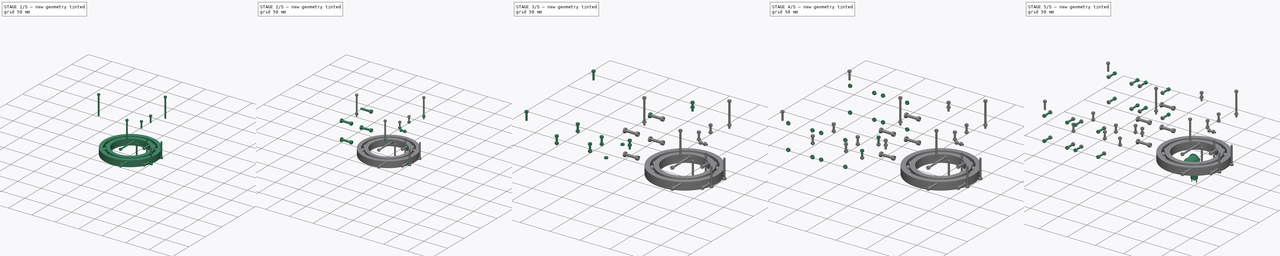
[diagram: build sequence overview — one tinted view per stage of 5, left to right]
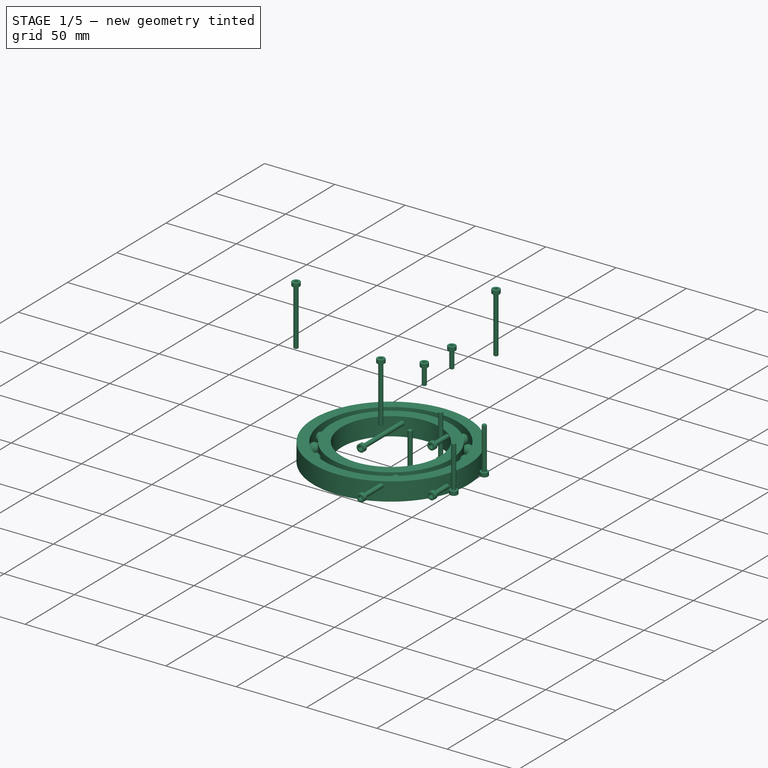
[diagram: stage 1 of 5 — iso view after this stage's code; geometry added in this stage tinted green]
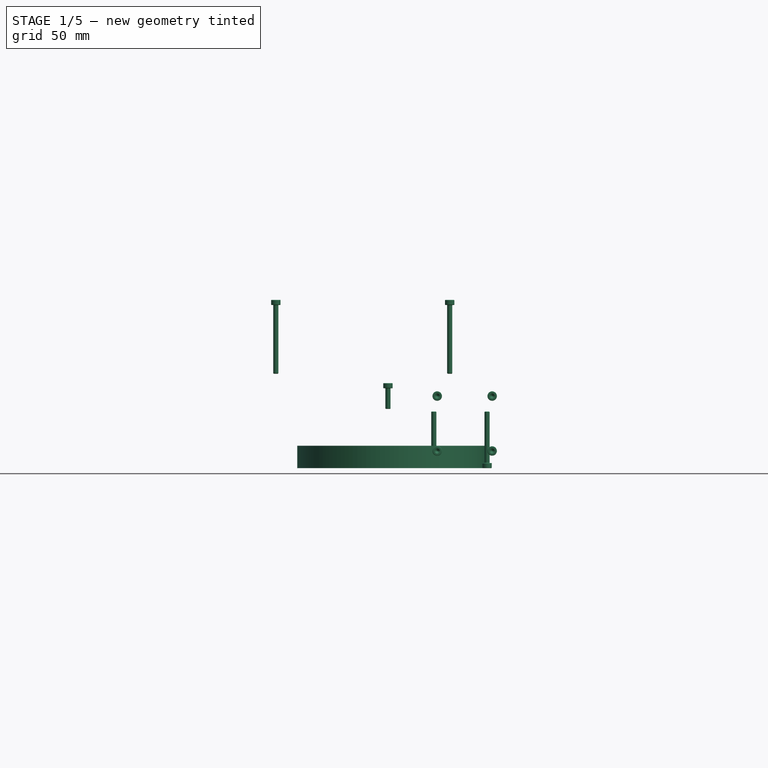
[diagram: stage 1 of 5 — front view after this stage's code; geometry added in this stage tinted green]
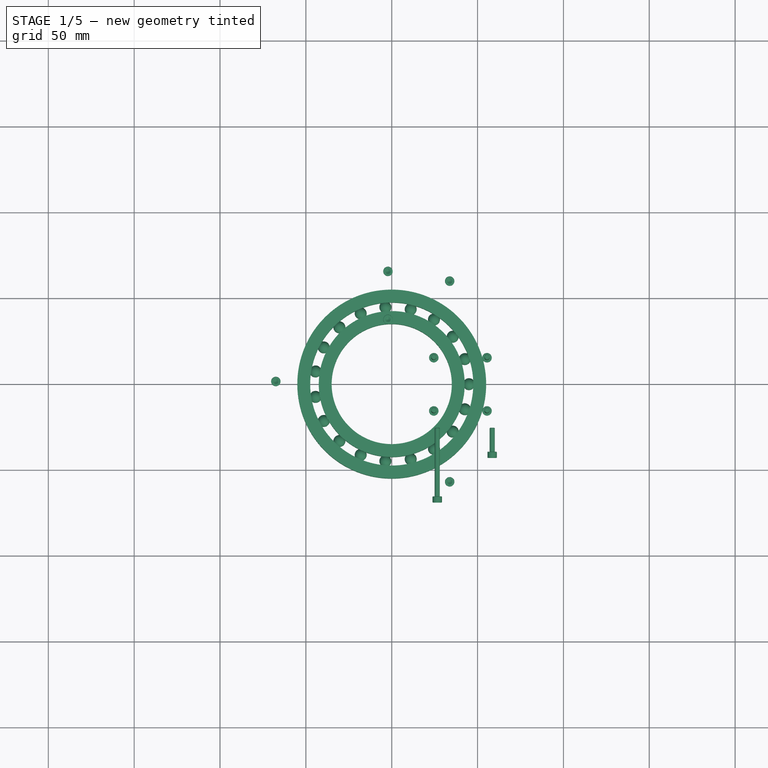
[diagram: stage 1 of 5 — top view after this stage's code; geometry added in this stage tinted green]
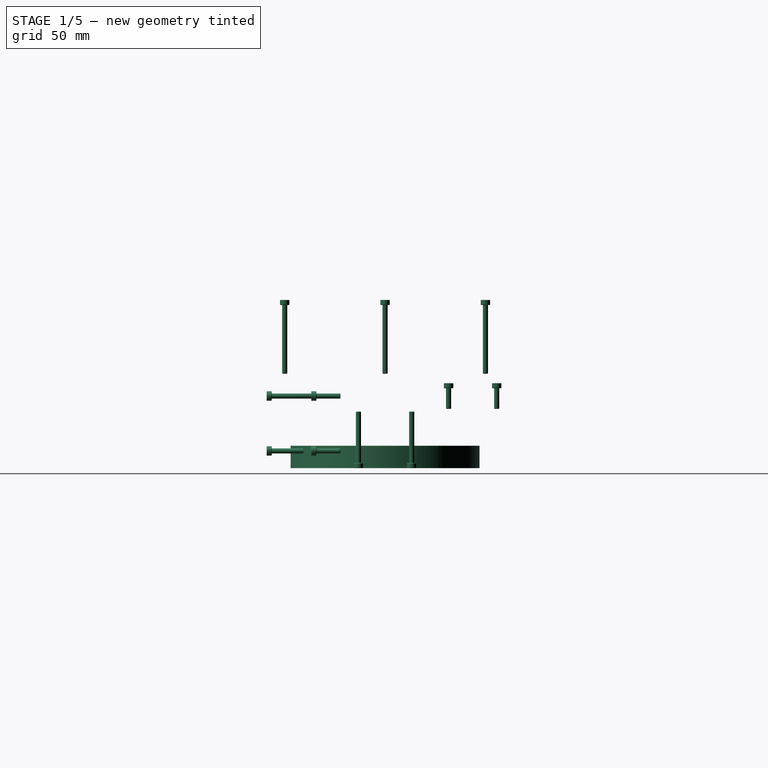
[diagram: stage 1 of 5 — right view after this stage's code; geometry added in this stage tinted green]
FCSTD DOCUMENT  (FreeCAD 0.19R24276 (Git))
Label: AssemblyBase
License: All rights reserved
LicenseURL: http://en.wikipedia.org/wiki/All_rights_reserved
objects: Part::FeaturePython×83, PartDesign::CoordinateSystem×20, App::Link×20, PartDesign::Line×16, Part::Feature×15, App::Part×11, App::DocumentObjectGroup×6, Part::Compound×3, Sketcher::SketchObject×2, PartDesign::Pad×2, Part::Sphere×1, App::FeaturePython×1
note: 144 computed .brp shape members not serialized (recipe doc carries the construction recipe); baked Part::Feature solids carry a one-line shape summary decoded from their .brp
EXTERNAL_REF file=BaseBot.FCStd obj=LCS_Bot
EXTERNAL_REF file=BaseBot.FCStd obj=Body002
EXTERNAL_REF file=BaseBot.FCStd obj=LCS_Top001
EXTERNAL_REF file=BaseTop.FCStd obj=LCS_Bot
EXTERNAL_REF file=BaseTop.FCStd obj=Body
EXTERNAL_REF file=BaseBearingFix.FCStd obj=LCS_Bot
EXTERNAL_REF file=BaseTop.FCStd obj=LCS_Top
EXTERNAL_REF file=BaseBearingFix.FCStd obj=Body
EXTERNAL_REF file=BaseBoxBody.FCStd obj=LCS_Bot
EXTERNAL_REF file=BaseBoxBody.FCStd obj=Body002
EXTERNAL_REF file=BaseBoxBody.FCStd obj=LCS_Top
EXTERNAL_REF file=BaseBoxCover.FCStd obj=LCS_Bot
EXTERNAL_REF file=BaseBoxCover.FCStd obj=Body
EXTERNAL_REF file=BaseBot.FCStd obj=LCS_Stepper
EXTERNAL_REF file=Art1GearMotor.FCStd obj=LCS_Art1GearMotor
EXTERNAL_REF file=Art1GearMotor.FCStd obj=Body
EXTERNAL_REF file=BaseBot.FCStd obj=LCS_OpticSensor
EXTERNAL_REF file=BaseBot.FCStd obj=LCS_Fan001
EXTERNAL_REF file=BaseBoxCover.FCStd obj=LCS_PushButton1
EXTERNAL_REF file=BaseBoxCover.FCStd obj=LCS_PushButton2
EXTERNAL_REF file=BaseBoxBody.FCStd obj=LCS_Fan1
EXTERNAL_REF file=BaseBoxBody.FCStd obj=LCS_Fan2
EXTERNAL_REF file=BaseBoxBody.FCStd obj=LCS_Fan3
EXTERNAL_REF file=BaseBoxBody.FCStd obj=LCS_Fan4
EXTERNAL_REF file=BaseBoxBody.FCStd obj=LCS_Arduino
EXTERNAL_REF file=BaseBoxBody.FCStd obj=LCS_DCJAck
EXTERNAL_REF file=BaseBoxBody.FCStd obj=HoleAxis_15
EXTERNAL_REF file=BaseBoxBody.FCStd obj=HoleAxis_18
EXTERNAL_REF file=BaseBoxBody.FCStd obj=HoleAxis_16
EXTERNAL_REF file=BaseBoxBody.FCStd obj=HoleAxis_17
EXTERNAL_REF file=BaseBoxBody.FCStd obj=HoleAxis_19
EXTERNAL_REF file=BaseBoxBody.FCStd obj=HoleAxis_20
EXTERNAL_REF file=BaseBoxBody.FCStd obj=HoleAxis_22
EXTERNAL_REF file=BaseBoxBody.FCStd obj=HoleAxis_21
EXTERNAL_REF file=BaseBoxBody.FCStd obj=HoleAxis_14
EXTERNAL_REF file=BaseBoxBody.FCStd obj=HoleAxis_13
EXTERNAL_REF file=BaseBoxBody.FCStd obj=HoleAxis_8
EXTERNAL_REF file=BaseBoxBody.FCStd obj=HoleAxis_7
EXTERNAL_REF file=BaseBoxBody.FCStd obj=HoleAxis_9
EXTERNAL_REF file=BaseBoxBody.FCStd obj=HoleAxis_10
EXTERNAL_REF file=BaseBoxBody.FCStd obj=HoleAxis_12
EXTERNAL_REF file=BaseBoxBody.FCStd obj=HoleAxis_11
EXTERNAL_REF file=BaseBoxBody.FCStd obj=HoleAxis_28
EXTERNAL_REF file=BaseBoxBody.FCStd obj=HoleAxis_27
EXTERNAL_REF file=BaseBoxBody.FCStd obj=HoleAxis_26
EXTERNAL_REF file=BaseBoxBody.FCStd obj=HoleAxis_25
EXTERNAL_REF file=BaseBoxBody.FCStd obj=HoleAxis_24
EXTERNAL_REF file=BaseBoxBody.FCStd obj=HoleAxis_23
EXTERNAL_REF file=BaseBoxBody.FCStd obj=HoleAxis_1
EXTERNAL_REF file=BaseBoxBody.FCStd obj=HoleAxis_6
EXTERNAL_REF file=BaseBoxCover.FCStd obj=HoleAxis_2
EXTERNAL_REF file=BaseBoxCover.FCStd obj=HoleAxis_3
EXTERNAL_REF file=BaseBoxCover.FCStd obj=HoleAxis_4
EXTERNAL_REF file=BaseBoxCover.FCStd obj=HoleAxis_1
EXTERNAL_REF file=BaseBoxBody.FCStd obj=HoleAxis_2
EXTERNAL_REF file=BaseBoxBody.FCStd obj=HoleAxis_3
EXTERNAL_REF file=BaseBoxBody.FCStd obj=HoleAxis_4
EXTERNAL_REF file=BaseBoxBody.FCStd obj=HoleAxis_5
EXTERNAL_REF file=BaseBot.FCStd obj=HoleAxis_2
EXTERNAL_REF file=BaseBot.FCStd obj=HoleAxis_3
EXTERNAL_REF file=BaseBot.FCStd obj=HoleAxis_4
EXTERNAL_REF file=BaseBot.FCStd obj=HoleAxis_1
EXTERNAL_REF file=BaseBot.FCStd obj=HoleAxis_13
EXTERNAL_REF file=BaseBot.FCStd obj=HoleAxis_12
EXTERNAL_REF file=BaseBot.FCStd obj=HoleAxis_11
EXTERNAL_REF file=BaseBot.FCStd obj=HoleAxis_9
EXTERNAL_REF file=BaseBot.FCStd obj=HoleAxis_10
EXTERNAL_REF file=Art1GearMotor.FCStd obj=HoleAxis_2
EXTERNAL_REF file=Art1GearMotor.FCStd obj=HoleAxis_1
EXTERNAL_REF file=BaseBearingFix.FCStd obj=HoleAxis_2
EXTERNAL_REF file=BaseBot.FCStd obj=HoleAxis_6
EXTERNAL_REF file=BaseBot.FCStd obj=HoleAxis_7
EXTERNAL_REF file=BaseBot.FCStd obj=HoleAxis_5
EXTERNAL_REF file=BaseBot.FCStd obj=HoleAxis_8
EXTERNAL_REF file=BaseBot.FCStd obj=HoleAxis_14
EXTERNAL_REF file=BaseBot.FCStd obj=HoleAxis_15
EXTERNAL_REF file=BaseBot.FCStd obj=HoleAxis_16
EXTERNAL_REF file=BaseBot.FCStd obj=HoleAxis_17
EXTERNAL_REF file=BaseBearingFix.FCStd obj=HoleAxis_3
EXTERNAL_REF file=BaseBearingFix.FCStd obj=HoleAxis_1

FEATURE [App::Part] ResetButton
  Group = -> [LCS_0003,Part__Feature028,Part__Feature027,Compound006]
  Origin = -> Origin004
FEATURE [PartDesign::CoordinateSystem] LCS_0004
  AttacherType = Attacher::AttachEngine3D
  MapMode = 2
  Support = -> [X_Axis005]
FEATURE [Part::Feature] Part__Feature029  label="16mmNut"
  shape: bbox 21.94 x 21.94 x 3 mm, 11 faces (baked)
FEATURE [PartDesign::CoordinateSystem] LCS_Washer  label="LCS_Nut"
  AttacherType = Attacher::AttachEngine3D
  MapMode = 11
  Placement = pos=(9e-16,0,1.5) rot=(0,0,1;1.5708rad)
  Support = -> [Part__Feature029]
FEATURE [App::Part] Washer  label="NutButton"
  Group = -> [LCS_0004,Part__Feature029,LCS_Washer]
  Origin = -> Origin005
FEATURE [Part::Feature] Part__Feature  label="Arduino-mega"
  shape: bbox 108.8 x 53.17 x 14.81 mm, 2108 faces, 108 solids (baked)
FEATURE [PartDesign::CoordinateSystem] LCS_0005
  AttacherType = Attacher::AttachEngine3D
  MapMode = 2
  Support = -> [X_Axis006]
FEATURE [PartDesign::CoordinateSystem] LCS_ArduinoMega
  AttacherType = Attacher::AttachEngine3D
  MapMode = 45
  Placement = pos=(3.0379,-0.047,0) rot=(0,0,1;1.53932rad)
  Support = -> [Part__Feature]
FEATURE [PartDesign::CoordinateSystem] LCS_0006
  AttacherType = Attacher::AttachEngine3D
  MapMode = 2
  Support = -> [X_Axis007]
FEATURE [Part::Feature] Part__Feature030  label="DJ Jack 2,1mm panel mount"
  Placement = pos=(0,-8,0) rot=(0,0,1;0rad)
  shape: bbox 12.7 x 18.2 x 12.7 mm, 64 faces (baked)
FEATURE [App::Part] JackDC
  Group = -> [LCS_0006,Part__Feature030]
  Origin = -> Origin007
FEATURE [PartDesign::CoordinateSystem] LCS_0007
  AttacherType = Attacher::AttachEngine3D
  MapMode = 2
  Support = -> [X_Axis008]
FEATURE [Part::Feature] Fusion155  label="OptoSwitch002"
  shape: bbox 35 x 11 x 11.5 mm, 54 faces (baked)
FEATURE [PartDesign::CoordinateSystem] LCS_OpticSensor
  AttacherType = Attacher::AttachEngine3D
  MapMode = 45
  Placement = pos=(7.5e-15,-1e-16,0) rot=(0,0,1;1.5708rad)
  Support = -> [Fusion155]
FEATURE [PartDesign::CoordinateSystem] LCS_0008
  AttacherType = Attacher::AttachEngine3D
  MapMode = 2
  Support = -> [X_Axis009]
FEATURE [Part::Feature] Part__Feature031  label="Nema-17-motor-40mm-final"
  shape: bbox 42.3 x 42.3 x 60.1 mm, 55 faces (baked)
FEATURE [PartDesign::CoordinateSystem] LCS_Stepper_Nema17x40
  AttacherType = Attacher::AttachEngine3D
  MapMode = 45
  Placement = pos=(7.5e-15,0,0) rot=(0,0,1;0rad)
  Support = -> [Part__Feature031]
FEATURE [PartDesign::CoordinateSystem] LCS_0009
  AttacherType = Attacher::AttachEngine3D
  MapMode = 2
  Support = -> [X_Axis010]
FEATURE [Part::Sphere] Sphere
  Angle1 = -90
  Angle2 = 90
  Angle3 = 360
  AttacherType = Attacher::AttachEngine3D
  Placement = pos=(45,0,6.5) rot=(0,0,1;0rad)
  Radius = 3.5
FEATURE [Sketcher::SketchObject] Sketch011
  FullyConstrained = false
  MapMode = 5
  sketch-geometry (2):
    g0: Circle CenterX=0 CenterY=0 CenterZ=0 NormalX=0 NormalY=0 NormalZ=1 AngleXU=0 Radius=55
    g1: Circle CenterX=0 CenterY=0 CenterZ=0 NormalX=0 NormalY=0 NormalZ=1 AngleXU=0 Radius=47.5
  constraints (4):
    c: Coincident(g0,g-1)
    c: Coincident(g1,g-1)
    c: Radius(g0) = 55
    c: Radius(g1) = 47.5
FEATURE [PartDesign::Pad] Pad001
  AllowMultiFace = false
  Direction = (1,1,1)
  Length = 13
  Length2 = 100
  Profile = -> Sketch011
  Refine = true
  Type = 0
FEATURE [Sketcher::SketchObject] Sketch012
  FullyConstrained = false
  MapMode = 5
  sketch-geometry (2):
    g0: Circle CenterX=0 CenterY=0 CenterZ=0 NormalX=0 NormalY=0 NormalZ=1 AngleXU=0 Radius=35
    g1: Circle CenterX=0 CenterY=0 CenterZ=0 NormalX=0 NormalY=0 NormalZ=1 AngleXU=0 Radius=42.5
  constraints (4):
    c: Coincident(g0,g-1)
    c: Coincident(g1,g-1)
    c: Radius(g0) = 35
    c: Radius(g1) = 42.5
FEATURE [PartDesign::Pad] Pad002
  AllowMultiFace = false
  Direction = (1,1,1)
  Length = 13
  Length2 = 100
  Profile = -> Sketch012
  Refine = true
  Type = 0
FEATURE [Part::FeaturePython] Array  # Draft array (typed FeaturePython)
  Angle = 360
  ArrayType = 1
  Axis = (0,0,1)
  Base = -> Sphere
  Center = (0,0,0)
  Fuse = false
  IntervalAxis = (0,0,0)
  IntervalX = (1,0,0)
  IntervalY = (0,1,0)
  IntervalZ = (0,0,0)
  NumberPolar = 19
  NumberX = 2
  NumberY = 2
  NumberZ = 1
FEATURE [Part::Compound] Compound  label="Bearing 16014zz"
  Links = -> [Pad002,Pad001,Array]
FEATURE [Part::FeaturePython] Screw032  label="M3x40-Screw"  # Fasteners workbench fastener (typed FeaturePython)
  AssemblyType = Asm4EE
  AttachedBy = Origin
  AttachedTo = BaseBearingFix_BaseBearingFix#HoleAxis_2
  Placement = pos=(33.75,-58.4567,95) rot=(0,0,1;2.0944rad)
  diameter = 4
  invert = false
  length = 10
  lengthCustom = 40
  matchOuter = false
  offset = 0
  thread = false
  type = 33
  expr: Placement = BaseBearingFix_BaseBearingFix.Placement * BaseBearingFix#HoleAxis_2.Placement * AttachmentOffset
FEATURE [Part::FeaturePython] Screw033  label="M3x12-Screw063"  # Fasteners workbench fastener (typed FeaturePython)
  AssemblyType = Asm4EE
  AttachedBy = Origin
  AttachedTo = OpticSensor001#HoleAxis_14
  Placement = pos=(-2.2,37,46.5) rot=(0,0,1;1.5708rad)
  diameter = 4
  invert = false
  length = 4
  lengthCustom = 12
  matchOuter = false
  offset = 0
  thread = false
  type = 33
  expr: Placement = OpticSensor001.Placement * HoleAxis_14.Placement * AttachmentOffset
FEATURE [Part::FeaturePython] Screw034  label="M3x12-Screw064"  # Fasteners workbench fastener (typed FeaturePython)
  AssemblyType = Asm4EE
  AttachedBy = Origin
  AttachedTo = OpticSensor001#HoleAxis_15
  Placement = pos=(-2.2,65,46.5) rot=(0,0,1;1.5708rad)
  diameter = 4
  invert = false
  length = 4
  lengthCustom = 12
  matchOuter = false
  offset = 0
  thread = false
  type = 33
  expr: Placement = OpticSensor001.Placement * HoleAxis_15.Placement * AttachmentOffset
FEATURE [Part::FeaturePython] Screw035  label="M3x14-Screw"  # Fasteners workbench fastener (typed FeaturePython)
  AssemblyType = Asm4EE
  AttachedBy = Origin
  AttachedTo = BaseBot_BaseBot#HoleAxis_6
  AttachmentOffset = pos=(0,0,0) rot=(1,0,0;3.14159rad)
  Placement = pos=(58.5,-40,42) rot=(1,0,0;1.5708rad)
  diameter = 4
  invert = false
  length = 5
  lengthCustom = 14
  matchOuter = false
  offset = 0
  thread = false
  type = 33
  expr: Placement = BaseBot_BaseBot.Placement * BaseBot#HoleAxis_6.Placement * AttachmentOffset
FEATURE [Part::FeaturePython] Screw036  label="M3x14-Screw001"  # Fasteners workbench fastener (typed FeaturePython)
  AssemblyType = Asm4EE
  AttachedBy = Origin
  AttachedTo = BaseBot_BaseBot#HoleAxis_7
  AttachmentOffset = pos=(0,0,0) rot=(1,0,0;3.14159rad)
  Placement = pos=(58.5,-40,10) rot=(1,0,0;1.5708rad)
  diameter = 4
  invert = false
  length = 5
  lengthCustom = 14
  matchOuter = false
  offset = 0
  thread = false
  type = 33
  expr: Placement = BaseBot_BaseBot.Placement * BaseBot#HoleAxis_7.Placement * AttachmentOffset
FEATURE [Part::FeaturePython] Screw037  label="M3x40-Screw012"  # Fasteners workbench fastener (typed FeaturePython)
  AssemblyType = Asm4EE
  AttachedBy = Origin
  AttachedTo = BaseBot_BaseBot#HoleAxis_5
  AttachmentOffset = pos=(0,0,0) rot=(1,0,0;3.14159rad)
  Placement = pos=(26.5,-66,42) rot=(1,0,0;1.5708rad)
  diameter = 4
  invert = false
  length = 10
  lengthCustom = 40
  matchOuter = false
  offset = 0
  thread = false
  type = 33
  expr: Placement = BaseBot_BaseBot.Placement * BaseBot#HoleAxis_5.Placement * AttachmentOffset
FEATURE [Part::FeaturePython] Screw038  label="M3x40-Screw014"  # Fasteners workbench fastener (typed FeaturePython)
  AssemblyType = Asm4EE
  AttachedBy = Origin
  AttachedTo = BaseBot_BaseBot#HoleAxis_8
  AttachmentOffset = pos=(0,0,0) rot=(1,0,0;3.14159rad)
  Placement = pos=(26.5,-66,10) rot=(1,0,0;1.5708rad)
  diameter = 4
  invert = false
  length = 10
  lengthCustom = 40
  matchOuter = false
  offset = 0
  thread = false
  type = 33
  expr: Placement = BaseBot_BaseBot.Placement * BaseBot#HoleAxis_8.Placement * AttachmentOffset
FEATURE [Part::FeaturePython] Screw039  label="M3x30-Screw009"  # Fasteners workbench fastener (typed FeaturePython)
  AssemblyType = Asm4EE
  AttachedBy = Origin
  AttachedTo = BaseBot_BaseBot#HoleAxis_14
  AttachmentOffset = pos=(0,0,-0.5) rot=(0,0,1;0rad)
  Placement = pos=(24.5,-15.5,3) rot=(1,0,0;3.14159rad)
  diameter = 4
  invert = false
  length = 9
  lengthCustom = 30
  matchOuter = false
  offset = 0
  thread = false
  type = 33
  expr: Placement = BaseBot_BaseBot.Placement * BaseBot#HoleAxis_14.Placement * AttachmentOffset
FEATURE [Part::FeaturePython] Screw040  label="M3x30-Screw010"  # Fasteners workbench fastener (typed FeaturePython)
  AssemblyType = Asm4EE
  AttachedBy = Origin
  AttachedTo = BaseBot_BaseBot#HoleAxis_15
  AttachmentOffset = pos=(0,0,-0.5) rot=(0,0,1;0rad)
  Placement = pos=(24.5,15.5,3) rot=(1,0,0;3.14159rad)
  diameter = 4
  invert = false
  length = 9
  lengthCustom = 30
  matchOuter = false
  offset = 0
  thread = false
  type = 33
  expr: Placement = BaseBot_BaseBot.Placement * BaseBot#HoleAxis_15.Placement * AttachmentOffset
FEATURE [Part::FeaturePython] Screw041  label="M3x30-Screw"  # Fasteners workbench fastener (typed FeaturePython)
  AssemblyType = Asm4EE
  AttachedBy = Origin
  AttachedTo = BaseBot_BaseBot#HoleAxis_16
  AttachmentOffset = pos=(0,0,-0.5) rot=(0,0,1;0rad)
  Placement = pos=(55.5,-15.5,3) rot=(1,0,0;3.14159rad)
  diameter = 4
  invert = false
  length = 9
  lengthCustom = 30
  matchOuter = false
  offset = 0
  thread = false
  type = 33
  expr: Placement = BaseBot_BaseBot.Placement * BaseBot#HoleAxis_16.Placement * AttachmentOffset
FEATURE [Part::FeaturePython] Screw042  label="M3x30-Screw011"  # Fasteners workbench fastener (typed FeaturePython)
  AssemblyType = Asm4EE
  AttachedBy = Origin
  AttachedTo = BaseBot_BaseBot#HoleAxis_17
  AttachmentOffset = pos=(0,0,-0.5) rot=(0,0,1;0rad)
  Placement = pos=(55.5,15.5,3) rot=(1,0,0;3.14159rad)
  diameter = 4
  invert = false
  length = 9
  lengthCustom = 30
  matchOuter = false
  offset = 0
  thread = false
  type = 33
  expr: Placement = BaseBot_BaseBot.Placement * BaseBot#HoleAxis_17.Placement * AttachmentOffset
FEATURE [App::Link] Bearing_16014zz001
  AssemblyType = Asm4EE
  AttachedBy = #LCS_0009
  AttachedTo = BaseTop_BaseTop#LCS_Top
  AttachmentOffset = pos=(0,0,1) rot=(0,0,1;0rad)
  LinkPlacement = pos=(5e-16,1.72e-14,92) rot=(-0.965926,0.258819,0;3.14159rad)
  LinkedObject = -> Bearing_16014zz
  Placement = pos=(5e-16,1.72e-14,92) rot=(-0.965926,0.258819,0;3.14159rad)
  expr: Placement = BaseTop_BaseTop.Placement * BaseTop#LCS_Top.Placement * AttachmentOffset * LCS_0009.Placement ^ -1
FEATURE [Part::FeaturePython] Screw043  label="M3x40-Screw015"  # Fasteners workbench fastener (typed FeaturePython)
  AssemblyType = Asm4EE
  AttachedBy = Origin
  AttachedTo = BaseBearingFix_BaseBearingFix#HoleAxis_3
  Placement = pos=(-67.5,4.3e-14,95) rot=(0,0,1;0rad)
  diameter = 4
  invert = false
  length = 10
  lengthCustom = 40
  matchOuter = false
  offset = 0
  thread = false
  type = 33
  expr: Placement = BaseBearingFix_BaseBearingFix.Placement * BaseBearingFix#HoleAxis_3.Placement * AttachmentOffset
FEATURE [Part::FeaturePython] Screw044  label="M3x40-Screw013"  # Fasteners workbench fastener (typed FeaturePython)
  AssemblyType = Asm4EE
  AttachedBy = Origin
  AttachedTo = BaseBearingFix_BaseBearingFix#HoleAxis_1
  Placement = pos=(33.75,58.4567,95) rot=(0,0,1;4.18879rad)
  diameter = 4
  invert = false
  length = 10
  lengthCustom = 40
  matchOuter = false
  offset = 0
  thread = false
  type = 33
  expr: Placement = BaseBearingFix_BaseBearingFix.Placement * BaseBearingFix#HoleAxis_1.Placement * AttachmentOffset
FEATURE [App::DocumentObjectGroup] Group003  label="Fasteners"
  Group = -> [Screw,Screw001,Screw002,Screw003,Screw004,Screw005,Screw006,Screw007,Screw008,Screw009,Screw010,Screw011,Screw012,Screw013,Screw014,Screw015,Nut001,Nut002,Nut003,Nut,Nut004,Nut005,Nut006,Nut007,Nut008,Nut009,Nut010,Nut011,Nut012,Nut013,Nut014,Nut015,Screw017,Screw018,Screw019,Screw020,Screw021,Screw016,Nut017,Nut018,Nut019,Nut020,Nut021,Nut016,Nut023,Nut024,Screw023,Screw024,Screw025,Screw026,+32 more]
FEATURE [PartDesign::CoordinateSystem] LCS_Model_1
  AttacherType = Attacher::AttachEngine3D
FEATURE [PartDesign::CoordinateSystem] LCS_Art1003  label="LCS_Art1"
  AttacherType = Attacher::AttachEngine3D
  AttachmentOffset = pos=(0,0,79) rot=(0,0,1;0rad)
  MapMode = 11
  Placement = pos=(0,0,79) rot=(0,0,1;1.5708rad)
  Support = -> [Compound]
FEATURE [App::Part] Model
  Configuration = 0
  Group = -> [LCS_Origin,Constraints,Variables,BaseBot_BaseBot,BaseTop_BaseTop,BaseBearingFix_BaseBearingFix,BaseBoxBody_BaseBoxBody,BaseBoxCover_BaseBoxCover,Stepper_Nema17x40001,Art1GearMotor_Art1GearMotor,OpticSensor001,Fan_40x40001,OnOffButton001,ResetButton001,Fan_50x50001,Fan_50x50002,Fan_50x50003,Fan_50x50004,ArduinoMega001,JackDC001,NutButton,NutButton001,Bearing_16014zz001,Screw007,Screw032,Nut012,+82 more]
  Origin = -> Origin
  Type = Assembly4 Model

RESOLVED EXTERNAL PARTS (link-assembly join: the EXTERNAL_REF files above that resolve inside this repo's crawl, each included once):
---- part Art1GearMotor.FCStd = doc fcstd_7de75d92b15b ----
FCSTD DOCUMENT  (FreeCAD 0.19R24276 (Git))
Label: Art1GearMotor
License: All rights reserved
LicenseURL: http://en.wikipedia.org/wiki/All_rights_reserved
objects: Sketcher::SketchObject×4, PartDesign::Pocket×3, PartDesign::Line×2, Part::FeaturePython×1, PartDesign::FeatureBase×1, PartDesign::Pad×1, Spreadsheet::Sheet×1, PartDesign::Plane×1, PartDesign::CoordinateSystem×1, PartDesign::Body×1
note: 19 computed .brp shape members not serialized (recipe doc carries the construction recipe); baked Part::Feature solids carry a one-line shape summary decoded from their .brp

FEATURE [Part::FeaturePython] involutegear  # WARN: FeaturePython — macro-defined, semantics opaque (R4)
  backlash = 0
  beta = -32
  clearance = 0.25
  double_helix = false
  dw = 20
  head = 0
  height = 12
  module = 2
  numpoints = 6
  pressure_angle = 20
  properties_from_tool = false
  reversed_backlash = false
  shift = 0
  simple = false
  teeth = 10
  transverse_pitch = 6.28319
  undercut = false
  version = 0.0.3
FEATURE [PartDesign::FeatureBase] BaseFeature
  BaseFeature = -> involutegear
FEATURE [Sketcher::SketchObject] Sketch
  FullyConstrained = true
  MapMode = 5
  Placement = pos=(0,0,0) rot=(1,0,0;3.14159rad)
  Support = -> [BaseFeature]
  sketch-geometry (1):
    g0: Circle CenterX=0 CenterY=0 CenterZ=0 NormalX=0 NormalY=0 NormalZ=1 AngleXU=0 Radius=12
  constraints (2):
    c: Coincident(g0,g-1)
    c: Radius(g0) = 12
FEATURE [PartDesign::Pad] Pad
  BaseFeature = -> BaseFeature
  Direction = (1,1,1)
  Length = 10
  Length2 = 100
  Profile = -> Sketch
  Refine = true
  Type = 0
FEATURE [Sketcher::SketchObject] Sketch001
  FullyConstrained = true
  MapMode = 5
  Placement = pos=(-1e-16,0,-10) rot=(1,0,0;3.14159rad)
  Support = -> [Pad]
  sketch-geometry (1):
    g0: Circle CenterX=0 CenterY=0 CenterZ=0 NormalX=0 NormalY=0 NormalZ=1 AngleXU=0 Radius=2.5
  constraints (2):
    c: Coincident(g0,g-1)
    c: Radius(g0) = 2.5
FEATURE [PartDesign::Pocket] Pocket
  BaseFeature = -> Pad
  Length = 26
  Length2 = 100
  Profile = -> Sketch001
  Refine = true
  Type = 1
FEATURE [Sketcher::SketchObject] Sketch002
  FullyConstrained = true
  MapMode = 5
  Placement = pos=(0,0,0) rot=(0.57735,0.57735,0.57735;2.0944rad)
  Support = -> [YZ_Plane]
  expr: Constraints[2] = Spreadsheet.M3BoltBodyRadius
  sketch-geometry (1):
    g0: Circle CenterX=0 CenterY=-5 CenterZ=0 NormalX=0 NormalY=0 NormalZ=1 AngleXU=0 Radius=1.7
  constraints (3):
    c: PointOnObject(g0,g-2)
    c: DistanceY(g0,g-1) = 5
    c: Radius(g0) = 1.7
FEATURE [Spreadsheet::Sheet] Spreadsheet
  cells = A2=M3BoltBodyRadius; B2(M3BoltBodyRadius)=1.7; A3=M3BoltHeadRadius; B3(M3BoltHeadRadius)=2.95; A4=M3NutCircumradius; B4(M3NutCircumradius)=3.35; A5=M3NutThickness; B5(M3NutThickness)=3; A6=Bearing655ZZBodyRadius; B6(Bearing655ZZBodyRadius)=8.199999999999999
FEATURE [PartDesign::Pocket] Pocket001
  BaseFeature = -> Pocket
  Length = 5
  Length2 = 100
  Profile = -> Sketch002
  Refine = true
  Reversed = true
  Type = 1
FEATURE [PartDesign::Plane] DatumPlane
  AttachmentOffset = pos=(0,0,6.5) rot=(0,0,1;0rad)
  Length = 60
  MapMode = 5
  Placement = pos=(6.5,-1.4e-15,1.4e-15) rot=(0.57735,0.57735,0.57735;2.0944rad)
  ResizeMode = 0
  Support = -> [YZ_Plane]
  Width = 60
FEATURE [Sketcher::SketchObject] Sketch003
  ExternalGeometry = -> [Sketch002]
  FullyConstrained = true
  MapMode = 5
  Placement = pos=(6.5,-1.4e-15,1.4e-15) rot=(0.57735,0.57735,0.57735;2.0944rad)
  Support = -> [DatumPlane]
  expr: Constraints[19] = Spreadsheet.M3NutCircumradius
  sketch-geometry (10):
    g0: LineSegment StartX=0 StartY=-8.35 StartZ=0 EndX=2.90119 EndY=-6.675 EndZ=0
    g1: LineSegment StartX=2.90119 StartY=-6.675 StartZ=0 EndX=2.90119 EndY=-3.325 EndZ=0
    g2: LineSegment StartX=2.90119 StartY=-3.325 StartZ=0 EndX=-8.84e-14 EndY=-1.65 EndZ=0
    g3: LineSegment StartX=-8.84e-14 StartY=-1.65 StartZ=0 EndX=-2.90119 EndY=-3.325 EndZ=0
    g4: LineSegment StartX=-2.90119 StartY=-3.325 StartZ=0 EndX=-2.90119 EndY=-6.675 EndZ=0
    g5: LineSegment StartX=-2.90119 StartY=-6.675 StartZ=0 EndX=0 EndY=-8.35 EndZ=0
    g6: Circle CenterX=-1.1e-15 CenterY=-5 CenterZ=0 NormalX=0 NormalY=0 NormalZ=1 AngleXU=0 Radius=3.35
    g7: LineSegment StartX=-2.90119 StartY=-3.325 StartZ=0 EndX=-2.90119 EndY=-13.325 EndZ=0
    g8: LineSegment StartX=-2.90119 StartY=-13.325 StartZ=0 EndX=2.90119 EndY=-13.325 EndZ=0
    g9: LineSegment StartX=2.90119 StartY=-13.325 StartZ=0 EndX=2.90119 EndY=-3.325 EndZ=0
  constraints (24):
    c: Coincident(g0,g1)
    c: Coincident(g1,g2)
    c: Coincident(g2,g3)
    c: Coincident(g3,g4)
    c: Coincident(g4,g5)
    c: Coincident(g5,g0)
    c: Equal(g0, g1-g5) x5
    c: PointOnObject(g0,g6)
    c: PointOnObject(g1,g6)
    c: PointOnObject(g2,g6)
    c: PointOnObject(g3,g6)
    c: PointOnObject(g4,g6)
    c: PointOnObject(g5,g6)
    c: Coincident(g6,g-3)
    c: PointOnObject(g5,g-2)
    c: Radius(g6) = 3.35
    c: Coincident(g3,g7)
    c: Vertical(g7)
    c: Coincident(g7,g8)
    c: Horizontal(g8)
    c: Coincident(g8,g9)
    c: Coincident(g9,g2)
    c: Vertical(g9)
    c: DistanceY(g9,g9) = 10
FEATURE [PartDesign::Pocket] Pocket002
  BaseFeature = -> Pocket001
  Length = 3
  Length2 = 100
  Midplane = true
  Profile = -> Sketch003
  Refine = true
  Type = 0
  expr: Length = Spreadsheet.M3NutThickness
FEATURE [PartDesign::CoordinateSystem] LCS_Art1GearMotor
  AttacherType = Attacher::AttachEngine3D
  MapMode = 11
  Placement = pos=(0,0,-10) rot=(0.707107,-0.707107,0;3.14159rad)
  Support = -> [Pocket002]
FEATURE [PartDesign::Line] HoleAxis_1
  AttacherType = Attacher::AttachEngineLine
  AttachmentOffset = pos=(0,0,-7) rot=(0,0,1;0rad)
  Length = 4.79083
  MapMode = 19
  Placement = pos=(15,-4.4e-15,-5) rot=(-0.57735,-0.57735,0.57735;2.0944rad)
  ResizeMode = 1
  Support = -> [Pocket002]
FEATURE [PartDesign::Line] HoleAxis_2
  AttacherType = Attacher::AttachEngineLine
  Length = 4.79083
  MapMode = 19
  Placement = pos=(5,-2.2e-15,-5) rot=(-0.57735,-0.57735,0.57735;2.0944rad)
  ResizeMode = 1
  Support = -> [Pocket002]
FEATURE [PartDesign::Body] Body  label="Art1GearMotor"
  BaseFeature = -> involutegear
  Group = -> [BaseFeature,Sketch,Pad,Sketch001,Pocket,Sketch002,Pocket001,DatumPlane,Sketch003,Pocket002,LCS_Art1GearMotor,HoleAxis_1,HoleAxis_2]
  Origin = -> Origin
  Tip = -> Pocket002
---- part BaseBearingFix.FCStd = doc fcstd_a8ddcd5f8aee ----
FCSTD DOCUMENT  (FreeCAD 0.19R24276 (Git))
Label: BaseBearingFix
License: All rights reserved
LicenseURL: http://en.wikipedia.org/wiki/All_rights_reserved
objects: Sketcher::SketchObject×3, PartDesign::Line×3, PartDesign::Pocket×2, PartDesign::Pad×1, Spreadsheet::Sheet×1, PartDesign::PolarPattern×1, PartDesign::CoordinateSystem×1, PartDesign::Body×1
note: 15 computed .brp shape members not serialized (recipe doc carries the construction recipe); baked Part::Feature solids carry a one-line shape summary decoded from their .brp

FEATURE [Sketcher::SketchObject] Sketch
  FullyConstrained = true
  MapMode = 5
  Support = -> [XY_Plane]
  sketch-geometry (2):
    g0: Circle CenterX=0 CenterY=0 CenterZ=0 NormalX=0 NormalY=0 NormalZ=1 AngleXU=0 Radius=75
    g1: Circle CenterX=0 CenterY=0 CenterZ=0 NormalX=0 NormalY=0 NormalZ=1 AngleXU=0 Radius=49
  constraints (4):
    c: Coincident(g0,g-1)
    c: Coincident(g1,g0)
    c: Radius(g1) = 49
    c: Radius(g0) = 75
FEATURE [PartDesign::Pad] Pad  label="BasePad"
  Direction = (1,1,1)
  Length = 5
  Length2 = 100
  Profile = -> Sketch
  Refine = true
  Type = 0
FEATURE [Sketcher::SketchObject] Sketch001
  FullyConstrained = true
  MapMode = 5
  Placement = pos=(0,0,5) rot=(0,0,1;0rad)
  Support = -> [Pad]
  expr: Constraints[1] = Spreadsheet.M3BoltBodyRadius
  sketch-geometry (1):
    g0: Circle CenterX=-67.5 CenterY=0 CenterZ=0 NormalX=0 NormalY=0 NormalZ=1 AngleXU=0 Radius=1.7
  constraints (3):
    c: PointOnObject(g0,g-1)
    c: Radius(g0) = 1.7
    c: DistanceX(g0,g-1) = 67.5
FEATURE [Spreadsheet::Sheet] Spreadsheet
  cells = A2=M3BoltBodyRadius; B2(M3BoltBodyRadius)=1.7; A3=M3BoltHeadRadius; B3(M3BoltHeadRadius)=2.95
FEATURE [PartDesign::Pocket] Pocket  label="M3BoltHole"
  BaseFeature = -> Pad
  Length = 5
  Length2 = 100
  Profile = -> Sketch001
  Refine = true
  Type = 1
FEATURE [Sketcher::SketchObject] Sketch002
  ExternalGeometry = -> [Pocket]
  FullyConstrained = true
  MapMode = 5
  Placement = pos=(0,0,5) rot=(0,0,1;0rad)
  Support = -> [Pocket]
  expr: Constraints[1] = Spreadsheet.M3BoltHeadRadius
  sketch-geometry (1):
    g0: Circle CenterX=-67.5 CenterY=0 CenterZ=0 NormalX=0 NormalY=0 NormalZ=1 AngleXU=0 Radius=2.95
  constraints (2):
    c: Coincident(g0,g-3)
    c: Radius(g0) = 2.95
FEATURE [PartDesign::Pocket] Pocket001  label="M3BoltHeadHousing"
  BaseFeature = -> Pocket
  Length = 3
  Length2 = 100
  Profile = -> Sketch002
  Refine = true
  Type = 0
FEATURE [PartDesign::PolarPattern] PolarPattern  label="M3BoltPolarPattern"
  Angle = 360
  Axis = -> Sketch002 [N_Axis]
  BaseFeature = -> Pocket001
  Occurrences = 3
  Originals = -> [Pocket001,Pocket]
  Refine = true
FEATURE [PartDesign::Line] HoleAxis_1
  AttacherType = Attacher::AttachEngineLine
  Length = 4.79083
  MapMode = 19
  Placement = pos=(-67.5,0,2) rot=(0,0,1;0rad)
  ResizeMode = 1
  Support = -> [PolarPattern]
FEATURE [PartDesign::Line] HoleAxis_2
  AttacherType = Attacher::AttachEngineLine
  Length = 4.79858
  MapMode = 19
  Placement = pos=(33.75,58.4567,2) rot=(0,0,1;4.18879rad)
  ResizeMode = 1
  Support = -> [PolarPattern]
FEATURE [PartDesign::Line] HoleAxis_3
  AttacherType = Attacher::AttachEngineLine
  Length = 4.79858
  MapMode = 19
  Placement = pos=(33.75,-58.4567,2) rot=(0,0,1;2.0944rad)
  ResizeMode = 1
  Support = -> [PolarPattern]
FEATURE [PartDesign::CoordinateSystem] LCS_Bot
  AttacherType = Attacher::AttachEngine3D
  Support = -> [PolarPattern]
FEATURE [PartDesign::Body] Body  label="BaseBearingFix"
  Group = -> [Sketch,Pad,Sketch001,Pocket,Sketch002,Pocket001,PolarPattern,HoleAxis_1,HoleAxis_2,HoleAxis_3,LCS_Bot]
  Origin = -> Origin
  Tip = -> PolarPattern
---- part BaseBot.FCStd = doc fcstd_c637feec821a ----
FCSTD DOCUMENT  (FreeCAD 0.19R24276 (Git))
Label: BaseBot
License: All rights reserved
LicenseURL: http://en.wikipedia.org/wiki/All_rights_reserved
objects: Sketcher::SketchObject×21, PartDesign::Line×17, PartDesign::Pocket×16, PartDesign::CoordinateSystem×5, PartDesign::Plane×4, PartDesign::Pad×3, PartDesign::Body×3, PartDesign::Revolution×2, PartDesign::PolarPattern×2, Spreadsheet::Sheet×1, PartDesign::LinearPattern×1, Part::FeaturePython×1, Part::Cylinder×1, Part::MultiCommon×1, Part::MultiFuse×1, PartDesign::FeatureBase×1
note: 99 computed .brp shape members not serialized (recipe doc carries the construction recipe); baked Part::Feature solids carry a one-line shape summary decoded from their .brp

FEATURE [Sketcher::SketchObject] Sketch
  FullyConstrained = true
  MapMode = 5
  Placement = pos=(0,0,0) rot=(1,0,0;1.5708rad)
  Support = -> [XZ_Plane]
  sketch-geometry (8):
    g0: LineSegment StartX=100 StartY=5 StartZ=0 EndX=100 EndY=0 EndZ=0
    g1: LineSegment StartX=100 StartY=0 StartZ=0 EndX=0 EndY=0 EndZ=0
    g2: LineSegment StartX=0 StartY=0 StartZ=0 EndX=0 EndY=5 EndZ=0
    g3: LineSegment StartX=0 StartY=5 StartZ=0 EndX=70 EndY=5 EndZ=0
    g4: LineSegment StartX=70 StartY=5 StartZ=0 EndX=70 EndY=65.5 EndZ=0
    g5: LineSegment StartX=70 StartY=65.5 StartZ=0 EndX=75 EndY=65.5 EndZ=0
    g6: LineSegment StartX=75 StartY=65.5 StartZ=0 EndX=75 EndY=30 EndZ=0
    g7: ArcOfCircle CenterX=100 CenterY=30 CenterZ=0 NormalX=0 NormalY=0 NormalZ=1 AngleXU=0 Radius=25 StartAngle=3.14159 EndAngle=4.71239
  constraints (23):
    c: PointOnObject(g0,g-1)
    c: Vertical(g0)
    c: Coincident(g0,g1)
    c: Coincident(g1,g-1)
    c: Coincident(g1,g2)
    c: PointOnObject(g2,g-2)
    c: Coincident(g2,g3)
    c: Horizontal(g3)
    c: Coincident(g3,g4)
    c: Vertical(g4)
    c: Coincident(g4,g5)
    c: Horizontal(g5)
    c: Coincident(g5,g6)
    c: Vertical(g6)
    c: Coincident(g7,g0)
    c: Perpendicular(g7,g0)
    c: Tangent(g7,g6) = -1.5708
    c: DistanceY(g0,g0) = 5
    c: Equal(g2,g0)
    c: DistanceX(g1,g1) = 100
    c: DistanceY(g1,g4) = 65.5
    c: DistanceX(g1,g5) = 75
    c: DistanceX(g2,g4) = 70
FEATURE [PartDesign::Revolution] Revolution
  Angle = 360
  Axis = (0,-2e-16,1)
  Base = (0,0,0)
  Placement = pos=(0,0,0) rot=(1,0,0;1.5708rad)
  Profile = -> Sketch
  ReferenceAxis = -> Sketch [V_Axis]
  Refine = true
  Reversed = true
FEATURE [Sketcher::SketchObject] Sketch001
  ExternalGeometry = -> [Revolution]
  FullyConstrained = true
  MapMode = 5
  Placement = pos=(0,0,0) rot=(1,0,0;3.14159rad)
  Support = -> [Revolution]
  sketch-geometry (6):
    g0: LineSegment StartX=-24 StartY=71.0563 StartZ=0 EndX=-52.9437 EndY=100 EndZ=0
    g1: LineSegment StartX=-52.9437 StartY=100 StartZ=0 EndX=-112.944 EndY=100 EndZ=0
    g2: LineSegment StartX=-112.944 StartY=100 StartZ=0 EndX=-112.944 EndY=-100 EndZ=0
    g3: LineSegment StartX=-112.944 StartY=-100 StartZ=0 EndX=-52.9437 EndY=-100 EndZ=0
    g4: LineSegment StartX=-52.9437 StartY=-100 StartZ=0 EndX=-24 EndY=-71.0563 EndZ=0
    g5: ArcOfCircle CenterX=0 CenterY=0 CenterZ=0 NormalX=0 NormalY=0 NormalZ=1 AngleXU=0 Radius=75 StartAngle=1.89653 EndAngle=4.38666
  constraints (16):
    c: Coincident(g0,g1)
    c: Horizontal(g1)
    c: Coincident(g1,g2)
    c: Coincident(g2,g3)
    c: Coincident(g3,g4)
    c: Symmetric(g2,g1,g-1)
    c: Symmetric(g0,g3,g-1)
    c: DistanceY(g2,g2) = 200
    c: DistanceX(g3,g3) = 60
    c: Angle(g1,g0) = 2.35619
    c: Coincident(g4,g5)
    c: Coincident(g5,g0)
    c: Equal(g5,g-3)
    c: Coincident(g5,g-1)
    c: DistanceX(g0,g5) = 24
    c: Angle(g4,g3) = 2.35619
FEATURE [PartDesign::Pocket] Pocket
  BaseFeature = -> Revolution
  Length = 5
  Length2 = 100
  Placement = pos=(0,0,0) rot=(1,0,0;1.5708rad)
  Profile = -> Sketch001
  Refine = true
  Type = 1
FEATURE [Sketcher::SketchObject] Sketch002
  ExternalGeometry = -> [Pocket]
  FullyConstrained = true
  MapMode = 5
  Placement = pos=(0,0,0) rot=(1,0,0;1.5708rad)
  Support = -> [XZ_Plane]
  sketch-geometry (4):
    g0: LineSegment StartX=-72.5 StartY=65.5 StartZ=0 EndX=-62.5 EndY=65.5 EndZ=0
    g1: LineSegment StartX=-62.5 StartY=65.5 StartZ=0 EndX=-62.5 EndY=55.5 EndZ=0
    g2: LineSegment StartX=-62.5 StartY=55.5 StartZ=0 EndX=-72.5 EndY=45.5 EndZ=0
    g3: LineSegment StartX=-72.5 StartY=45.5 StartZ=0 EndX=-72.5 EndY=65.5 EndZ=0
  constraints (13):
    c: Coincident(g0,g1)
    c: Vertical(g1)
    c: Coincident(g1,g2)
    c: Coincident(g2,g3)
    c: Coincident(g3,g0)
    c: Vertical(g3)
    c: Horizontal(g0)
    c: Angle(g2,g3) = 0.785398
    c: DistanceY(g1,g1) = 10
    c: DistanceX(g0,g0) = 10
    c: PointOnObject(g0,g-3)
    c: DistanceX(g-3,g-3) = 140
    c: DistanceX(g0,g-3) = 2.5
FEATURE [PartDesign::Pad] Pad
  BaseFeature = -> Pocket
  Direction = (1,1,1)
  Length = 10
  Length2 = 100
  Midplane = true
  Placement = pos=(0,0,0) rot=(1,0,0;1.5708rad)
  Profile = -> Sketch002
  Refine = true
  Type = 0
FEATURE [Sketcher::SketchObject] Sketch003
  ExternalGeometry = -> [Pad]
  FullyConstrained = true
  MapMode = 5
  Placement = pos=(0,1.45e-14,65.5) rot=(0,0,1;3.14159rad)
  Support = -> [Pad]
  expr: Constraints[1] = Spreadsheet.M3BoltBodyRadius
  sketch-geometry (1):
    g0: Circle CenterX=67.5 CenterY=0 CenterZ=0 NormalX=0 NormalY=0 NormalZ=1 AngleXU=0 Radius=1.7
  constraints (3):
    c: PointOnObject(g0,g-1)
    c: Radius(g0) = 1.7
    c: DistanceX(g-3,g0) = 5
FEATURE [Spreadsheet::Sheet] Spreadsheet
  cells = A2=M3BoltBodyRadius; B2(M3BoltBodyRadius)=1.7; A3=M3BoltHeadRadius; B3(M3BoltHeadRadius)=2.95; A4=M3NutCircumradius; B4(M3NutCircumradius)=3.35; A5=M3NutThickness; B5(M3NutThickness)=2.7; A6=M4BoltBodyRadius; B6(M4BoltBodyRadius)=2.2; A7=M6BoltBodyRadius; B7(M6BoltBodyRadius)=3; A8=M6WasherOuterRadius; B8(M6WasherOuterRadius)=7
FEATURE [PartDesign::Pocket] Pocket001
  BaseFeature = -> Pad
  Length = 5
  Length2 = 100
  Placement = pos=(0,0,0) rot=(1,0,0;1.5708rad)
  Profile = -> Sketch003
  Refine = true
  Type = 2
FEATURE [PartDesign::Plane] DatumPlane
  AttachmentOffset = pos=(0,0,-5) rot=(0,0,1;0rad)
  Length = 212.357
  MapMode = 5
  Placement = pos=(0,1.34e-14,60.5) rot=(0,0,1;3.14159rad)
  ResizeMode = 0
  Support = -> [Pocket001]
  Width = 236.726
FEATURE [Sketcher::SketchObject] Sketch004
  ExternalGeometry = -> [Pocket001]
  FullyConstrained = true
  MapMode = 5
  Placement = pos=(0,1.34e-14,60.5) rot=(0,0,1;3.14159rad)
  Support = -> [DatumPlane]
  expr: Constraints[19] = Spreadsheet.M3NutCircumradius
  sketch-geometry (10):
    g0: LineSegment StartX=70.85 StartY=0 StartZ=0 EndX=69.175 EndY=2.90119 EndZ=0
    g1: LineSegment StartX=69.175 StartY=2.90119 StartZ=0 EndX=65.825 EndY=2.90119 EndZ=0
    g2: LineSegment StartX=65.825 StartY=2.90119 StartZ=0 EndX=64.15 EndY=-4.7011e-12 EndZ=0
    g3: LineSegment StartX=64.15 StartY=-4.701e-12 StartZ=0 EndX=65.825 EndY=-2.90119 EndZ=0
    g4: LineSegment StartX=65.825 StartY=-2.90119 StartZ=0 EndX=69.175 EndY=-2.90119 EndZ=0
    g5: LineSegment StartX=69.175 StartY=-2.90119 StartZ=0 EndX=70.85 EndY=0 EndZ=0
    g6: Circle CenterX=67.5 CenterY=0 CenterZ=0 NormalX=0 NormalY=0 NormalZ=1 AngleXU=0 Radius=3.35
    g7: LineSegment StartX=69.175 StartY=2.90119 StartZ=0 EndX=59.175 EndY=2.90119 EndZ=0
    g8: LineSegment StartX=59.175 StartY=2.90119 StartZ=0 EndX=59.175 EndY=-2.90119 EndZ=0
    g9: LineSegment StartX=59.175 StartY=-2.90119 StartZ=0 EndX=69.175 EndY=-2.90119 EndZ=0
  constraints (24):
    c: Coincident(g0,g1)
    c: Coincident(g1,g2)
    c: Coincident(g2,g3)
    c: Coincident(g3,g4)
    c: Coincident(g4,g5)
    c: Coincident(g5,g0)
    c: Equal(g0, g1-g5) x5
    c: PointOnObject(g0,g6)
    c: PointOnObject(g1,g6)
    c: PointOnObject(g2,g6)
    c: PointOnObject(g3,g6)
    c: PointOnObject(g4,g6)
    c: PointOnObject(g5,g6)
    c: Coincident(g6,g-3)
    c: PointOnObject(g5,g-1)
    c: Radius(g6) = 3.35
    c: Coincident(g0,g7)
    c: Horizontal(g7)
    c: Coincident(g7,g8)
    c: Vertical(g8)
    c: Coincident(g8,g9)
    c: Coincident(g9,g5)
    c: Horizontal(g9)
    c: DistanceX(g9,g9) = 10
FEATURE [PartDesign::Pocket] Pocket002
  BaseFeature = -> Pocket001
  Length = 2.7
  Length2 = 100
  Midplane = true
  Placement = pos=(0,0,0) rot=(1,0,0;1.5708rad)
  Profile = -> Sketch004
  Refine = true
  Type = 0
  expr: Length = Spreadsheet.M3NutThickness
FEATURE [PartDesign::PolarPattern] PolarPattern
  Angle = 360
  Axis = -> Sketch002 [V_Axis]
  BaseFeature = -> Pocket002
  Occurrences = 3
  Originals = -> [Pad,Pocket001,Pocket002]
  Placement = pos=(0,0,0) rot=(1,0,0;1.5708rad)
  Refine = true
FEATURE [Sketcher::SketchObject] Sketch005
  FullyConstrained = true
  MapMode = 5
  Placement = pos=(0,0,0) rot=(1,0,0;3.14159rad)
  Support = -> [PolarPattern]
  expr: Constraints[1] = Spreadsheet.M6BoltBodyRadius
  sketch-geometry (1):
    g0: Circle CenterX=0 CenterY=-86 CenterZ=0 NormalX=0 NormalY=0 NormalZ=1 AngleXU=0 Radius=3
  constraints (3):
    c: PointOnObject(g0,g-2)
    c: Radius(g0) = 3
    c: DistanceY(g0,g-1) = 86
FEATURE [PartDesign::Pocket] Pocket003
  BaseFeature = -> PolarPattern
  Length = 5
  Length2 = 100
  Placement = pos=(0,0,0) rot=(1,0,0;1.5708rad)
  Profile = -> Sketch005
  Refine = true
  Type = 1
FEATURE [PartDesign::Plane] DatumPlane001
  AttachmentOffset = pos=(0,0,20) rot=(0,0,1;0rad)
  Length = 212.357
  MapMode = 5
  Placement = pos=(0,0,20) rot=(0,0,1;0rad)
  ResizeMode = 0
  Support = -> [XY_Plane]
  Width = 236.726
FEATURE [Sketcher::SketchObject] Sketch006
  ExternalGeometry = -> [Pocket003]
  FullyConstrained = true
  MapMode = 5
  Placement = pos=(0,0,20) rot=(0,0,1;0rad)
  Support = -> [DatumPlane001]
  expr: Constraints[1] = Spreadsheet.M6WasherOuterRadius
  sketch-geometry (1):
    g0: Circle CenterX=0 CenterY=86 CenterZ=0 NormalX=0 NormalY=0 NormalZ=1 AngleXU=0 Radius=7
  constraints (2):
    c: Coincident(g0,g-3)
    c: Radius(g0) = 7
FEATURE [PartDesign::Pocket] Pocket004
  BaseFeature = -> Pocket003
  Length = 15
  Length2 = 100
  Placement = pos=(0,0,0) rot=(1,0,0;1.5708rad)
  Profile = -> Sketch006
  Refine = true
  Type = 0
FEATURE [PartDesign::PolarPattern] PolarPattern001
  Angle = 360
  Axis = -> Sketch005 [N_Axis]
  BaseFeature = -> Pocket004
  Occurrences = 6
  Originals = -> [Pocket003,Pocket004]
  Placement = pos=(0,0,0) rot=(1,0,0;1.5708rad)
  Refine = true
FEATURE [Sketcher::SketchObject] Sketch007
  FullyConstrained = true
  MapMode = 5
  Placement = pos=(0,0,0) rot=(1,0,0;3.14159rad)
  Support = -> [PolarPattern001]
  expr: Constraints[18] = Spreadsheet.M3BoltBodyRadius
  sketch-geometry (8):
    g0: LineSegment StartX=24.5 StartY=15.5 StartZ=0 EndX=55.5 EndY=15.5 EndZ=0
    g1: LineSegment StartX=55.5 StartY=15.5 StartZ=0 EndX=55.5 EndY=-15.5 EndZ=0
    g2: LineSegment StartX=55.5 StartY=-15.5 StartZ=0 EndX=24.5 EndY=-15.5 EndZ=0
    g3: LineSegment StartX=24.5 StartY=-15.5 StartZ=0 EndX=24.5 EndY=15.5 EndZ=0
    g4: Circle CenterX=24.5 CenterY=15.5 CenterZ=0 NormalX=0 NormalY=0 NormalZ=1 AngleXU=0 Radius=1.7
    g5: Circle CenterX=55.5 CenterY=15.5 CenterZ=0 NormalX=0 NormalY=0 NormalZ=1 AngleXU=0 Radius=1.7
    g6: Circle CenterX=55.5 CenterY=-15.5 CenterZ=0 NormalX=0 NormalY=0 NormalZ=1 AngleXU=0 Radius=1.7
    g7: Circle CenterX=24.5 CenterY=-15.5 CenterZ=0 NormalX=0 NormalY=0 NormalZ=1 AngleXU=0 Radius=1.7
  constraints (19):
    c: Coincident(g0,g1)
    c: Coincident(g1,g2)
    c: Coincident(g2,g3)
    c: Coincident(g3,g0)
    c: Horizontal(g0)
    c: Horizontal(g2)
    c: Vertical(g1)
    c: Equal(g2,g3)
    c: DistanceX(g2,g2) = 31
    c: Symmetric(g2,g0,g-1)
    c: DistanceX(g-1,g2) = 24.5
    c: Coincident(g4,g0)
    c: Coincident(g5,g0)
    c: Coincident(g6,g1)
    c: Coincident(g7,g2)
    c: Equal(g7,g6)
    c: Equal(g6,g5)
    c: Equal(g5,g4)
    c: Radius(g4) = 1.7
FEATURE [PartDesign::Pocket] Pocket005
  BaseFeature = -> PolarPattern001
  Length = 5
  Length2 = 100
  Placement = pos=(0,0,0) rot=(1,0,0;1.5708rad)
  Profile = -> Sketch007
  Refine = true
  Type = 2
FEATURE [Sketcher::SketchObject] Sketch008
  ExternalGeometry = -> [Pocket005]
  FullyConstrained = true
  MapMode = 5
  Placement = pos=(0,0,0) rot=(1,0,0;3.14159rad)
  Support = -> [Pocket005]
  expr: Constraints[7] = Spreadsheet.M3BoltHeadRadius
  sketch-geometry (4):
    g0: Circle CenterX=24.5 CenterY=15.5 CenterZ=0 NormalX=0 NormalY=0 NormalZ=1 AngleXU=0 Radius=2.95
    g1: Circle CenterX=55.5 CenterY=15.5 CenterZ=0 NormalX=0 NormalY=0 NormalZ=1 AngleXU=0 Radius=2.95
    g2: Circle CenterX=55.5 CenterY=-15.5 CenterZ=0 NormalX=0 NormalY=0 NormalZ=1 AngleXU=0 Radius=2.95
    g3: Circle CenterX=24.5 CenterY=-15.5 CenterZ=0 NormalX=0 NormalY=0 NormalZ=1 AngleXU=0 Radius=2.95
  constraints (8):
    c: Coincident(g0,g-3)
    c: Coincident(g1,g-4)
    c: Coincident(g2,g-5)
    c: Coincident(g3,g-6)
    c: Equal(g1,g2)
    c: Equal(g2,g0)
    c: Equal(g0,g3)
    c: Radius(g0) = 2.95
FEATURE [PartDesign::Pocket] Pocket006
  BaseFeature = -> Pocket005
  Length = 2.5
  Length2 = 100
  Placement = pos=(0,0,0) rot=(1,0,0;1.5708rad)
  Profile = -> Sketch008
  Refine = true
  Type = 0
FEATURE [Sketcher::SketchObject] Sketch009
  ExternalGeometry = -> [Pocket006]
  FullyConstrained = true
  MapMode = 5
  Placement = pos=(0,1.1e-15,5) rot=(0,0,1;3.14159rad)
  Support = -> [Pocket006]
  sketch-geometry (4):
    g0: LineSegment StartX=7.2 StartY=-69.6287 StartZ=0 EndX=7.2 EndY=-30 EndZ=0
    g1: LineSegment StartX=7.2 StartY=-30 StartZ=0 EndX=-2.8 EndY=-30 EndZ=0
    g2: LineSegment StartX=-2.8 StartY=-30 StartZ=0 EndX=-2.8 EndY=-69.944 EndZ=0
    g3: ArcOfCircle CenterX=0 CenterY=0 CenterZ=0 NormalX=0 NormalY=0 NormalZ=1 AngleXU=0 Radius=70 StartAngle=4.67238 EndAngle=4.81543
  constraints (12):
    c: PointOnObject(g0,g-3)
    c: Vertical(g0)
    c: Coincident(g0,g1)
    c: Coincident(g1,g2)
    c: Vertical(g2)
    c: Coincident(g3,g-1)
    c: Coincident(g3,g2)
    c: Coincident(g3,g0)
    c: DistanceX(g1,g1) = 10
    c: DistanceY(g1,g3) = 30
    c: DistanceX(g1,g3) = 2.8
    c: Horizontal(g1)
FEATURE [PartDesign::Pad] Pad001
  BaseFeature = -> Pocket006
  Direction = (1,1,1)
  Length = 40
  Length2 = 100
  Placement = pos=(0,0,0) rot=(1,0,0;1.5708rad)
  Profile = -> Sketch009
  Refine = true
  Type = 0
FEATURE [Sketcher::SketchObject] Sketch010
  ExternalGeometry = -> [Pad001]
  FullyConstrained = true
  MapMode = 5
  Placement = pos=(1.4e-15,5.45e-14,45) rot=(0,0,1;3.14159rad)
  Support = -> [Pad001]
  expr: Constraints[0] = Spreadsheet.M3BoltBodyRadius
  sketch-geometry (1):
    g0: Circle CenterX=2.2 CenterY=-37 CenterZ=0 NormalX=0 NormalY=0 NormalZ=1 AngleXU=0 Radius=1.7
  constraints (3):
    c: Radius(g0) = 1.7
    c: DistanceY(g0,g-3) = 7
    c: DistanceX(g-3,g0) = 5
FEATURE [PartDesign::Pocket] Pocket007
  BaseFeature = -> Pad001
  Length = 21
  Length2 = 100
  Placement = pos=(0,0,0) rot=(1,0,0;1.5708rad)
  Profile = -> Sketch010
  Refine = true
  Type = 0
FEATURE [PartDesign::Plane] DatumPlane002
  AttachmentOffset = pos=(0,0,-6.35) rot=(0,0,1;0rad)
  Length = 212.357
  MapMode = 5
  Placement = pos=(1.2e-15,4.68e-14,38.65) rot=(0,0,1;3.14159rad)
  ResizeMode = 0
  Support = -> [Pocket007]
  Width = 236.726
FEATURE [Sketcher::SketchObject] Sketch011
  ExternalGeometry = -> [Pocket007]
  FullyConstrained = true
  MapMode = 5
  Placement = pos=(1.2e-15,4.68e-14,38.65) rot=(0,0,1;3.14159rad)
  Support = -> [DatumPlane002]
  expr: Constraints[19] = Spreadsheet.M3NutCircumradius
  sketch-geometry (10):
    g0: LineSegment StartX=5.55 StartY=-37 StartZ=0 EndX=3.875 EndY=-34.0988 EndZ=0
    g1: LineSegment StartX=3.875 StartY=-34.0988 StartZ=0 EndX=0.525 EndY=-34.0988 EndZ=0
    g2: LineSegment StartX=0.525 StartY=-34.0988 StartZ=0 EndX=-1.15 EndY=-37 EndZ=0
    g3: LineSegment StartX=-1.15 StartY=-37 StartZ=0 EndX=0.525 EndY=-39.9012 EndZ=0
    g4: LineSegment StartX=0.525 StartY=-39.9012 StartZ=0 EndX=3.875 EndY=-39.9012 EndZ=0
    g5: LineSegment StartX=3.875 StartY=-39.9012 StartZ=0 EndX=5.55 EndY=-37 EndZ=0
    g6: Circle CenterX=2.2 CenterY=-37 CenterZ=0 NormalX=0 NormalY=0 NormalZ=1 AngleXU=0 Radius=3.35
    g7: LineSegment StartX=3.875 StartY=-34.0988 StartZ=0 EndX=-6.125 EndY=-34.0988 EndZ=0
    g8: LineSegment StartX=-6.125 StartY=-34.0988 StartZ=0 EndX=-6.125 EndY=-39.9012 EndZ=0
    g9: LineSegment StartX=-6.125 StartY=-39.9012 StartZ=0 EndX=3.875 EndY=-39.9012 EndZ=0
  constraints (24):
    c: Coincident(g0,g1)
    c: Coincident(g1,g2)
    c: Coincident(g2,g3)
    c: Coincident(g3,g4)
    c: Coincident(g4,g5)
    c: Coincident(g5,g0)
    c: Equal(g0, g1-g5) x5
    c: PointOnObject(g0,g6)
    c: PointOnObject(g1,g6)
    c: PointOnObject(g2,g6)
    c: PointOnObject(g3,g6)
    c: PointOnObject(g4,g6)
    c: PointOnObject(g5,g6)
    c: Coincident(g6,g-3)
    c: Horizontal(g1)
    c: Radius(g6) = 3.35
    c: Coincident(g0,g7)
    c: Horizontal(g7)
    c: Coincident(g7,g8)
    c: Vertical(g8)
    c: Coincident(g8,g9)
    c: Coincident(g9,g5)
    c: Horizontal(g9)
    c: DistanceX(g9,g9) = 10
FEATURE [PartDesign::Pocket] Pocket008
  BaseFeature = -> Pocket007
  Length = 2.7
  Length2 = 100
  Placement = pos=(0,0,0) rot=(1,0,0;1.5708rad)
  Profile = -> Sketch011
  Refine = true
  Type = 0
  expr: Length = Spreadsheet.M3NutThickness
FEATURE [PartDesign::LinearPattern] LinearPattern
  BaseFeature = -> Pocket008
  Direction = -> Y_Axis
  Length = 28
  Occurrences = 2
  Originals = -> [Pocket007,Pocket008]
  Placement = pos=(0,0,0) rot=(1,0,0;1.5708rad)
  Refine = true
FEATURE [Sketcher::SketchObject] Sketch012
  FullyConstrained = true
  MapMode = 5
  Placement = pos=(0,1.1e-15,5) rot=(0,0,1;3.14159rad)
  Support = -> [LinearPattern]
  sketch-geometry (4):
    g0: LineSegment StartX=-21.5 StartY=26 StartZ=0 EndX=-63.5 EndY=26 EndZ=0
    g1: LineSegment StartX=-63.5 StartY=26 StartZ=0 EndX=-63.5 EndY=36 EndZ=0
    g2: LineSegment StartX=-63.5 StartY=36 StartZ=0 EndX=-21.5 EndY=36 EndZ=0
    g3: LineSegment StartX=-21.5 StartY=36 StartZ=0 EndX=-21.5 EndY=26 EndZ=0
  constraints (12):
    c: Coincident(g0,g1)
    c: Coincident(g1,g2)
    c: Coincident(g2,g3)
    c: Coincident(g3,g0)
    c: Horizontal(g0)
    c: Horizontal(g2)
    c: Vertical(g1)
    c: Vertical(g3)
    c: DistanceY(g-1,g2) = 36
    c: DistanceX(g2,g2) = 42
    c: DistanceX(g2,g-1) = 21.5
    c: DistanceY(g3,g3) = 10
FEATURE [PartDesign::Pocket] Pocket009
  BaseFeature = -> LinearPattern
  Length = 42
  Length2 = 100
  Placement = pos=(0,0,0) rot=(1,0,0;1.5708rad)
  Profile = -> Sketch012
  Refine = true
  Reversed = true
  Type = 0
FEATURE [Sketcher::SketchObject] Sketch013
  ExternalGeometry = -> [Pocket009]
  FullyConstrained = true
  MapMode = 5
  Placement = pos=(0,7.2e-15,5) rot=(0,0,1;3.14159rad)
  Support = -> [Pocket009]
  sketch-geometry (3):
    g0: LineSegment StartX=-60.0333 StartY=36 StartZ=0 EndX=-21.5 EndY=36 EndZ=0
    g1: LineSegment StartX=-21.5 StartY=36 StartZ=0 EndX=-21.5 EndY=66.6164 EndZ=0
    g2: ArcOfCircle CenterX=0 CenterY=0 CenterZ=0 NormalX=0 NormalY=0 NormalZ=1 AngleXU=0 Radius=70 StartAngle=1.88299 EndAngle=2.60142
  constraints (8):
    c: Coincident(g-3,g0)
    c: Horizontal(g0)
    c: Coincident(g0,g1)
    c: Coincident(g2,g-1)
    c: Coincident(g2,g1)
    c: Coincident(g2,g0)
    c: Vertical(g1)
    c: DistanceX(g-3,g0) = 42
FEATURE [PartDesign::Pad] Pad002
  BaseFeature = -> Pocket009
  Direction = (1,1,1)
  Length = 42
  Length2 = 100
  Placement = pos=(0,0,0) rot=(1,0,0;1.5708rad)
  Profile = -> Sketch013
  Refine = true
  Type = 0
FEATURE [Sketcher::SketchObject] Sketch014
  ExternalGeometry = -> [Pad002]
  FullyConstrained = true
  MapMode = 5
  Placement = pos=(7.6e-15,-36,5.66e-14) rot=(-1,0,0;1.5708rad)
  Support = -> [Pad002]
  sketch-geometry (20):
    g0: ArcOfCircle CenterX=32 CenterY=-11 CenterZ=0 NormalX=0 NormalY=0 NormalZ=1 AngleXU=0 Radius=1 StartAngle=0 EndAngle=3.14159
    g1: ArcOfCircle CenterX=32 CenterY=-41 CenterZ=0 NormalX=0 NormalY=0 NormalZ=1 AngleXU=0 Radius=1 StartAngle=3.14159 EndAngle=6.28319
    g2: LineSegment StartX=31 StartY=-11 StartZ=0 EndX=31 EndY=-41 EndZ=0
    g3: LineSegment StartX=33 StartY=-11 StartZ=0 EndX=33 EndY=-41 EndZ=0
    g4: ArcOfCircle CenterX=53 CenterY=-11 CenterZ=0 NormalX=0 NormalY=0 NormalZ=1 AngleXU=0 Radius=1 StartAngle=9e-16 EndAngle=3.14159
    g5: ArcOfCircle CenterX=53 CenterY=-41 CenterZ=0 NormalX=0 NormalY=0 NormalZ=1 AngleXU=0 Radius=1 StartAngle=3.14159 EndAngle=6.28319
    g6: LineSegment StartX=52 StartY=-11 StartZ=0 EndX=52 EndY=-41 EndZ=0
    g7: LineSegment StartX=54 StartY=-11 StartZ=0 EndX=54 EndY=-41 EndZ=0
    g8: ArcOfCircle CenterX=46 CenterY=-11 CenterZ=0 NormalX=0 NormalY=0 NormalZ=1 AngleXU=0 Radius=1 StartAngle=2e-16 EndAngle=3.14159
    g9: ArcOfCircle CenterX=46 CenterY=-41 CenterZ=0 NormalX=0 NormalY=0 NormalZ=1 AngleXU=0 Radius=1 StartAngle=3.14159 EndAngle=6.28319
    g10: LineSegment StartX=45 StartY=-11 StartZ=0 EndX=45 EndY=-41 EndZ=0
    g11: LineSegment StartX=47 StartY=-11 StartZ=0 EndX=47 EndY=-41 EndZ=0
    g12: ArcOfCircle CenterX=39 CenterY=-11 CenterZ=0 NormalX=0 NormalY=0 NormalZ=1 AngleXU=0 Radius=1 StartAngle=-9e-16 EndAngle=3.14159
    g13: ArcOfCircle CenterX=39 CenterY=-41 CenterZ=0 NormalX=0 NormalY=0 NormalZ=1 AngleXU=0 Radius=1 StartAngle=3.14159 EndAngle=6.28319
    g14: LineSegment StartX=38 StartY=-11 StartZ=0 EndX=38 EndY=-41 EndZ=0
    g15: LineSegment StartX=40 StartY=-11 StartZ=0 EndX=40 EndY=-41 EndZ=0
    g16: LineSegment StartX=32 StartY=-41 StartZ=0 EndX=53 EndY=-41 EndZ=0
    g17: LineSegment StartX=53 StartY=-41 StartZ=0 EndX=32 EndY=-11 EndZ=0
    g18: LineSegment StartX=53 StartY=-11 StartZ=0 EndX=32 EndY=-41 EndZ=0
    g19: GeomPoint X=42.5 Y=-26 Z=0
  constraints (48):
    c: Tangent(g0,g3) = 1.5708
    c: Tangent(g0,g2) = -1.5708
    c: Tangent(g2,g1) = -1.5708
    c: Tangent(g3,g1) = 1.5708
    c: Vertical(g2)
    c: Equal(g0,g1)
    c: Radius(g1) = 1
    c: DistanceY(g2,g2) = 30
    c: Tangent(g4,g7) = 1.5708
    c: Tangent(g4,g6) = -1.5708
    c: Tangent(g6,g5) = -1.5708
    c: Tangent(g7,g5) = 1.5708
    c: Vertical(g6)
    c: Equal(g4,g5)
    c: Equal(g1,g5) = 1
    c: Equal(g2,g6) = 30
    c: Tangent(g8,g11) = 1.5708
    c: Tangent(g8,g10) = -1.5708
    c: Tangent(g10,g9) = -1.5708
    c: Tangent(g11,g9) = 1.5708
    c: Vertical(g10)
    c: Equal(g8,g9)
    c: Equal(g1,g9) = 1
    c: Equal(g2,g10) = 30
    c: Tangent(g12,g15) = 1.5708
    c: Tangent(g12,g14) = -1.5708
    c: Tangent(g14,g13) = -1.5708
    c: Tangent(g15,g13) = 1.5708
    c: Vertical(g14)
    c: Equal(g12,g13)
    c: Equal(g1,g13) = 1
    c: Equal(g2,g14) = 30
    c: Coincident(g16,g1)
    c: Coincident(g16,g5)
    c: Horizontal(g16)
    c: PointOnObject(g9,g16)
    c: PointOnObject(g13,g16)
    c: DistanceX(g1,g13) = 7
    c: DistanceX(g13,g9) = 7
    c: DistanceX(g9,g5) = 7
    c: Coincident(g17,g5)
    c: Coincident(g17,g0)
    c: Coincident(g18,g4)
    c: Coincident(g18,g1)
    c: PointOnObject(g19,g18)
    c: PointOnObject(g19,g17)
    c: DistanceX(g-3,g19) = 21
    c: DistanceY(g-3,g19) = 21
FEATURE [PartDesign::Pocket] Pocket010
  BaseFeature = -> Pad002
  Length = 5
  Length2 = 100
  Midplane = true
  Placement = pos=(0,0,0) rot=(1,0,0;1.5708rad)
  Profile = -> Sketch014
  Refine = true
  Reversed = true
  Type = 1
FEATURE [Sketcher::SketchObject] Sketch015
  ExternalGeometry = -> [Pocket010]
  FullyConstrained = true
  MapMode = 5
  Placement = pos=(7.6e-15,-36,5.66e-14) rot=(-1,0,0;1.5708rad)
  Support = -> [Pocket010]
  expr: Constraints[25] = Spreadsheet.M3BoltBodyRadius
  sketch-geometry (11):
    g0: Circle CenterX=26.5 CenterY=-10 CenterZ=0 NormalX=0 NormalY=0 NormalZ=1 AngleXU=0 Radius=1.7
    g1: Circle CenterX=26.5 CenterY=-42 CenterZ=0 NormalX=0 NormalY=0 NormalZ=1 AngleXU=0 Radius=1.7
    g2: Circle CenterX=58.5 CenterY=-10 CenterZ=0 NormalX=0 NormalY=0 NormalZ=1 AngleXU=0 Radius=1.7
    g3: Circle CenterX=58.5 CenterY=-42 CenterZ=0 NormalX=0 NormalY=0 NormalZ=1 AngleXU=0 Radius=1.7
    g4: LineSegment StartX=26.5 StartY=-10 StartZ=0 EndX=58.5 EndY=-10 EndZ=0
    g5: LineSegment StartX=58.5 StartY=-10 StartZ=0 EndX=58.5 EndY=-42 EndZ=0
    g6: LineSegment StartX=58.5 StartY=-42 StartZ=0 EndX=26.5 EndY=-42 EndZ=0
    g7: LineSegment StartX=26.5 StartY=-42 StartZ=0 EndX=26.5 EndY=-10 EndZ=0
    g8: LineSegment StartX=26.5 StartY=-42 StartZ=0 EndX=58.5 EndY=-10 EndZ=0
    g9: LineSegment StartX=26.5 StartY=-10 StartZ=0 EndX=58.5 EndY=-42 EndZ=0
    g10: GeomPoint X=42.5 Y=-26 Z=0
  constraints (26):
    c: Coincident(g6,g8)
    c: Coincident(g6,g7)
    c: Horizontal(g6)
    c: Horizontal(g4)
    c: Vertical(g5)
    c: Vertical(g7)
    c: Coincident(g4,g7)
    c: Coincident(g4,g9)
    c: Coincident(g2,g4)
    c: Coincident(g2,g5)
    c: Coincident(g2,g8)
    c: Coincident(g3,g5)
    c: Coincident(g3,g9)
    c: Coincident(g6,g5)
    c: Equal(g6,g5)
    c: Coincident(g1,g6)
    c: Equal(g1,g3)
    c: Equal(g3,g2)
    c: Equal(g2,g0)
    c: Coincident(g0,g4)
    c: DistanceY(g7,g7) = 32
    c: PointOnObject(g10,g9)
    c: PointOnObject(g10,g8)
    c: DistanceX(g-3,g10) = 21
    c: DistanceY(g-3,g10) = 21
    c: Radius(g1) = 1.7
FEATURE [PartDesign::Pocket] Pocket011
  BaseFeature = -> Pocket010
  Length = 75
  Length2 = 100
  Placement = pos=(0,0,0) rot=(1,0,0;1.5708rad)
  Profile = -> Sketch015
  Refine = true
  Type = 0
FEATURE [PartDesign::Plane] DatumPlane003
  AttachmentOffset = pos=(0,0,-65) rot=(0,0,1;0rad)
  Length = 200.169
  MapMode = 5
  Placement = pos=(2.12e-14,-101,1.468e-13) rot=(-1,0,0;1.5708rad)
  ResizeMode = 0
  Support = -> [Pocket011]
  Width = 115.669
FEATURE [Sketcher::SketchObject] Sketch016
  ExternalGeometry = -> [Pocket011]
  FullyConstrained = true
  MapMode = 5
  Placement = pos=(2.12e-14,-101,1.468e-13) rot=(-1,0,0;1.5708rad)
  Support = -> [DatumPlane003]
  expr: Constraints[1] = Spreadsheet.M3BoltHeadRadius
  sketch-geometry (2):
    g0: Circle CenterX=26.5 CenterY=-10 CenterZ=0 NormalX=0 NormalY=0 NormalZ=1 AngleXU=0 Radius=2.95
    g1: Circle CenterX=26.5 CenterY=-42 CenterZ=0 NormalX=0 NormalY=0 NormalZ=1 AngleXU=0 Radius=2.95
  constraints (4):
    c: Equal(g1,g0)
    c: Radius(g0) = 2.95
    c: Coincident(g0,g-3)
    c: Coincident(g1,g-4)
FEATURE [PartDesign::Pocket] Pocket012
  BaseFeature = -> Pocket011
  Length = 35
  Length2 = 100
  Placement = pos=(0,0,0) rot=(1,0,0;1.5708rad)
  Profile = -> Sketch016
  Refine = true
  Reversed = true
  Type = 0
FEATURE [Sketcher::SketchObject] Sketch017
  ExternalGeometry = -> [Pocket012]
  FullyConstrained = true
  MapMode = 5
  Placement = pos=(2.12e-14,-101,1.468e-13) rot=(-1,0,0;1.5708rad)
  Support = -> [DatumPlane003]
  expr: Constraints[1] = Spreadsheet.M3BoltHeadRadius
  sketch-geometry (2):
    g0: Circle CenterX=58.5 CenterY=-10 CenterZ=0 NormalX=0 NormalY=0 NormalZ=1 AngleXU=0 Radius=2.95
    g1: Circle CenterX=58.5 CenterY=-42 CenterZ=0 NormalX=0 NormalY=0 NormalZ=1 AngleXU=0 Radius=2.95
  constraints (4):
    c: Equal(g1,g0)
    c: Radius(g1) = 2.95
    c: Coincident(g1,g-4)
    c: Coincident(g0,g-3)
FEATURE [PartDesign::Pocket] Pocket013
  BaseFeature = -> Pocket012
  Length = 61
  Length2 = 100
  Placement = pos=(0,0,0) rot=(1,0,0;1.5708rad)
  Profile = -> Sketch017
  Refine = true
  Reversed = true
  Type = 0
FEATURE [Sketcher::SketchObject] Sketch018
  FullyConstrained = true
  MapMode = 5
  Placement = pos=(0,0,0) rot=(0.57735,0.57735,0.57735;2.0944rad)
  Support = -> [YZ_Plane]
  sketch-geometry (4):
    g0: ArcOfCircle CenterX=-7.5 CenterY=15 CenterZ=0 NormalX=0 NormalY=0 NormalZ=1 AngleXU=0 Radius=10 StartAngle=1.5708 EndAngle=4.71239
    g1: ArcOfCircle CenterX=7.5 CenterY=15 CenterZ=0 NormalX=0 NormalY=0 NormalZ=1 AngleXU=0 Radius=10 StartAngle=4.71239 EndAngle=7.85398
    g2: LineSegment StartX=-7.5 StartY=5 StartZ=0 EndX=7.5 EndY=5 EndZ=0
    g3: LineSegment StartX=-7.5 StartY=25 StartZ=0 EndX=7.5 EndY=25 EndZ=0
  constraints (9):
    c: Tangent(g0,g3) = 1.5708
    c: Tangent(g0,g2) = -1.5708
    c: Tangent(g2,g1) = -1.5708
    c: Tangent(g3,g1) = 1.5708
    c: Horizontal(g2)
    c: Radius(g0) = 10
    c: DistanceX(g2,g2) = 15
    c: Symmetric(g0,g1,g-2)
    c: DistanceY(g-1,g0) = 5
FEATURE [PartDesign::Pocket] Pocket014
  BaseFeature = -> Pocket013
  Length = 80
  Length2 = 100
  Placement = pos=(0,0,0) rot=(1,0,0;1.5708rad)
  Profile = -> Sketch018
  Refine = true
  Type = 0
FEATURE [PartDesign::Body] Body
  Group = -> [Sketch,Revolution,Sketch001,Pocket,Sketch002,Pad,Sketch003,Pocket001,DatumPlane,Sketch004,Pocket002,PolarPattern,Sketch005,Pocket003,DatumPlane001,Sketch006,Pocket004,PolarPattern001,Sketch007,Pocket005,Sketch008,Pocket006,Sketch009,Pad001,Sketch010,Pocket007,DatumPlane002,Sketch011,Pocket008,LinearPattern,Sketch012,Pocket009,Sketch013,Pad002,Sketch014,Pocket010,Sketch015,Pocket011,DatumPlane003,+6 more]
  Origin = -> Origin
  Tip = -> Pocket014
FEATURE [Sketcher::SketchObject] Sketch019
  FullyConstrained = true
  MapMode = 5
  Placement = pos=(0,0,0) rot=(1,0,0;1.5708rad)
  Support = -> [XZ_Plane001]
  sketch-geometry (4):
    g0: LineSegment StartX=0 StartY=0 StartZ=0 EndX=0 EndY=4 EndZ=0
    g1: LineSegment StartX=0 StartY=4 StartZ=0 EndX=-8 EndY=10 EndZ=0
    g2: LineSegment StartX=-8 StartY=10 StartZ=0 EndX=-8 EndY=0 EndZ=0
    g3: LineSegment StartX=-8 StartY=0 StartZ=0 EndX=0 EndY=0 EndZ=0
  constraints (11):
    c: PointOnObject(g0,g-2)
    c: Coincident(g0,g1)
    c: Coincident(g1,g2)
    c: Vertical(g2)
    c: DistanceY(g-1,g0) = 4
    c: DistanceX(g2,g0) = 8
    c: Coincident(g0,g-1)
    c: Coincident(g3,g2)
    c: Horizontal(g3)
    c: Coincident(g3,g0)
    c: DistanceY(g2,g2) = 10
FEATURE [PartDesign::Revolution] Revolution001
  Angle = 360
  Axis = (1,0,0)
  Base = (0,0,0)
  Placement = pos=(0,0,0) rot=(1,0,0;1.5708rad)
  Profile = -> Sketch019
  ReferenceAxis = -> Sketch019 [H_Axis]
  Refine = true
FEATURE [PartDesign::Body] Body001
  Group = -> [Sketch019,Revolution001]
  Origin = -> Origin001
  Placement = pos=(-60,30,19.75) rot=(0,0,1;0rad)
  Tip = -> Revolution001
FEATURE [Part::FeaturePython] Array  # Draft array (typed FeaturePython)
  Angle = 360
  ArrayType = 0
  Axis = (0,0,1)
  Base = -> Body001
  Center = (0,0,0)
  Count = 4
  ExpandArray = false
  Fuse = false
  IntervalAxis = (0,0,0)
  IntervalX = (100,-60,32)
  IntervalY = (0,-60,0)
  IntervalZ = (0,0,36)
  NumberCircles = 3
  NumberPolar = 5
  NumberX = 1
  NumberY = 2
  NumberZ = 2
  PlacementList = 4 placements: [(-60,30,19.75),(-60,30,55.75),(-60,-30,19.75),(-60,-30,55.75)]
  RadialDistance = 50
  ScaleList = (4) [(1,1,1),(1,1,1),(1,1,1),(1,1,1)]
  Symmetry = 1
  TangentialDistance = 25
FEATURE [Part::Cylinder] Cylinder
  Angle = 360
  AttacherType = Attacher::AttachEngine3D
  Height = 65.5
  Radius = 73
FEATURE [Part::MultiCommon] Common
  Refine = true
  Shapes = -> [Array,Cylinder]
FEATURE [Part::MultiFuse] Fusion
  Refine = true
  Shapes = -> [Body,Common]
FEATURE [PartDesign::FeatureBase] BaseFeature
  BaseFeature = -> Fusion
FEATURE [Sketcher::SketchObject] Sketch020
  ExternalGeometry = -> [BaseFeature]
  FullyConstrained = true
  MapMode = 5
  Placement = pos=(-60,0,0) rot=(0.57735,0.57735,0.57735;2.0944rad)
  Support = -> [BaseFeature]
  expr: Constraints[3] = Spreadsheet.M4BoltBodyRadius
  sketch-geometry (4):
    g0: Circle CenterX=30 CenterY=55.75 CenterZ=0 NormalX=0 NormalY=0 NormalZ=1 AngleXU=0 Radius=2.2
    g1: Circle CenterX=30 CenterY=19.75 CenterZ=0 NormalX=0 NormalY=0 NormalZ=1 AngleXU=0 Radius=2.2
    g2: Circle CenterX=-30 CenterY=19.75 CenterZ=0 NormalX=0 NormalY=0 NormalZ=1 AngleXU=0 Radius=2.2
    g3: Circle CenterX=-30 CenterY=55.75 CenterZ=0 NormalX=0 NormalY=0 NormalZ=1 AngleXU=0 Radius=2.2
  constraints (8):
    c: Equal(g3,g2)
    c: Equal(g2,g1)
    c: Equal(g1,g0)
    c: Radius(g3) = 2.2
    c: Coincident(g3,g-6)
    c: Coincident(g2,g-5)
    c: Coincident(g1,g-4)
    c: Coincident(g0,g-3)
FEATURE [PartDesign::Pocket] Pocket015
  BaseFeature = -> BaseFeature
  Length = 5
  Length2 = 100
  Profile = -> Sketch020
  Refine = true
  Type = 1
FEATURE [PartDesign::CoordinateSystem] LCS_Top001  label="LCS_Top"
  AttacherType = Attacher::AttachEngine3D
  MapMode = 11
  Placement = pos=(0,1.45e-14,65.5) rot=(0.707107,-0.707107,0;3.14159rad)
  Support = -> [Pocket015]
FEATURE [PartDesign::CoordinateSystem] LCS_OpticSensor
  AttacherType = Attacher::AttachEngine3D
  MapMode = 45
  Placement = pos=(-2.2,51,45) rot=(0,0,1;0rad)
  Support = -> [Pocket015]
FEATURE [PartDesign::CoordinateSystem] LCS_Stepper
  AttacherType = Attacher::AttachEngine3D
  MapMode = 45
  Placement = pos=(40,4e-15,5) rot=(0,0,1;0rad)
  Support = -> [Pocket015]
FEATURE [PartDesign::CoordinateSystem] LCS_Fan001  label="LCS_Fan"
  AttacherType = Attacher::AttachEngine3D
  MapMode = 45
  Placement = pos=(42.5,-36,26) rot=(0,0.707107,0.707107;3.14159rad)
  Support = -> [Pocket015]
FEATURE [PartDesign::Line] HoleAxis_1
  AttacherType = Attacher::AttachEngineLine
  Length = 6.1999
  MapMode = 19
  Placement = pos=(-60,-30,55.75) rot=(0.57735,0.57735,0.57735;2.0944rad)
  ResizeMode = 1
  Support = -> [Pocket015]
FEATURE [PartDesign::Line] HoleAxis_2
  AttacherType = Attacher::AttachEngineLine
  Length = 6.1999
  MapMode = 19
  Placement = pos=(-60,30,55.75) rot=(0.57735,0.57735,0.57735;2.0944rad)
  ResizeMode = 1
  Support = -> [Pocket015]
FEATURE [PartDesign::Line] HoleAxis_3
  AttacherType = Attacher::AttachEngineLine
  Length = 6.1999
  MapMode = 19
  Placement = pos=(-60,30,19.75) rot=(0.57735,0.57735,0.57735;2.0944rad)
  ResizeMode = 1
  Support = -> [Pocket015]
FEATURE [PartDesign::Line] HoleAxis_4
  AttacherType = Attacher::AttachEngineLine
  Length = 6.1999
  MapMode = 19
  Placement = pos=(-60,-30,19.75) rot=(0.57735,0.57735,0.57735;2.0944rad)
  ResizeMode = 1
  Support = -> [Pocket015]
FEATURE [PartDesign::Line] HoleAxis_5
  AttacherType = Attacher::AttachEngineLine
  Length = 4.79083
  MapMode = 19
  Placement = pos=(26.5,-66,42) rot=(-1,0,0;1.5708rad)
  ResizeMode = 1
  Support = -> [Pocket015]
FEATURE [PartDesign::Line] HoleAxis_6
  AttacherType = Attacher::AttachEngineLine
  Length = 4.79083
  MapMode = 19
  Placement = pos=(58.5,-40,42) rot=(-1,0,0;1.5708rad)
  ResizeMode = 1
  Support = -> [Pocket015]
FEATURE [PartDesign::Line] HoleAxis_7
  AttacherType = Attacher::AttachEngineLine
  Length = 4.79083
  MapMode = 19
  Placement = pos=(58.5,-40,10) rot=(-1,0,0;1.5708rad)
  ResizeMode = 1
  Support = -> [Pocket015]
FEATURE [PartDesign::Line] HoleAxis_8
  AttacherType = Attacher::AttachEngineLine
  Length = 4.79083
  MapMode = 19
  Placement = pos=(26.5,-66,10) rot=(-1,0,0;1.5708rad)
  ResizeMode = 1
  Support = -> [Pocket015]
FEATURE [PartDesign::Line] HoleAxis_9
  AttacherType = Attacher::AttachEngineLine
  Length = 4.79083
  MapMode = 19
  Placement = pos=(-2.2,37,35.95) rot=(0,0,1;3.14159rad)
  ResizeMode = 1
  Support = -> [Pocket015]
FEATURE [PartDesign::Line] HoleAxis_10
  AttacherType = Attacher::AttachEngineLine
  Length = 4.79083
  MapMode = 19
  Placement = pos=(-2.2,65,35.95) rot=(0,0,1;3.14159rad)
  ResizeMode = 1
  Support = -> [Pocket015]
FEATURE [PartDesign::Line] HoleAxis_11
  AttacherType = Attacher::AttachEngineLine
  Length = 4.79858
  MapMode = 19
  Placement = pos=(33.75,58.4567,59.15) rot=(0,0,1;1.0472rad)
  ResizeMode = 1
  Support = -> [Pocket015]
FEATURE [PartDesign::Line] HoleAxis_12
  AttacherType = Attacher::AttachEngineLine
  Length = 4.79858
  MapMode = 19
  Placement = pos=(33.75,-58.4567,59.15) rot=(0,0,-1;1.0472rad)
  ResizeMode = 1
  Support = -> [Pocket015]
FEATURE [PartDesign::Line] HoleAxis_13
  AttacherType = Attacher::AttachEngineLine
  Length = 4.79083
  MapMode = 19
  Placement = pos=(-67.5,3.28e-14,59.15) rot=(0,0,1;3.14159rad)
  ResizeMode = 1
  Support = -> [Pocket015]
FEATURE [PartDesign::Line] HoleAxis_14
  AttacherType = Attacher::AttachEngineLine
  Length = 4.79083
  MapMode = 19
  Placement = pos=(24.5,-15.5,2.5) rot=(-1,0,0;3.14159rad)
  ResizeMode = 1
  Support = -> [Pocket015]
FEATURE [PartDesign::Line] HoleAxis_15
  AttacherType = Attacher::AttachEngineLine
  Length = 4.79083
  MapMode = 19
  Placement = pos=(24.5,15.5,2.5) rot=(-1,0,0;3.14159rad)
  ResizeMode = 1
  Support = -> [Pocket015]
FEATURE [PartDesign::Line] HoleAxis_16
  AttacherType = Attacher::AttachEngineLine
  Length = 4.79083
  MapMode = 19
  Placement = pos=(55.5,-15.5,2.5) rot=(-1,0,0;3.14159rad)
  ResizeMode = 1
  Support = -> [Pocket015]
FEATURE [PartDesign::Line] HoleAxis_17
  AttacherType = Attacher::AttachEngineLine
  Length = 4.79083
  MapMode = 19
  Placement = pos=(55.5,15.5,2.5) rot=(-1,0,0;3.14159rad)
  ResizeMode = 1
  Support = -> [Pocket015]
FEATURE [PartDesign::CoordinateSystem] LCS_Bot
  AttacherType = Attacher::AttachEngine3D
FEATURE [PartDesign::Body] Body002  label="BaseBot"
  BaseFeature = -> Fusion
  Group = -> [BaseFeature,Sketch020,Pocket015,LCS_Top001,LCS_OpticSensor,LCS_Stepper,LCS_Fan001,HoleAxis_1,HoleAxis_2,HoleAxis_3,HoleAxis_4,HoleAxis_5,HoleAxis_6,HoleAxis_7,HoleAxis_8,HoleAxis_9,HoleAxis_10,HoleAxis_11,HoleAxis_12,HoleAxis_13,HoleAxis_14,HoleAxis_15,HoleAxis_16,HoleAxis_17,LCS_Bot]
  Origin = -> Origin002
  Tip = -> Pocket015
---- part BaseBoxBody.FCStd = doc fcstd_bf4c86c80ee9 ----
FCSTD DOCUMENT  (FreeCAD 0.19R24276 (Git))
Label: BaseBoxBody
License: All rights reserved
LicenseURL: http://en.wikipedia.org/wiki/All_rights_reserved
objects: PartDesign::Line×28, Sketcher::SketchObject×19, PartDesign::Pocket×12, PartDesign::CoordinateSystem×8, PartDesign::Pad×5, PartDesign::Mirrored×4, PartDesign::Body×3, PartDesign::Plane×2, PartDesign::Thickness×1, Spreadsheet::Sheet×1, PartDesign::Draft×1, PartDesign::MultiTransform×1, PartDesign::Fillet×1, PartDesign::Revolution×1, Part::FeaturePython×1, Part::Cylinder×1, Part::Cut×1, PartDesign::ShapeBinder×1, Part::MultiFuse×1, PartDesign::FeatureBase×1
note: 112 computed .brp shape members not serialized (recipe doc carries the construction recipe); baked Part::Feature solids carry a one-line shape summary decoded from their .brp

FEATURE [Sketcher::SketchObject] Sketch
  FullyConstrained = true
  MapMode = 5
  Support = -> [XY_Plane]
  sketch-geometry (6):
    g0: ArcOfCircle CenterX=0 CenterY=0 CenterZ=0 NormalX=0 NormalY=0 NormalZ=1 AngleXU=0 Radius=75.2 StartAngle=5.04284 EndAngle=7.52353
    g1: LineSegment StartX=24.4 StartY=71.1314 StartZ=0 EndX=43.2686 EndY=90 EndZ=0
    g2: LineSegment StartX=43.2686 StartY=90 StartZ=0 EndX=219.4 EndY=90 EndZ=0
    g3: LineSegment StartX=219.4 StartY=90 StartZ=0 EndX=219.4 EndY=-90 EndZ=0
    g4: LineSegment StartX=219.4 StartY=-90 StartZ=0 EndX=43.2686 EndY=-90 EndZ=0
    g5: LineSegment StartX=43.2686 StartY=-90 StartZ=0 EndX=24.4 EndY=-71.1314 EndZ=0
  constraints (17):
    c: Coincident(g0,g-1)
    c: Radius(g0) = 75.2
    c: Coincident(g0,g1)
    c: Coincident(g1,g2)
    c: Horizontal(g2)
    c: Coincident(g2,g3)
    c: Vertical(g3)
    c: Coincident(g3,g4)
    c: Coincident(g4,g5)
    c: Coincident(g5,g0)
    c: Horizontal(g4)
    c: Symmetric(g4,g1,g-1)
    c: Angle(g4,g5) = 2.35619
    c: DistanceX(g0,g3) = 195
    c: DistanceY(g3,g3) = 180
    c: DistanceX(g0,g0) = 24.4
    c: Angle(g1,g2) = 2.35619
FEATURE [PartDesign::Pad] Pad
  Direction = (1,1,1)
  Length = 65.5
  Length2 = 100
  Profile = -> Sketch
  Refine = true
  Type = 0
FEATURE [PartDesign::Thickness] Thickness
  Base = -> Pad [Face8]
  BaseFeature = -> Pad
  Intersection = false
  Join = 0
  Mode = 0
  Refine = true
  Reversed = true
  SupportTransform = false
  Value = 5
FEATURE [Sketcher::SketchObject] Sketch001
  FullyConstrained = true
  MapMode = 5
  Placement = pos=(0,0,0) rot=(0.57735,0.57735,0.57735;2.0944rad)
  Support = -> [YZ_Plane]
  sketch-geometry (4):
    g0: ArcOfCircle CenterX=7.5 CenterY=15 CenterZ=0 NormalX=0 NormalY=0 NormalZ=1 AngleXU=0 Radius=10 StartAngle=4.71239 EndAngle=7.85398
    g1: ArcOfCircle CenterX=-7.5 CenterY=15 CenterZ=0 NormalX=0 NormalY=0 NormalZ=1 AngleXU=0 Radius=10 StartAngle=1.5708 EndAngle=4.71239
    g2: LineSegment StartX=7.5 StartY=25 StartZ=0 EndX=-7.5 EndY=25 EndZ=0
    g3: LineSegment StartX=7.5 StartY=5 StartZ=0 EndX=-7.5 EndY=5 EndZ=0
  constraints (9):
    c: Tangent(g0,g3) = 1.5708
    c: Tangent(g0,g2) = -1.5708
    c: Tangent(g2,g1) = -1.5708
    c: Tangent(g3,g1) = 1.5708
    c: Horizontal(g2)
    c: Symmetric(g0,g1,g-2)
    c: DistanceX(g3,g3) = 15
    c: Radius(g0) = 10
    c: DistanceY(g-1,g1) = 5
FEATURE [PartDesign::Pocket] Pocket
  BaseFeature = -> Thickness
  Length = 100
  Length2 = 100
  Profile = -> Sketch001
  Refine = true
  Reversed = true
  Type = 0
FEATURE [Spreadsheet::Sheet] Spreadsheet
  cells = A2=M3BoltBodyRadius; B2(M3BoltBodyRadius)=1.7; A3=M3BoltHeadRadius; B3(M3BoltHeadRadius)=2.95; A4=M3NutCircumradius; B4(M3NutCircumradius)=3.35; A5=M3NutThickness; B5(M3NutThickness)=2.7; A6=M4BoltBodyRadius; B6(M4BoltBodyRadius)=2.2; A7=M6BoltBodyRadius; B7(M6BoltBodyRadius)=3; A8=M6WasherOuterRadius; B8(M6WasherOuterRadius)=7
FEATURE [Sketcher::SketchObject] Sketch002
  ExternalGeometry = -> [Pocket]
  FullyConstrained = true
  MapMode = 5
  Placement = pos=(0,90,0) rot=(0,0.707107,0.707107;3.14159rad)
  Support = -> [Pocket]
  expr: Constraints[22] = Spreadsheet.M3BoltBodyRadius
  sketch-geometry (23):
    g0: Circle CenterX=-182.9 CenterY=30 CenterZ=0 NormalX=0 NormalY=0 NormalZ=1 AngleXU=0 Radius=23.5
    g1: LineSegment StartX=-203.1 StartY=50.2 StartZ=0 EndX=-162.7 EndY=50.2 EndZ=0
    g2: LineSegment StartX=-162.7 StartY=50.2 StartZ=0 EndX=-162.7 EndY=9.8 EndZ=0
    g3: LineSegment StartX=-162.7 StartY=9.8 StartZ=0 EndX=-203.1 EndY=9.8 EndZ=0
    g4: LineSegment StartX=-203.1 StartY=9.8 StartZ=0 EndX=-203.1 EndY=50.2 EndZ=0
    g5: LineSegment StartX=-203.1 StartY=50.2 StartZ=0 EndX=-162.7 EndY=9.8 EndZ=0
    g6: LineSegment StartX=-203.1 StartY=9.8 StartZ=0 EndX=-162.7 EndY=50.2 EndZ=0
    g7: Circle CenterX=-162.7 CenterY=50.2 CenterZ=0 NormalX=0 NormalY=0 NormalZ=1 AngleXU=0 Radius=1.7
    g8: Circle CenterX=-162.7 CenterY=9.8 CenterZ=0 NormalX=0 NormalY=0 NormalZ=1 AngleXU=0 Radius=1.7
    g9: Circle CenterX=-203.1 CenterY=50.2 CenterZ=0 NormalX=0 NormalY=0 NormalZ=1 AngleXU=0 Radius=1.7
    g10: Circle CenterX=-203.1 CenterY=9.8 CenterZ=0 NormalX=0 NormalY=0 NormalZ=1 AngleXU=0 Radius=1.7
    g11: Circle CenterX=-127.9 CenterY=30 CenterZ=0 NormalX=0 NormalY=0 NormalZ=1 AngleXU=0 Radius=23.5
    g12: LineSegment StartX=-148.1 StartY=50.2 StartZ=0 EndX=-107.7 EndY=50.2 EndZ=0
    g13: LineSegment StartX=-107.7 StartY=50.2 StartZ=0 EndX=-107.7 EndY=9.8 EndZ=0
    g14: LineSegment StartX=-107.7 StartY=9.8 StartZ=0 EndX=-148.1 EndY=9.8 EndZ=0
    g15: LineSegment StartX=-148.1 StartY=9.8 StartZ=0 EndX=-148.1 EndY=50.2 EndZ=0
    g16: LineSegment StartX=-148.1 StartY=50.2 StartZ=0 EndX=-107.7 EndY=9.8 EndZ=0
    g17: LineSegment StartX=-148.1 StartY=9.8 StartZ=0 EndX=-107.7 EndY=50.2 EndZ=0
    g18: Circle CenterX=-107.7 CenterY=50.2 CenterZ=0 NormalX=0 NormalY=0 NormalZ=1 AngleXU=0 Radius=1.7
    g19: Circle CenterX=-107.7 CenterY=9.8 CenterZ=0 NormalX=0 NormalY=0 NormalZ=1 AngleXU=0 Radius=1.7
    g20: Circle CenterX=-148.1 CenterY=50.2 CenterZ=0 NormalX=0 NormalY=0 NormalZ=1 AngleXU=0 Radius=1.7
    g21: Circle CenterX=-148.1 CenterY=9.8 CenterZ=0 NormalX=0 NormalY=0 NormalZ=1 AngleXU=0 Radius=1.7
    g22: LineSegment StartX=-182.9 StartY=30 StartZ=0 EndX=-127.9 EndY=30 EndZ=0
  constraints (56):
    c: Coincident(g1,g2)
    c: Coincident(g2,g3)
    c: Coincident(g3,g4)
    c: Coincident(g4,g1)
    c: Horizontal(g1)
    c: Horizontal(g3)
    c: Vertical(g2)
    c: Vertical(g4)
    c: Coincident(g5,g1)
    c: Coincident(g5,g2)
    c: Coincident(g6,g3)
    c: Coincident(g6,g1)
    c: PointOnObject(g0,g5)
    c: PointOnObject(g0,g6)
    c: Equal(g2,g3)
    c: Coincident(g7,g1)
    c: Coincident(g8,g2)
    c: Coincident(g9,g1)
    c: Coincident(g10,g3)
    c: Equal(g10,g8)
    c: Equal(g8,g7)
    c: Equal(g7,g9)
    c: Radius(g10) = 1.7
    c: Radius(g0) = 23.5
    c: DistanceX(g3,g3) = 40.4
    c: Coincident(g12,g13)
    c: Coincident(g13,g14)
    c: Coincident(g14,g15)
    c: Coincident(g15,g12)
    c: Horizontal(g12)
    c: Horizontal(g14)
    c: Vertical(g13)
    c: Vertical(g15)
    c: Coincident(g16,g12)
    c: Coincident(g16,g13)
    c: Coincident(g17,g14)
    c: Coincident(g17,g12)
    c: PointOnObject(g11,g16)
    c: PointOnObject(g11,g17)
    c: Equal(g13,g14)
    c: Coincident(g18,g12)
    c: Coincident(g19,g13)
    c: Coincident(g20,g12)
    c: Coincident(g21,g14)
    c: Equal(g21,g19)
    c: Equal(g19,g18)
    c: Equal(g18,g20)
    c: Equal(g10,g21) = 1.7
    c: Equal(g0,g11) = 23.5
    c: Equal(g3,g14) = 40
    c: Coincident(g22,g0)
    c: Coincident(g22,g11)
    c: Horizontal(g22)
    c: DistanceX(g22,g22) = 55
    c: DistanceY(g-3,g0) = 30
    c: DistanceX(g-3,g0) = 36.5
FEATURE [PartDesign::Pocket] Pocket001
  BaseFeature = -> Pocket
  Length = 5
  Length2 = 100
  Profile = -> Sketch002
  Refine = true
  Type = 1
FEATURE [Sketcher::SketchObject] Sketch003
  ExternalGeometry = -> [Pocket001]
  FullyConstrained = true
  MapMode = 5
  Placement = pos=(0,90,0) rot=(0,0.707107,0.707107;3.14159rad)
  Support = -> [Pocket001]
  expr: Constraints[15] = Spreadsheet.M3BoltHeadRadius
  sketch-geometry (8):
    g0: Circle CenterX=-162.7 CenterY=50.2 CenterZ=0 NormalX=0 NormalY=0 NormalZ=1 AngleXU=0 Radius=2.95
    g1: Circle CenterX=-148.1 CenterY=50.2 CenterZ=0 NormalX=0 NormalY=0 NormalZ=1 AngleXU=0 Radius=2.95
    g2: Circle CenterX=-107.7 CenterY=50.2 CenterZ=0 NormalX=0 NormalY=0 NormalZ=1 AngleXU=0 Radius=2.95
    g3: Circle CenterX=-107.7 CenterY=9.8 CenterZ=0 NormalX=0 NormalY=0 NormalZ=1 AngleXU=0 Radius=2.95
    g4: Circle CenterX=-148.1 CenterY=9.8 CenterZ=0 NormalX=0 NormalY=0 NormalZ=1 AngleXU=0 Radius=2.95
    g5: Circle CenterX=-162.7 CenterY=9.8 CenterZ=0 NormalX=0 NormalY=0 NormalZ=1 AngleXU=0 Radius=2.95
    g6: Circle CenterX=-203.1 CenterY=9.8 CenterZ=0 NormalX=0 NormalY=0 NormalZ=1 AngleXU=0 Radius=2.95
    g7: Circle CenterX=-203.1 CenterY=50.2 CenterZ=0 NormalX=0 NormalY=0 NormalZ=1 AngleXU=0 Radius=2.95
  constraints (16):
    c: Coincident(g0,g-10)
    c: Coincident(g1,g-3)
    c: Coincident(g2,g-4)
    c: Coincident(g3,g-5)
    c: Coincident(g4,g-6)
    c: Coincident(g5,g-7)
    c: Coincident(g6,g-8)
    c: Coincident(g7,g-9)
    c: Equal(g4,g1)
    c: Equal(g1,g2)
    c: Equal(g2,g3)
    c: Equal(g3,g5)
    c: Equal(g5,g0)
    c: Equal(g0,g7)
    c: Equal(g7,g6)
    c: Radius(g6) = 2.95
FEATURE [PartDesign::Pocket] Pocket002
  BaseFeature = -> Pocket001
  Length = 2.5
  Length2 = 100
  Profile = -> Sketch003
  Refine = true
  Type = 0
FEATURE [PartDesign::Mirrored] Mirrored
  BaseFeature = -> Pocket002
  MirrorPlane = -> XZ_Plane
  Originals = -> [Pocket002]
  Refine = true
FEATURE [Sketcher::SketchObject] Sketch004
  ExternalGeometry = -> [Mirrored]
  FullyConstrained = true
  MapMode = 5
  Placement = pos=(0,0,65.5) rot=(0,0,1;0rad)
  Support = -> [Mirrored]
  sketch-geometry (3):
    g0: LineSegment StartX=33.2997 StartY=72.9601 StartZ=0 EndX=45.3396 EndY=85 EndZ=0
    g1: LineSegment StartX=45.3396 StartY=85 StartZ=0 EndX=45.3396 EndY=66.154 EndZ=0
    g2: ArcOfCircle CenterX=0 CenterY=0 CenterZ=0 NormalX=0 NormalY=0 NormalZ=1 AngleXU=0 Radius=80.2 StartAngle=0.96996 EndAngle=1.14262
  constraints (7):
    c: Coincident(g-3,g0)
    c: Coincident(g0,g-3)
    c: Coincident(g0,g1)
    c: Vertical(g1)
    c: Coincident(g2,g-1)
    c: Coincident(g2,g1)
    c: Coincident(g2,g0)
FEATURE [PartDesign::Pad] Pad001
  BaseFeature = -> Mirrored
  Direction = (1,1,1)
  Length = 6
  Length2 = 100
  Profile = -> Sketch004
  Refine = true
  Reversed = true
  Type = 0
FEATURE [PartDesign::Draft] Draft
  Angle = 45
  Base = -> Pad001 [Face38]
  BaseFeature = -> Pad001
  NeutralPlane = -> Pad001 [Face39]
  Refine = true
  Reversed = true
  SupportTransform = false
FEATURE [PartDesign::Mirrored] Mirrored001
  BaseFeature = -> Draft
  MirrorPlane = -> XZ_Plane
  Originals = -> [Pad001,Draft]
  Refine = true
FEATURE [Sketcher::SketchObject] Sketch005
  ExternalGeometry = -> [Mirrored001]
  FullyConstrained = true
  MapMode = 5
  Placement = pos=(0,85,0) rot=(1,0,0;1.5708rad)
  Support = -> [Mirrored001]
  sketch-geometry (3):
    g0: LineSegment StartX=214.4 StartY=65.5 StartZ=0 EndX=214.4 EndY=50.5 EndZ=0
    g1: LineSegment StartX=214.4 StartY=50.5 StartZ=0 EndX=199.4 EndY=65.5 EndZ=0
    g2: LineSegment StartX=199.4 StartY=65.5 StartZ=0 EndX=214.4 EndY=65.5 EndZ=0
  constraints (8):
    c: Coincident(g-3,g0)
    c: Vertical(g0)
    c: Coincident(g0,g1)
    c: PointOnObject(g1,g-3)
    c: Coincident(g1,g2)
    c: Coincident(g2,g0)
    c: Equal(g2,g0)
    c: DistanceX(g2,g2) = 15
FEATURE [PartDesign::Pad] Pad002
  BaseFeature = -> Mirrored001
  Direction = (1,1,1)
  Length = 10
  Length2 = 100
  Profile = -> Sketch005
  Refine = true
  Type = 0
FEATURE [Sketcher::SketchObject] Sketch006
  ExternalGeometry = -> [Pad002]
  FullyConstrained = true
  MapMode = 5
  Placement = pos=(0,0,65.5) rot=(0,0,1;0rad)
  Support = -> [Pad002]
  expr: Constraints[0] = Spreadsheet.M3BoltBodyRadius
  sketch-geometry (1):
    g0: Circle CenterX=208.4 CenterY=80 CenterZ=0 NormalX=0 NormalY=0 NormalZ=1 AngleXU=0 Radius=1.7
  constraints (3):
    c: Radius(g0) = 1.7
    c: DistanceY(g-5,g0) = 5
    c: DistanceX(g-5,g0) = 9
FEATURE [PartDesign::Pocket] Pocket003
  BaseFeature = -> Pad002
  Length = 5
  Length2 = 100
  Profile = -> Sketch006
  Refine = true
  Type = 2
FEATURE [PartDesign::Plane] DatumPlane
  AttachmentOffset = pos=(0,0,-3.85) rot=(0,0,1;0rad)
  Length = 60
  MapMode = 5
  Placement = pos=(0,0,61.65) rot=(0,0,1;0rad)
  ResizeMode = 0
  Support = -> [Pocket003]
  Width = 60
FEATURE [Sketcher::SketchObject] Sketch007
  ExternalGeometry = -> [Pocket003]
  FullyConstrained = true
  MapMode = 5
  Placement = pos=(0,0,61.65) rot=(0,0,1;0rad)
  Support = -> [DatumPlane]
  expr: Constraints[19] = Spreadsheet.M3NutCircumradius
  sketch-geometry (10):
    g0: LineSegment StartX=211.75 StartY=80 StartZ=0 EndX=210.075 EndY=82.9012 EndZ=0
    g1: LineSegment StartX=210.075 StartY=82.9012 StartZ=0 EndX=206.725 EndY=82.9012 EndZ=0
    g2: LineSegment StartX=206.725 StartY=82.9012 StartZ=0 EndX=205.05 EndY=80 EndZ=0
    g3: LineSegment StartX=205.05 StartY=80 StartZ=0 EndX=206.725 EndY=77.0988 EndZ=0
    g4: LineSegment StartX=206.725 StartY=77.0988 StartZ=0 EndX=210.075 EndY=77.0988 EndZ=0
    g5: LineSegment StartX=210.075 StartY=77.0988 StartZ=0 EndX=211.75 EndY=80 EndZ=0
    g6: Circle CenterX=208.4 CenterY=80 CenterZ=0 NormalX=0 NormalY=0 NormalZ=1 AngleXU=0 Radius=3.35
    g7: LineSegment StartX=210.075 StartY=82.9012 StartZ=0 EndX=195.075 EndY=82.9012 EndZ=0
    g8: LineSegment StartX=195.075 StartY=82.9012 StartZ=0 EndX=195.075 EndY=77.0988 EndZ=0
    g9: LineSegment StartX=195.075 StartY=77.0988 StartZ=0 EndX=210.075 EndY=77.0988 EndZ=0
  constraints (24):
    c: Coincident(g0,g1)
    c: Coincident(g1,g2)
    c: Coincident(g2,g3)
    c: Coincident(g3,g4)
    c: Coincident(g4,g5)
    c: Coincident(g5,g0)
    c: Equal(g0, g1-g5) x5
    c: PointOnObject(g0,g6)
    c: PointOnObject(g1,g6)
    c: PointOnObject(g2,g6)
    c: PointOnObject(g3,g6)
    c: PointOnObject(g4,g6)
    c: PointOnObject(g5,g6)
    c: Coincident(g6,g-3)
    c: Horizontal(g4)
    c: Radius(g6) = 3.35
    c: Coincident(g0,g7)
    c: Horizontal(g7)
    c: Coincident(g7,g8)
    c: Vertical(g8)
    c: Coincident(g8,g9)
    c: Coincident(g9,g5)
    c: Horizontal(g9)
    c: DistanceX(g9,g9) = 15
FEATURE [PartDesign::Pocket] Pocket004
  BaseFeature = -> Pocket003
  Length = 2.7
  Length2 = 100
  Midplane = true
  Profile = -> Sketch007
  Refine = true
  Type = 0
  expr: Length = Spreadsheet.M3NutThickness
FEATURE [PartDesign::Mirrored] Mirrored002
  MirrorPlane = -> XZ_Plane
  Refine = true
FEATURE [PartDesign::MultiTransform] MultiTransform
  BaseFeature = -> Pocket004
  Originals = -> [Pad002,Pocket003,Pocket004]
  Refine = true
  Transformations = -> [Mirrored002]
FEATURE [Sketcher::SketchObject] Sketch008
  ExternalGeometry = -> [MultiTransform]
  FullyConstrained = true
  MapMode = 5
  Placement = pos=(0,0,5) rot=(0,0,1;0rad)
  Support = -> [MultiTransform]
  sketch-geometry (12):
    g0: LineSegment StartX=154 StartY=-8 StartZ=0 EndX=200 EndY=-8 EndZ=0
    g1: LineSegment StartX=200 StartY=-8 StartZ=0 EndX=200 EndY=-16 EndZ=0
    g2: LineSegment StartX=200 StartY=-16 StartZ=0 EndX=154 EndY=-16 EndZ=0
    g3: LineSegment StartX=154 StartY=-16 StartZ=0 EndX=154 EndY=-8 EndZ=0
    g4: LineSegment StartX=125 StartY=12 StartZ=0 EndX=205 EndY=12 EndZ=0
    g5: LineSegment StartX=205 StartY=12 StartZ=0 EndX=205 EndY=4 EndZ=0
    g6: LineSegment StartX=205 StartY=4 StartZ=0 EndX=125 EndY=4 EndZ=0
    g7: LineSegment StartX=125 StartY=4 StartZ=0 EndX=125 EndY=12 EndZ=0
    g8: LineSegment StartX=125 StartY=-8 StartZ=0 EndX=138 EndY=-8 EndZ=0
    g9: LineSegment StartX=138 StartY=-8 StartZ=0 EndX=138 EndY=-16 EndZ=0
    g10: LineSegment StartX=138 StartY=-16 StartZ=0 EndX=125 EndY=-16 EndZ=0
    g11: LineSegment StartX=125 StartY=-16 StartZ=0 EndX=125 EndY=-8 EndZ=0
  constraints (36):
    c: Coincident(g0,g1)
    c: Coincident(g1,g2)
    c: Coincident(g2,g3)
    c: Coincident(g3,g0)
    c: Horizontal(g0)
    c: Horizontal(g2)
    c: Vertical(g1)
    c: Vertical(g3)
    c: Coincident(g4,g5)
    c: Coincident(g5,g6)
    c: Coincident(g6,g7)
    c: Coincident(g7,g4)
    c: Horizontal(g4)
    c: Horizontal(g6)
    c: Vertical(g5)
    c: Vertical(g7)
    c: Coincident(g8,g9)
    c: Coincident(g9,g10)
    c: Coincident(g10,g11)
    c: Coincident(g11,g8)
    c: Horizontal(g8)
    c: Horizontal(g10)
    c: Vertical(g9)
    c: Vertical(g11)
    c: Equal(g9,g3)
    c: Equal(g3,g7)
    c: DistanceY(g3,g3) = 8
    c: DistanceX(g1,g-3) = 19.4
    c: DistanceX(g2,g2) = 46
    c: DistanceX(g9,g2) = 16
    c: PointOnObject(g9,g2)
    c: DistanceX(g10,g10) = 13
    c: DistanceY(g-3,g1) = 74
    c: DistanceX(g6,g6) = 80
    c: DistanceY(g0,g5) = 12
    c: DistanceX(g5,g-3) = 14.4
FEATURE [PartDesign::Pad] Pad003
  BaseFeature = -> MultiTransform
  Direction = (1,1,1)
  Length = 5
  Length2 = 100
  Profile = -> Sketch008
  Refine = true
  Type = 0
FEATURE [PartDesign::Fillet] Fillet
  Base = -> Pad003 [Edge174,Edge176,Edge171,Edge172,Edge187,Edge188,Edge180,Edge179,Edge182,Edge190,Edge192,Edge184]
  BaseFeature = -> Pad003
  Radius = 3
  Refine = true
  SupportTransform = false
FEATURE [Sketcher::SketchObject] Sketch009
  ExternalGeometry = -> [Fillet]
  FullyConstrained = true
  MapMode = 5
  Placement = pos=(0,0,5) rot=(0,0,1;0rad)
  Support = -> [Fillet]
  sketch-geometry (10):
    g0: Circle CenterX=195.696 CenterY=-24.084 CenterZ=0 NormalX=0 NormalY=0 NormalZ=1 AngleXU=0 Radius=3
    g1: Circle CenterX=196.966 CenterY=24.1801 CenterZ=0 NormalX=0 NormalY=0 NormalZ=1 AngleXU=0 Radius=3
    g2: Circle CenterX=144.9 CenterY=19.1 CenterZ=0 NormalX=0 NormalY=0 NormalZ=1 AngleXU=0 Radius=3
    g3: Circle CenterX=144.9 CenterY=-8.844 CenterZ=0 NormalX=0 NormalY=0 NormalZ=1 AngleXU=0 Radius=3
    g4: Circle CenterX=114.42 CenterY=24.1801 CenterZ=0 NormalX=0 NormalY=0 NormalZ=1 AngleXU=0 Radius=3
    g5: Circle CenterX=120.766 CenterY=-24.084 CenterZ=0 NormalX=0 NormalY=0 NormalZ=1 AngleXU=0 Radius=3
    g6: LineSegment StartX=109.128 StartY=26.7575 StartZ=0 EndX=210.728 EndY=26.7575 EndZ=0
    g7: LineSegment StartX=210.728 StartY=26.7575 StartZ=0 EndX=210.728 EndY=-26.5825 EndZ=0
    g8: LineSegment StartX=210.728 StartY=-26.5825 StartZ=0 EndX=109.128 EndY=-26.5825 EndZ=0
    g9: LineSegment StartX=109.128 StartY=-26.5825 StartZ=0 EndX=109.128 EndY=26.7575 EndZ=0
  constraints (30):
    c: Equal(g5,g4)
    c: Equal(g4,g2)
    c: Equal(g2,g3)
    c: Equal(g3,g0)
    c: Equal(g0,g1)
    c: Coincident(g6,g7)
    c: Coincident(g7,g8)
    c: Coincident(g8,g9)
    c: Coincident(g9,g6)
    c: Horizontal(g6)
    c: Horizontal(g8)
    c: Vertical(g7)
    c: Vertical(g9)
    c: DistanceY(g9,g9) = 53.34
    c: DistanceX(g8,g8) = 101.6
    c: Radius(g5) = 3
    c: DistanceX(g0,g7) = 15.0311
    c: DistanceY(g0,g5) = 0
    c: DistanceY(g4,g1) = 0
    c: DistanceX(g5,g7) = 89.9615
    c: DistanceY(g7,g0) = 2.4985
    c: DistanceX(g3,g7) = 65.8275
    c: DistanceX(g2,g3) = 0
    c: DistanceY(g7,g3) = 17.7385
    c: DistanceY(g7,g1) = 50.7626
    c: DistanceY(g7,g2) = 45.6825
    c: DistanceX(g4,g7) = 96.3075
    c: DistanceX(g1,g7) = 13.7615
    c: DistanceY(g-3,g7) = 63.4175
    c: DistanceX(g7,g-3) = 8.6725
FEATURE [PartDesign::Pad] Pad004
  BaseFeature = -> Fillet
  Direction = (1,1,1)
  Length = 3
  Length2 = 100
  Profile = -> Sketch009
  Refine = true
  Type = 0
FEATURE [Sketcher::SketchObject] Sketch010
  ExternalGeometry = -> [Pad004]
  FullyConstrained = true
  MapMode = 5
  Placement = pos=(0,0,8) rot=(0,0,1;0rad)
  Support = -> [Pad004]
  expr: Constraints[11] = Spreadsheet.M3BoltBodyRadius
  sketch-geometry (6):
    g0: Circle CenterX=114.42 CenterY=24.1801 CenterZ=0 NormalX=0 NormalY=0 NormalZ=1 AngleXU=0 Radius=1.7
    g1: Circle CenterX=144.9 CenterY=19.1 CenterZ=0 NormalX=0 NormalY=0 NormalZ=1 AngleXU=0 Radius=1.7
    g2: Circle CenterX=196.966 CenterY=24.1801 CenterZ=0 NormalX=0 NormalY=0 NormalZ=1 AngleXU=0 Radius=1.7
    g3: Circle CenterX=144.9 CenterY=-8.844 CenterZ=0 NormalX=0 NormalY=0 NormalZ=1 AngleXU=0 Radius=1.7
    g4: Circle CenterX=120.766 CenterY=-24.084 CenterZ=0 NormalX=0 NormalY=0 NormalZ=1 AngleXU=0 Radius=1.7
    g5: Circle CenterX=195.696 CenterY=-24.084 CenterZ=0 NormalX=0 NormalY=0 NormalZ=1 AngleXU=0 Radius=1.7
  constraints (12):
    c: Coincident(g0,g-5)
    c: Coincident(g1,g-4)
    c: Coincident(g2,g-3)
    c: Coincident(g3,g-6)
    c: Coincident(g4,g-7)
    c: Coincident(g5,g-8)
    c: Equal(g5,g3)
    c: Equal(g3,g4)
    c: Equal(g4,g1)
    c: Equal(g1,g0)
    c: Equal(g0,g2)
    c: Radius(g1) = 1.7
FEATURE [PartDesign::Pocket] Pocket005
  BaseFeature = -> Pad004
  Length = 5
  Length2 = 100
  Profile = -> Sketch010
  Refine = true
  Type = 1
FEATURE [Sketcher::SketchObject] Sketch011
  ExternalGeometry = -> [Pocket005]
  FullyConstrained = true
  MapMode = 5
  Placement = pos=(0,0,0) rot=(1,0,0;3.14159rad)
  Support = -> [Pocket005]
  expr: Constraints[119] = Spreadsheet.M3NutCircumradius
  sketch-geometry (42):
    g0: LineSegment StartX=122.441 StartY=21.1828 StartZ=0 EndX=124.116 EndY=24.084 EndZ=0
    g1: LineSegment StartX=124.116 StartY=24.084 StartZ=0 EndX=122.441 EndY=26.9852 EndZ=0
    g2: LineSegment StartX=122.441 StartY=26.9852 StartZ=0 EndX=119.091 EndY=26.9852 EndZ=0
    g3: LineSegment StartX=119.091 StartY=26.9852 StartZ=0 EndX=117.416 EndY=24.084 EndZ=0
    g4: LineSegment StartX=117.416 StartY=24.084 StartZ=0 EndX=119.091 EndY=21.1828 EndZ=0
    g5: LineSegment StartX=119.091 StartY=21.1828 StartZ=0 EndX=122.441 EndY=21.1828 EndZ=0
    g6: Circle CenterX=120.766 CenterY=24.084 CenterZ=0 NormalX=0 NormalY=0 NormalZ=1 AngleXU=0 Radius=3.35
    g7: LineSegment StartX=146.575 StartY=5.94281 StartZ=0 EndX=148.25 EndY=8.844 EndZ=0
    g8: LineSegment StartX=148.25 StartY=8.844 StartZ=0 EndX=146.575 EndY=11.7452 EndZ=0
    g9: LineSegment StartX=146.575 StartY=11.7452 StartZ=0 EndX=143.225 EndY=11.7452 EndZ=0
    g10: LineSegment StartX=143.225 StartY=11.7452 StartZ=0 EndX=141.55 EndY=8.844 EndZ=0
    g11: LineSegment StartX=141.55 StartY=8.844 StartZ=0 EndX=143.225 EndY=5.94281 EndZ=0
    g12: LineSegment StartX=143.225 StartY=5.94281 StartZ=0 EndX=146.575 EndY=5.94281 EndZ=0
    g13: Circle CenterX=144.9 CenterY=8.844 CenterZ=0 NormalX=0 NormalY=0 NormalZ=1 AngleXU=0 Radius=3.35
    g14: LineSegment StartX=146.575 StartY=-22.0012 StartZ=0 EndX=148.25 EndY=-19.1 EndZ=0
    g15: LineSegment StartX=148.25 StartY=-19.1 StartZ=0 EndX=146.575 EndY=-16.1988 EndZ=0
    g16: LineSegment StartX=146.575 StartY=-16.1988 StartZ=0 EndX=143.225 EndY=-16.1988 EndZ=0
    g17: LineSegment StartX=143.225 StartY=-16.1988 StartZ=0 EndX=141.55 EndY=-19.1 EndZ=0
    g18: LineSegment StartX=141.55 StartY=-19.1 StartZ=0 EndX=143.225 EndY=-22.0012 EndZ=0
    g19: LineSegment StartX=143.225 StartY=-22.0012 StartZ=0 EndX=146.575 EndY=-22.0012 EndZ=0
    g20: Circle CenterX=144.9 CenterY=-19.1 CenterZ=0 NormalX=0 NormalY=0 NormalZ=1 AngleXU=0 Radius=3.35
    g21: LineSegment StartX=116.095 StartY=-27.0813 StartZ=0 EndX=117.77 EndY=-24.1801 EndZ=0
    g22: LineSegment StartX=117.77 StartY=-24.1801 StartZ=0 EndX=116.095 EndY=-21.2789 EndZ=0
    g23: LineSegment StartX=116.095 StartY=-21.2789 StartZ=0 EndX=112.745 EndY=-21.2789 EndZ=0
    g24: LineSegment StartX=112.745 StartY=-21.2789 StartZ=0 EndX=111.07 EndY=-24.1801 EndZ=0
    g25: LineSegment StartX=111.07 StartY=-24.1801 StartZ=0 EndX=112.745 EndY=-27.0813 EndZ=0
    g26: LineSegment StartX=112.745 StartY=-27.0813 StartZ=0 EndX=116.095 EndY=-27.0813 EndZ=0
    g27: Circle CenterX=114.42 CenterY=-24.1801 CenterZ=0 NormalX=0 NormalY=0 NormalZ=1 AngleXU=0 Radius=3.35
    g28: LineSegment StartX=198.641 StartY=-27.0813 StartZ=0 EndX=200.316 EndY=-24.1801 EndZ=0
    g29: LineSegment StartX=200.316 StartY=-24.1801 StartZ=0 EndX=198.641 EndY=-21.2789 EndZ=0
    g30: LineSegment StartX=198.641 StartY=-21.2789 StartZ=0 EndX=195.291 EndY=-21.2789 EndZ=0
    g31: LineSegment StartX=195.291 StartY=-21.2789 StartZ=0 EndX=193.616 EndY=-24.1801 EndZ=0
    g32: LineSegment StartX=193.616 StartY=-24.1801 StartZ=0 EndX=195.291 EndY=-27.0813 EndZ=0
    g33: LineSegment StartX=195.291 StartY=-27.0813 StartZ=0 EndX=198.641 EndY=-27.0813 EndZ=0
    g34: Circle CenterX=196.966 CenterY=-24.1801 CenterZ=0 NormalX=0 NormalY=0 NormalZ=1 AngleXU=0 Radius=3.35
    g35: LineSegment StartX=197.371 StartY=21.1828 StartZ=0 EndX=199.046 EndY=24.084 EndZ=0
    g36: LineSegment StartX=199.046 StartY=24.084 StartZ=0 EndX=197.371 EndY=26.9852 EndZ=0
    g37: LineSegment StartX=197.371 StartY=26.9852 StartZ=0 EndX=194.021 EndY=26.9852 EndZ=0
    g38: LineSegment StartX=194.021 StartY=26.9852 StartZ=0 EndX=192.346 EndY=24.084 EndZ=0
    g39: LineSegment StartX=192.346 StartY=24.084 StartZ=0 EndX=194.021 EndY=21.1828 EndZ=0
    g40: LineSegment StartX=194.021 StartY=21.1828 StartZ=0 EndX=197.371 EndY=21.1828 EndZ=0
    g41: Circle CenterX=195.696 CenterY=24.084 CenterZ=0 NormalX=0 NormalY=0 NormalZ=1 AngleXU=0 Radius=3.35
  constraints (96):
    c: Coincident(g0,g1)
    c: Coincident(g1,g2)
    c: Coincident(g2,g3)
    c: Coincident(g3,g4)
    c: Coincident(g4,g5)
    c: Coincident(g5,g0)
    c: Equal(g0, g1-g5) x5
    c: PointOnObject(g0,g6)
    c: PointOnObject(g1,g6)
    c: PointOnObject(g2,g6)
    c: PointOnObject(g3,g6)
    c: PointOnObject(g4,g6)
    c: PointOnObject(g5,g6)
    c: Coincident(g6,g-3)
    c: Coincident(g7,g8)
    c: Coincident(g8,g9)
    c: Coincident(g9,g10)
    c: Coincident(g10,g11)
    c: Coincident(g11,g12)
    c: Coincident(g12,g7)
    c: Equal(g7, g8-g12) x5
    c: PointOnObject(g7,g13)
    c: PointOnObject(g8,g13)
    c: PointOnObject(g9,g13)
    c: PointOnObject(g10,g13)
    c: PointOnObject(g11,g13)
    c: PointOnObject(g12,g13)
    c: Coincident(g13,g-4)
    c: Coincident(g14,g15)
    c: Coincident(g15,g16)
    c: Coincident(g16,g17)
    c: Coincident(g17,g18)
    c: Coincident(g18,g19)
    c: Coincident(g19,g14)
    c: Equal(g14, g15-g19) x5
    c: PointOnObject(g14,g20)
    c: PointOnObject(g15,g20)
    c: PointOnObject(g16,g20)
    c: PointOnObject(g17,g20)
    c: PointOnObject(g18,g20)
    c: PointOnObject(g19,g20)
    c: Coincident(g20,g-5)
    c: Coincident(g21,g22)
    c: Coincident(g22,g23)
    c: Coincident(g23,g24)
    c: Coincident(g24,g25)
    c: Coincident(g25,g26)
    c: Coincident(g26,g21)
    c: Equal(g21, g22-g26) x5
    c: PointOnObject(g21,g27)
    c: PointOnObject(g22,g27)
    c: PointOnObject(g23,g27)
    c: PointOnObject(g24,g27)
    c: PointOnObject(g25,g27)
    c: PointOnObject(g26,g27)
    c: Coincident(g27,g-6)
    c: Coincident(g28,g29)
    c: Coincident(g29,g30)
    c: Coincident(g30,g31)
    c: Coincident(g31,g32)
    c: Coincident(g32,g33)
    c: Coincident(g33,g28)
    c: Equal(g28, g29-g33) x5
    c: PointOnObject(g28,g34)
    c: PointOnObject(g29,g34)
    c: PointOnObject(g30,g34)
    c: PointOnObject(g31,g34)
    c: PointOnObject(g32,g34)
    c: PointOnObject(g33,g34)
    c: Coincident(g34,g-7)
    c: Coincident(g35,g36)
    c: Coincident(g36,g37)
    c: Coincident(g37,g38)
    c: Coincident(g38,g39)
    c: Coincident(g39,g40)
    c: Coincident(g40,g35)
    c: Equal(g35, g36-g40) x5
    c: PointOnObject(g35,g41)
    c: PointOnObject(g36,g41)
    c: PointOnObject(g37,g41)
    c: PointOnObject(g38,g41)
    c: PointOnObject(g39,g41)
    c: PointOnObject(g40,g41)
    c: Coincident(g41,g-8)
    c: Horizontal(g2)
    c: Horizontal(g9)
    c: Horizontal(g37)
    c: Horizontal(g23)
    c: Horizontal(g16)
    c: Horizontal(g30)
    c: Equal(g27,g20)
    c: Equal(g20,g13)
    c: Equal(g13,g6)
    c: Equal(g6,g34)
    c: Equal(g34,g41)
    c: Radius(g41) = 3.35
FEATURE [PartDesign::Pocket] Pocket006
  BaseFeature = -> Pocket005
  Length = 4
  Length2 = 100
  Profile = -> Sketch011
  Refine = true
  Type = 0
FEATURE [Sketcher::SketchObject] Sketch012
  ExternalGeometry = -> [Pocket006]
  FullyConstrained = true
  MapMode = 5
  Placement = pos=(219.4,0,0) rot=(0.57735,0.57735,0.57735;2.0944rad)
  Support = -> [Pocket006]
  sketch-geometry (5):
    g0: LineSegment StartX=-18.89 StartY=24 StartZ=0 EndX=-3.89 EndY=24 EndZ=0
    g1: LineSegment StartX=-3.89 StartY=24 StartZ=0 EndX=-3.89 EndY=10.5 EndZ=0
    g2: LineSegment StartX=-3.89 StartY=10.5 StartZ=0 EndX=-18.89 EndY=10.5 EndZ=0
    g3: LineSegment StartX=-18.89 StartY=10.5 StartZ=0 EndX=-18.89 EndY=24 EndZ=0
    g4: Circle CenterX=46.5 CenterY=17 CenterZ=0 NormalX=0 NormalY=0 NormalZ=1 AngleXU=0 Radius=4.25
  constraints (15):
    c: Coincident(g0,g1)
    c: Coincident(g1,g2)
    c: Coincident(g2,g3)
    c: Coincident(g3,g0)
    c: Horizontal(g0)
    c: Horizontal(g2)
    c: Vertical(g1)
    c: Vertical(g3)
    c: DistanceX(g2,g2) = 15
    c: DistanceY(g1,g1) = 13.5
    c: DistanceX(g-3,g2) = 71.11
    c: DistanceY(g-3,g2) = 10.5
    c: Radius(g4) = 4.25
    c: DistanceY(g-1,g4) = 17
    c: DistanceX(g-1,g4) = 46.5
FEATURE [PartDesign::Pocket] Pocket007
  BaseFeature = -> Pocket006
  Length = 5
  Length2 = 100
  Profile = -> Sketch012
  Refine = true
  Type = 2
FEATURE [Sketcher::SketchObject] Sketch013
  FullyConstrained = true
  MapMode = 5
  Placement = pos=(0,0,5) rot=(0,0,1;0rad)
  Support = -> [Pocket007]
  expr: Constraints[1] = Spreadsheet.M6BoltBodyRadius
  sketch-geometry (2):
    g0: Circle CenterX=79 CenterY=45.5 CenterZ=0 NormalX=0 NormalY=0 NormalZ=1 AngleXU=0 Radius=3
    g1: Circle CenterX=79 CenterY=-45.5 CenterZ=0 NormalX=0 NormalY=0 NormalZ=1 AngleXU=0 Radius=3
  constraints (5):
    c: Equal(g1,g0)
    c: Radius(g0) = 3
    c: Symmetric(g0,g1,g-1)
    c: DistanceY(g-1,g0) = 45.5
    c: DistanceX(g-1,g0) = 79
FEATURE [PartDesign::Pocket] Pocket008
  BaseFeature = -> Pocket007
  Length = 5
  Length2 = 100
  Profile = -> Sketch013
  Refine = true
  Type = 1
FEATURE [Sketcher::SketchObject] Sketch019
  FullyConstrained = true
  MapMode = 5
  Placement = pos=(0,0,0) rot=(1,0,0;1.5708rad)
  Support = -> [XZ_Plane001]
  sketch-geometry (4):
    g0: LineSegment StartX=0 StartY=0 StartZ=0 EndX=0 EndY=4 EndZ=0
    g1: LineSegment StartX=0 StartY=4 StartZ=0 EndX=-8 EndY=10 EndZ=0
    g2: LineSegment StartX=-8 StartY=10 StartZ=0 EndX=-8 EndY=0 EndZ=0
    g3: LineSegment StartX=-8 StartY=0 StartZ=0 EndX=0 EndY=0 EndZ=0
  constraints (11):
    c: PointOnObject(g0,g-2)
    c: Coincident(g0,g1)
    c: Coincident(g1,g2)
    c: Vertical(g2)
    c: DistanceY(g-1,g0) = 4
    c: Coincident(g0,g-1)
    c: Coincident(g3,g2)
    c: Horizontal(g3)
    c: Coincident(g3,g0)
    c: DistanceY(g2,g2) = 10
    c: DistanceX(g3,g3) = 8
FEATURE [PartDesign::Revolution] Revolution001
  Angle = 360
  Axis = (1,0,0)
  Base = (0,0,0)
  Placement = pos=(0,0,0) rot=(1,0,0;1.5708rad)
  Profile = -> Sketch019
  ReferenceAxis = -> Sketch019 [H_Axis]
  Refine = true
FEATURE [PartDesign::Body] Body001
  Group = -> [Sketch019,Revolution001]
  Origin = -> Origin001
  Placement = pos=(-60,30,19.75) rot=(0,0,1;0rad)
  Tip = -> Revolution001
FEATURE [Part::FeaturePython] Array  # Draft array (typed FeaturePython)
  Angle = 360
  ArrayType = 0
  Axis = (0,0,1)
  Base = -> Body001
  Center = (0,0,0)
  Count = 4
  ExpandArray = false
  Fuse = false
  IntervalAxis = (0,0,0)
  IntervalX = (100,-60,32)
  IntervalY = (0,-60,0)
  IntervalZ = (0,0,36)
  NumberCircles = 3
  NumberPolar = 5
  NumberX = 1
  NumberY = 2
  NumberZ = 2
  Placement = pos=(137,0,0) rot=(0,0,1;0rad)
  PlacementList = 4 placements: [(-60,30,19.75),(-60,30,55.75),(-60,-30,19.75),(-60,-30,55.75)]
  RadialDistance = 50
  ScaleList = (4) [(1,1,1),(1,1,1),(1,1,1),(1,1,1)]
  Symmetry = 1
  TangentialDistance = 25
FEATURE [Part::Cylinder] Cylinder
  Angle = 360
  AttacherType = Attacher::AttachEngine3D
  Height = 68
  Radius = 78
FEATURE [Part::Cut] Cut
  Base = -> Array
  Refine = true
  Tool = -> Cylinder
FEATURE [Sketcher::SketchObject] Sketch020
  ExternalGeometry = -> [Draft]
  FullyConstrained = true
  MapMode = 5
  Placement = pos=(0,0,65.5) rot=(0,0,1;0rad)
  Support = -> [Draft]
  expr: Constraints[0] = Spreadsheet.M3BoltBodyRadius
  sketch-geometry (1):
    g0: Circle CenterX=39.4 CenterY=75 CenterZ=0 NormalX=0 NormalY=0 NormalZ=1 AngleXU=0 Radius=1.7
  constraints (3):
    c: Radius(g0) = 1.7
    c: DistanceY(g-1,g0) = 75
    c: DistanceX(g0,g-3) = 180
FEATURE [PartDesign::Pocket] Pocket009
  BaseFeature = -> Pocket008
  Length = 19
  Length2 = 100
  Profile = -> Sketch020
  Refine = true
  Type = 0
FEATURE [PartDesign::Plane] DatumPlane001
  AttachmentOffset = pos=(0,0,-4) rot=(0,0,1;0rad)
  Length = 60
  MapMode = 5
  Placement = pos=(0,0,61.5) rot=(0,0,1;0rad)
  ResizeMode = 0
  Support = -> [Pocket009]
  Width = 60
FEATURE [Sketcher::SketchObject] Sketch021
  ExternalGeometry = -> [Pocket009]
  FullyConstrained = true
  MapMode = 5
  Placement = pos=(0,0,61.5) rot=(0,0,1;0rad)
  Support = -> [DatumPlane001]
  expr: Constraints[27] = Spreadsheet.M3NutCircumradius
  sketch-geometry (10):
    g0: LineSegment StartX=36.05 StartY=75 StartZ=0 EndX=37.725 EndY=72.0988 EndZ=0
    g1: LineSegment StartX=37.725 StartY=72.0988 StartZ=0 EndX=41.075 EndY=72.0988 EndZ=0
    g2: LineSegment StartX=41.075 StartY=72.0988 StartZ=0 EndX=42.75 EndY=75 EndZ=0
    g3: LineSegment StartX=42.75 StartY=75 StartZ=0 EndX=41.075 EndY=77.9012 EndZ=0
    g4: LineSegment StartX=41.075 StartY=77.9012 StartZ=0 EndX=37.725 EndY=77.9012 EndZ=0
    g5: LineSegment StartX=37.725 StartY=77.9012 StartZ=0 EndX=36.05 EndY=75 EndZ=0
    g6: Circle CenterX=39.4 CenterY=75 CenterZ=0 NormalX=0 NormalY=0 NormalZ=1 AngleXU=0 Radius=3.35
    g7: LineSegment StartX=37.725 StartY=77.9012 StartZ=0 EndX=57.725 EndY=77.9012 EndZ=0
    g8: LineSegment StartX=57.725 StartY=77.9012 StartZ=0 EndX=57.725 EndY=72.0988 EndZ=0
    g9: LineSegment StartX=57.725 StartY=72.0988 StartZ=0 EndX=37.725 EndY=72.0988 EndZ=0
  constraints (24):
    c: Coincident(g0,g1)
    c: Coincident(g1,g2)
    c: Coincident(g2,g3)
    c: Coincident(g3,g4)
    c: Coincident(g4,g5)
    c: Coincident(g5,g0)
    c: Equal(g0, g1-g5) x5
    c: PointOnObject(g0,g6)
    c: PointOnObject(g1,g6)
    c: PointOnObject(g2,g6)
    c: PointOnObject(g3,g6)
    c: PointOnObject(g4,g6)
    c: PointOnObject(g5,g6)
    c: Coincident(g6,g-3)
    c: Horizontal(g1)
    c: Coincident(g5,g7)
    c: Horizontal(g7)
    c: Coincident(g7,g8)
    c: Vertical(g8)
    c: Coincident(g8,g9)
    c: Coincident(g9,g0)
    c: Horizontal(g9)
    c: DistanceX(g9,g9) = 20
    c: Radius(g6) = 3.35
FEATURE [PartDesign::Pocket] Pocket010
  BaseFeature = -> Pocket009
  Length = 2.7
  Length2 = 100
  Midplane = true
  Profile = -> Sketch021
  Refine = true
  Type = 0
  expr: Length = Spreadsheet.M3NutThickness
FEATURE [PartDesign::Mirrored] Mirrored003
  BaseFeature = -> Pocket010
  MirrorPlane = -> Sketch020 [H_Axis]
  Originals = -> [Pocket009,Pocket010]
  Refine = true
FEATURE [PartDesign::ShapeBinder] CopyFusion
  Placement = pos=(77,-30,55.75) rot=(0,0,1;0rad)
  TraceSupport = false
FEATURE [Sketcher::SketchObject] Sketch022
  FullyConstrained = true
  MapMode = 5
  Placement = pos=(77,-30,55.75) rot=(0.57735,0.57735,0.57735;2.0944rad)
  Support = -> [CopyFusion]
FEATURE [PartDesign::Body] Body
  Group = -> [Sketch,Pad,Thickness,Sketch001,Pocket,Sketch002,Pocket001,Sketch003,Pocket002,Mirrored,Sketch004,Pad001,Draft,Mirrored001,Sketch005,Pad002,Sketch006,Pocket003,DatumPlane,Sketch007,Pocket004,MultiTransform,Mirrored002,Sketch008,Pad003,Fillet,Sketch009,Pad004,Sketch010,Pocket005,Sketch011,Pocket006,Sketch012,Pocket007,Sketch013,Pocket008,Sketch020,Pocket009,DatumPlane001,Sketch021,Pocket010,+3 more]
  Origin = -> Origin
  Tip = -> Mirrored003
FEATURE [Part::MultiFuse] Fusion
  Refine = true
  Shapes = -> [Body,Cut]
FEATURE [PartDesign::FeatureBase] BaseFeature
  BaseFeature = -> Fusion
FEATURE [Sketcher::SketchObject] Sketch023
  ExternalGeometry = -> [BaseFeature]
  FullyConstrained = true
  MapMode = 5
  Placement = pos=(77,0,0) rot=(0.57735,0.57735,0.57735;2.0944rad)
  Support = -> [BaseFeature]
  expr: Constraints[7] = Spreadsheet.M4BoltBodyRadius
  sketch-geometry (4):
    g0: Circle CenterX=-30 CenterY=55.75 CenterZ=0 NormalX=0 NormalY=0 NormalZ=1 AngleXU=0 Radius=2.2
    g1: Circle CenterX=-30 CenterY=19.75 CenterZ=0 NormalX=0 NormalY=0 NormalZ=1 AngleXU=0 Radius=2.2
    g2: Circle CenterX=30 CenterY=19.75 CenterZ=0 NormalX=0 NormalY=0 NormalZ=1 AngleXU=0 Radius=2.2
    g3: Circle CenterX=30 CenterY=55.75 CenterZ=0 NormalX=0 NormalY=0 NormalZ=1 AngleXU=0 Radius=2.2
  constraints (8):
    c: Coincident(g0,g-6)
    c: Coincident(g1,g-5)
    c: Coincident(g2,g-4)
    c: Coincident(g3,g-3)
    c: Equal(g3,g2)
    c: Equal(g2,g1)
    c: Equal(g1,g0)
    c: Radius(g0) = 2.2
FEATURE [PartDesign::Pocket] Pocket011
  BaseFeature = -> BaseFeature
  Length = 5
  Length2 = 100
  Profile = -> Sketch023
  Refine = true
  Type = 1
FEATURE [PartDesign::CoordinateSystem] LCS_Bot
  AttacherType = Attacher::AttachEngine3D
FEATURE [PartDesign::CoordinateSystem] LCS_Top
  AttacherType = Attacher::AttachEngine3D
  MapMode = 45
  Placement = pos=(123.9,-8e-15,65.5) rot=(0,0,1;1.5708rad)
  Support = -> [Pocket011]
FEATURE [PartDesign::CoordinateSystem] LCS_Fan1
  AttacherType = Attacher::AttachEngine3D
  MapMode = 45
  Placement = pos=(127.9,-85,30) rot=(0,0.707107,0.707107;3.14159rad)
  Support = -> [Pocket011]
FEATURE [PartDesign::CoordinateSystem] LCS_Fan2
  AttacherType = Attacher::AttachEngine3D
  MapMode = 45
  Placement = pos=(182.9,-85,30) rot=(0,0.707107,0.707107;3.14159rad)
  Support = -> [Pocket011]
FEATURE [PartDesign::CoordinateSystem] LCS_Fan3
  AttacherType = Attacher::AttachEngine3D
  MapMode = 45
  Placement = pos=(127.9,85,30) rot=(0,0.707107,0.707107;3.14159rad)
  Support = -> [Pocket011]
FEATURE [PartDesign::CoordinateSystem] LCS_Fan4
  AttacherType = Attacher::AttachEngine3D
  MapMode = 45
  Placement = pos=(182.9,85,30) rot=(0,0.707107,0.707107;3.14159rad)
  Support = -> [Pocket011]
FEATURE [PartDesign::CoordinateSystem] LCS_Arduino
  AttacherType = Attacher::AttachEngine3D
  MapMode = 45
  Placement = pos=(156.962,0.04805,8) rot=(0,0,1;1.53936rad)
  Support = -> [Pocket011]
FEATURE [PartDesign::CoordinateSystem] LCS_DCJAck  label="LCS_JackDC"
  AttacherType = Attacher::AttachEngine3D
  MapMode = 11
  Placement = pos=(219.4,46.5,17) rot=(0.707107,0,0.707107;3.14159rad)
  Support = -> [Pocket011]
FEATURE [PartDesign::Line] HoleAxis_1
  AttacherType = Attacher::AttachEngineLine
  Length = 4.79083
  MapMode = 19
  Placement = pos=(39.4,-75,60.15) rot=(0,0,1;0rad)
  ResizeMode = 1
  Support = -> [Pocket011]
FEATURE [PartDesign::Line] HoleAxis_2
  AttacherType = Attacher::AttachEngineLine
  Length = 6.1999
  MapMode = 19
  Placement = pos=(77,-30,55.75) rot=(0.57735,0.57735,0.57735;2.0944rad)
  ResizeMode = 1
  Support = -> [Pocket011]
FEATURE [PartDesign::Line] HoleAxis_3
  AttacherType = Attacher::AttachEngineLine
  Length = 6.1999
  MapMode = 19
  Placement = pos=(77,-30,19.75) rot=(0.57735,0.57735,0.57735;2.0944rad)
  ResizeMode = 1
  Support = -> [Pocket011]
FEATURE [PartDesign::Line] HoleAxis_4
  AttacherType = Attacher::AttachEngineLine
  Length = 6.1999
  MapMode = 19
  Placement = pos=(77,30,55.75) rot=(0.57735,0.57735,0.57735;2.0944rad)
  ResizeMode = 1
  Support = -> [Pocket011]
FEATURE [PartDesign::Line] HoleAxis_5
  AttacherType = Attacher::AttachEngineLine
  Length = 6.1999
  MapMode = 19
  Placement = pos=(77,30,19.75) rot=(0.57735,0.57735,0.57735;2.0944rad)
  ResizeMode = 1
  Support = -> [Pocket011]
FEATURE [PartDesign::Line] HoleAxis_6
  AttacherType = Attacher::AttachEngineLine
  Length = 4.79083
  MapMode = 19
  Placement = pos=(39.4,75,60.15) rot=(0,0,1;0rad)
  ResizeMode = 1
  Support = -> [Pocket011]
FEATURE [PartDesign::Line] HoleAxis_7
  AttacherType = Attacher::AttachEngineLine
  Length = 4.79083
  MapMode = 19
  Placement = pos=(107.7,-87.5,50.2) rot=(0,0.707107,0.707107;3.14159rad)
  ResizeMode = 1
  Support = -> [Pocket011]
FEATURE [PartDesign::Line] HoleAxis_8
  AttacherType = Attacher::AttachEngineLine
  Length = 4.79083
  MapMode = 19
  Placement = pos=(148.1,-87.5,50.2) rot=(0,0.707107,0.707107;3.14159rad)
  ResizeMode = 1
  Support = -> [Pocket011]
FEATURE [PartDesign::Line] HoleAxis_9
  AttacherType = Attacher::AttachEngineLine
  Length = 4.79083
  MapMode = 19
  Placement = pos=(162.7,-87.5,50.2) rot=(0,0.707107,0.707107;3.14159rad)
  ResizeMode = 1
  Support = -> [Pocket011]
FEATURE [PartDesign::Line] HoleAxis_10
  AttacherType = Attacher::AttachEngineLine
  Length = 4.79083
  MapMode = 19
  Placement = pos=(203.1,-87.5,50.2) rot=(0,0.707107,0.707107;3.14159rad)
  ResizeMode = 1
  Support = -> [Pocket011]
FEATURE [PartDesign::Line] HoleAxis_11
  AttacherType = Attacher::AttachEngineLine
  Length = 4.79083
  MapMode = 19
  Placement = pos=(203.1,-87.5,9.8) rot=(0,0.707107,0.707107;3.14159rad)
  ResizeMode = 1
  Support = -> [Pocket011]
FEATURE [PartDesign::Line] HoleAxis_12
  AttacherType = Attacher::AttachEngineLine
  Length = 4.79083
  MapMode = 19
  Placement = pos=(162.7,-87.5,9.8) rot=(0,0.707107,0.707107;3.14159rad)
  ResizeMode = 1
  Support = -> [Pocket011]
FEATURE [PartDesign::Line] HoleAxis_13
  AttacherType = Attacher::AttachEngineLine
  Length = 4.79083
  MapMode = 19
  Placement = pos=(148.1,-87.5,9.8) rot=(0,0.707107,0.707107;3.14159rad)
  ResizeMode = 1
  Support = -> [Pocket011]
FEATURE [PartDesign::Line] HoleAxis_14
  AttacherType = Attacher::AttachEngineLine
  Length = 4.79083
  MapMode = 19
  Placement = pos=(107.7,-87.5,9.8) rot=(0,0.707107,0.707107;3.14159rad)
  ResizeMode = 1
  Support = -> [Pocket011]
FEATURE [PartDesign::Line] HoleAxis_15
  AttacherType = Attacher::AttachEngineLine
  Length = 4.79083
  MapMode = 19
  Placement = pos=(203.1,87.5,50.2) rot=(0,0.707107,0.707107;3.14159rad)
  ResizeMode = 1
  Support = -> [Pocket011]
FEATURE [PartDesign::Line] HoleAxis_16
  AttacherType = Attacher::AttachEngineLine
  Length = 4.79083
  MapMode = 19
  Placement = pos=(203.1,87.5,9.8) rot=(0,0.707107,0.707107;3.14159rad)
  ResizeMode = 1
  Support = -> [Pocket011]
FEATURE [PartDesign::Line] HoleAxis_17
  AttacherType = Attacher::AttachEngineLine
  Length = 4.79083
  MapMode = 19
  Placement = pos=(162.7,87.5,9.8) rot=(0,0.707107,0.707107;3.14159rad)
  ResizeMode = 1
  Support = -> [Pocket011]
FEATURE [PartDesign::Line] HoleAxis_18
  AttacherType = Attacher::AttachEngineLine
  Length = 4.79083
  MapMode = 19
  Placement = pos=(162.7,87.5,50.2) rot=(0,0.707107,0.707107;3.14159rad)
  ResizeMode = 1
  Support = -> [Pocket011]
FEATURE [PartDesign::Line] HoleAxis_19
  AttacherType = Attacher::AttachEngineLine
  Length = 4.79083
  MapMode = 19
  Placement = pos=(148.1,87.5,50.2) rot=(0,0.707107,0.707107;3.14159rad)
  ResizeMode = 1
  Support = -> [Pocket011]
FEATURE [PartDesign::Line] HoleAxis_20
  AttacherType = Attacher::AttachEngineLine
  Length = 4.79083
  MapMode = 19
  Placement = pos=(148.1,87.5,9.8) rot=(0,0.707107,0.707107;3.14159rad)
  ResizeMode = 1
  Support = -> [Pocket011]
FEATURE [PartDesign::Line] HoleAxis_21
  AttacherType = Attacher::AttachEngineLine
  Length = 4.79083
  MapMode = 19
  Placement = pos=(107.7,87.5,50.2) rot=(0,0.707107,0.707107;3.14159rad)
  ResizeMode = 1
  Support = -> [Pocket011]
FEATURE [PartDesign::Line] HoleAxis_22
  AttacherType = Attacher::AttachEngineLine
  Length = 4.79083
  MapMode = 19
  Placement = pos=(107.7,87.5,9.8) rot=(0,0.707107,0.707107;3.14159rad)
  ResizeMode = 1
  Support = -> [Pocket011]
FEATURE [PartDesign::Line] HoleAxis_23
  AttacherType = Attacher::AttachEngineLine
  Length = 4.79083
  MapMode = 19
  Placement = pos=(120.766,-24.084,4) rot=(0,0,1;0rad)
  ResizeMode = 1
  Support = -> [Pocket011]
FEATURE [PartDesign::Line] HoleAxis_24
  AttacherType = Attacher::AttachEngineLine
  Length = 4.79083
  MapMode = 19
  Placement = pos=(114.42,24.1801,4) rot=(0,0,1;0rad)
  ResizeMode = 1
  Support = -> [Pocket011]
FEATURE [PartDesign::Line] HoleAxis_25
  AttacherType = Attacher::AttachEngineLine
  Length = 4.79083
  MapMode = 19
  Placement = pos=(144.9,19.1,4) rot=(0,0,1;0rad)
  ResizeMode = 1
  Support = -> [Pocket011]
FEATURE [PartDesign::Line] HoleAxis_26
  AttacherType = Attacher::AttachEngineLine
  Length = 4.79083
  MapMode = 19
  Placement = pos=(144.9,-8.844,4) rot=(0,0,1;0rad)
  ResizeMode = 1
  Support = -> [Pocket011]
FEATURE [PartDesign::Line] HoleAxis_27
  AttacherType = Attacher::AttachEngineLine
  Length = 4.79083
  MapMode = 19
  Placement = pos=(195.696,-24.084,4) rot=(0,0,1;0rad)
  ResizeMode = 1
  Support = -> [Pocket011]
FEATURE [PartDesign::Line] HoleAxis_28
  AttacherType = Attacher::AttachEngineLine
  Length = 4.79083
  MapMode = 19
  Placement = pos=(196.966,24.1801,4) rot=(0,0,1;0rad)
  ResizeMode = 1
  Support = -> [Pocket011]
FEATURE [PartDesign::Body] Body002  label="BaseBoxBody"
  BaseFeature = -> Fusion
  Group = -> [BaseFeature,Sketch023,Pocket011,LCS_Bot,LCS_Top,LCS_Fan1,LCS_Fan2,LCS_Fan3,LCS_Fan4,LCS_Arduino,LCS_DCJAck,HoleAxis_1,HoleAxis_2,HoleAxis_3,HoleAxis_4,HoleAxis_5,HoleAxis_6,HoleAxis_7,HoleAxis_8,HoleAxis_9,HoleAxis_10,HoleAxis_11,HoleAxis_12,HoleAxis_13,HoleAxis_14,HoleAxis_15,HoleAxis_16,HoleAxis_17,HoleAxis_18,HoleAxis_19,HoleAxis_20,HoleAxis_21,HoleAxis_22,HoleAxis_23,HoleAxis_24,HoleAxis_25,+3 more]
  Origin = -> Origin002
  Tip = -> Pocket011
---- part BaseBoxCover.FCStd = doc fcstd_9d1ca5fa12b7 ----
FCSTD DOCUMENT  (FreeCAD 0.19R24276 (Git))
Label: BaseBoxCover
License: All rights reserved
LicenseURL: http://en.wikipedia.org/wiki/All_rights_reserved
objects: PartDesign::Line×4, Sketcher::SketchObject×3, PartDesign::CoordinateSystem×3, PartDesign::Pocket×2, PartDesign::Pad×1, Spreadsheet::Sheet×1, PartDesign::Body×1
note: 17 computed .brp shape members not serialized (recipe doc carries the construction recipe); baked Part::Feature solids carry a one-line shape summary decoded from their .brp

FEATURE [Sketcher::SketchObject] Sketch
  FullyConstrained = true
  MapMode = 5
  Support = -> [XY_Plane]
  sketch-geometry (6):
    g0: ArcOfCircle CenterX=0 CenterY=0 CenterZ=0 NormalX=0 NormalY=0 NormalZ=1 AngleXU=0 Radius=75.2 StartAngle=5.04284 EndAngle=7.52353
    g1: LineSegment StartX=24.4 StartY=71.1314 StartZ=0 EndX=43.2686 EndY=90 EndZ=0
    g2: LineSegment StartX=43.2686 StartY=90 StartZ=0 EndX=219.4 EndY=90 EndZ=0
    g3: LineSegment StartX=219.4 StartY=90 StartZ=0 EndX=219.4 EndY=-90 EndZ=0
    g4: LineSegment StartX=219.4 StartY=-90 StartZ=0 EndX=43.2686 EndY=-90 EndZ=0
    g5: LineSegment StartX=43.2686 StartY=-90 StartZ=0 EndX=24.4 EndY=-71.1314 EndZ=0
  constraints (17):
    c: Coincident(g0,g1)
    c: Coincident(g1,g2)
    c: Horizontal(g2)
    c: Coincident(g2,g3)
    c: Vertical(g3)
    c: Coincident(g3,g4)
    c: Horizontal(g4)
    c: Coincident(g4,g5)
    c: Coincident(g5,g0)
    c: Symmetric(g4,g1,g-1)
    c: Angle(g4,g5) = 2.35619
    c: DistanceY(g3,g3) = 180
    c: DistanceX(g0,g3) = 195
    c: Radius(g0) = 75.2
    c: Angle(g1,g2) = 2.35619
    c: Coincident(g0,g-1)
    c: DistanceX(g0,g0) = 24.4
FEATURE [PartDesign::Pad] Pad
  Direction = (1,1,1)
  Length = 5
  Length2 = 100
  Profile = -> Sketch
  Refine = true
  Type = 0
FEATURE [Sketcher::SketchObject] Sketch001
  ExternalGeometry = -> [Pad]
  FullyConstrained = true
  MapMode = 5
  Placement = pos=(0,0,5) rot=(0,0,1;0rad)
  Support = -> [Pad]
  expr: Constraints[4] = Spreadsheet.M3BoltBodyRadius
  expr: Constraints[13] = Spreadsheet.ButtonBodyRadius
  sketch-geometry (6):
    g0: Circle CenterX=39.4 CenterY=75 CenterZ=0 NormalX=0 NormalY=0 NormalZ=1 AngleXU=0 Radius=1.7
    g1: Circle CenterX=39.4 CenterY=-75 CenterZ=0 NormalX=0 NormalY=0 NormalZ=1 AngleXU=0 Radius=1.7
    g2: Circle CenterX=208.4 CenterY=-80 CenterZ=0 NormalX=0 NormalY=0 NormalZ=1 AngleXU=0 Radius=1.7
    g3: Circle CenterX=208.4 CenterY=80 CenterZ=0 NormalX=0 NormalY=0 NormalZ=1 AngleXU=0 Radius=1.7
    g4: Circle CenterX=74.4 CenterY=67.5 CenterZ=0 NormalX=0 NormalY=0 NormalZ=1 AngleXU=0 Radius=8.2
    g5: Circle CenterX=74.4 CenterY=-67.5 CenterZ=0 NormalX=0 NormalY=0 NormalZ=1 AngleXU=0 Radius=8.2
  constraints (15):
    c: Equal(g3,g0)
    c: Equal(g0,g1)
    c: Equal(g1,g2)
    c: DistanceX(g2,g-3) = 11
    c: Radius(g2) = 1.7
    c: Symmetric(g2,g3,g-1)
    c: Symmetric(g0,g1,g-1)
    c: DistanceY(g2,g3) = 160
    c: DistanceY(g1,g0) = 150
    c: DistanceX(g1,g-3) = 180
    c: Symmetric(g5,g4,g-1)
    c: DistanceY(g5,g4) = 135
    c: Equal(g5,g4)
    c: Radius(g5) = 8.2
    c: DistanceX(g5,g-3) = 145
FEATURE [Spreadsheet::Sheet] Spreadsheet
  cells = A2=M3BoltBodyRadius; B2(M3BoltBodyRadius)=1.7; A3=M3BoltHeadRadius; B3(M3BoltHeadRadius)=2.95; A4=ButtonBodyRadius; B4(ButtonBodyRadius)=8.199999999999999
FEATURE [PartDesign::Pocket] Pocket
  BaseFeature = -> Pad
  Length = 5
  Length2 = 100
  Profile = -> Sketch001
  Refine = true
  Type = 1
FEATURE [Sketcher::SketchObject] Sketch002
  ExternalGeometry = -> [Pocket]
  FullyConstrained = true
  MapMode = 5
  Placement = pos=(0,0,5) rot=(0,0,1;0rad)
  Support = -> [Pocket]
  expr: Constraints[7] = Spreadsheet.M3BoltHeadRadius
  sketch-geometry (4):
    g0: Circle CenterX=39.4 CenterY=-75 CenterZ=0 NormalX=0 NormalY=0 NormalZ=1 AngleXU=0 Radius=2.95
    g1: Circle CenterX=208.4 CenterY=-80 CenterZ=0 NormalX=0 NormalY=0 NormalZ=1 AngleXU=0 Radius=2.95
    g2: Circle CenterX=39.4 CenterY=75 CenterZ=0 NormalX=0 NormalY=0 NormalZ=1 AngleXU=0 Radius=2.95
    g3: Circle CenterX=208.4 CenterY=80 CenterZ=0 NormalX=0 NormalY=0 NormalZ=1 AngleXU=0 Radius=2.95
  constraints (8):
    c: Coincident(g0,g-6)
    c: Coincident(g1,g-4)
    c: Coincident(g2,g-3)
    c: Coincident(g3,g-5)
    c: Equal(g3,g2)
    c: Equal(g2,g0)
    c: Equal(g0,g1)
    c: Radius(g1) = 2.95
FEATURE [PartDesign::Pocket] Pocket001
  BaseFeature = -> Pocket
  Length = 3.5
  Length2 = 100
  Profile = -> Sketch002
  Refine = true
  Type = 0
FEATURE [PartDesign::CoordinateSystem] LCS_Bot
  AttacherType = Attacher::AttachEngine3D
  MapMode = 45
  Placement = pos=(123.9,5.3e-15,0) rot=(0,0,1;1.5708rad)
  Support = -> [Pocket001]
FEATURE [PartDesign::CoordinateSystem] LCS_PushButton1
  AttacherType = Attacher::AttachEngine3D
  MapMode = 11
  Placement = pos=(74.4,-67.5,5) rot=(0,0,1;1.5708rad)
  Support = -> [Pocket001]
FEATURE [PartDesign::CoordinateSystem] LCS_PushButton2
  AttacherType = Attacher::AttachEngine3D
  MapMode = 11
  Placement = pos=(74.4,67.5,5) rot=(0,0,1;1.5708rad)
  Support = -> [Pocket001]
FEATURE [PartDesign::Line] HoleAxis_1
  AttacherType = Attacher::AttachEngineLine
  Length = 4.79083
  MapMode = 19
  Placement = pos=(39.4,-75,1.5) rot=(0,0,1;0rad)
  ResizeMode = 1
  Support = -> [Pocket001]
FEATURE [PartDesign::Line] HoleAxis_2
  AttacherType = Attacher::AttachEngineLine
  Length = 4.79083
  MapMode = 19
  Placement = pos=(208.4,-80,1.5) rot=(0,0,1;0rad)
  ResizeMode = 1
  Support = -> [Pocket001]
FEATURE [PartDesign::Line] HoleAxis_3
  AttacherType = Attacher::AttachEngineLine
  Length = 4.79083
  MapMode = 19
  Placement = pos=(208.4,80,1.5) rot=(0,0,1;0rad)
  ResizeMode = 1
  Support = -> [Pocket001]
FEATURE [PartDesign::Line] HoleAxis_4
  AttacherType = Attacher::AttachEngineLine
  Length = 4.79083
  MapMode = 19
  Placement = pos=(39.4,75,1.5) rot=(0,0,1;0rad)
  ResizeMode = 1
  Support = -> [Pocket001]
FEATURE [PartDesign::Body] Body  label="BaseBoxCover"
  Group = -> [Sketch,Pad,Sketch001,Pocket,Sketch002,Pocket001,LCS_Bot,LCS_PushButton1,LCS_PushButton2,HoleAxis_1,HoleAxis_2,HoleAxis_3,HoleAxis_4]
  Origin = -> Origin
  Tip = -> Pocket001
---- part BaseTop.FCStd = doc fcstd_cad90f141490 ----
FCSTD DOCUMENT  (FreeCAD 0.19R24276 (Git))
Label: BaseTop
License: All rights reserved
LicenseURL: http://en.wikipedia.org/wiki/All_rights_reserved
objects: Sketcher::SketchObject×2, PartDesign::CoordinateSystem×2, PartDesign::Revolution×1, Spreadsheet::Sheet×1, PartDesign::Pocket×1, PartDesign::PolarPattern×1, PartDesign::Body×1
note: 10 computed .brp shape members not serialized (recipe doc carries the construction recipe); baked Part::Feature solids carry a one-line shape summary decoded from their .brp

FEATURE [Sketcher::SketchObject] Sketch
  FullyConstrained = true
  MapMode = 5
  Placement = pos=(0,0,0) rot=(1,0,0;1.5708rad)
  Support = -> [XZ_Plane]
  sketch-geometry (8):
    g0: LineSegment StartX=55 StartY=13 StartZ=0 EndX=55 EndY=27.5 EndZ=0
    g1: LineSegment StartX=55 StartY=27.5 StartZ=0 EndX=75 EndY=27.5 EndZ=0
    g2: LineSegment StartX=75 StartY=27.5 StartZ=0 EndX=75 EndY=0 EndZ=0
    g3: LineSegment StartX=75 StartY=0 StartZ=0 EndX=57.5689 EndY=0 EndZ=0
    g4: LineSegment StartX=57.5689 StartY=0 StartZ=0 EndX=57.5689 EndY=6.5 EndZ=0
    g5: LineSegment StartX=57.5689 StartY=6.5 StartZ=0 EndX=49 EndY=12.5 EndZ=0
    g6: LineSegment StartX=49 StartY=13 StartZ=0 EndX=55 EndY=13 EndZ=0
    g7: LineSegment StartX=49 StartY=13 StartZ=0 EndX=49 EndY=12.5 EndZ=0
  constraints (24):
    c: Vertical(g0)
    c: Coincident(g0,g1)
    c: Horizontal(g1)
    c: Coincident(g1,g2)
    c: PointOnObject(g2,g-1)
    c: Vertical(g2)
    c: Coincident(g2,g3)
    c: Horizontal(g3)
    c: Coincident(g3,g4)
    c: Vertical(g4)
    c: Coincident(g4,g5)
    c: Coincident(g6,g0)
    c: Horizontal(g6)
    c: DistanceX(g-1,g2) = 75
    c: DistanceX(g-1,g0) = 55
    c: DistanceX(g6,g6) = 6
    c: DistanceY(g2,g2) = 27.5
    c: Coincident(g7,g6)
    c: Coincident(g7,g5)
    c: Vertical(g7)
    c: DistanceY(g7,g7) = 0.5
    c: DistanceY(g5,g5) = 6
    c: DistanceY(g3,g6) = 13
    c: Angle(g3,g5) = 2.53073
FEATURE [PartDesign::Revolution] Revolution
  Angle = 360
  Axis = (0,2e-16,1)
  Base = (0,0,0)
  Placement = pos=(0,0,0) rot=(1,0,0;1.5708rad)
  Profile = -> Sketch
  ReferenceAxis = -> Sketch [V_Axis]
  Refine = true
  Reversed = true
FEATURE [Spreadsheet::Sheet] Spreadsheet
  cells = A2=M3BoltBodyRadius; B2(M3BoltBodyRadius)=1.7; A3=M3BoltHeadRadius; B3(M3BoltHeadRadius)=2.95; A4=M3NutCircumradius; B4(M3NutCircumradius)=3.35; A5=M3NutThickness; B5(M3NutThickness)=2.7; A6=M4BoltBodyRadius; B6(M4BoltBodyRadius)=2.2; A7=M6BoltBodyRadius; B7(M6BoltBodyRadius)=3; A8=M6WasherOuterRadius; B8(M6WasherOuterRadius)=7
FEATURE [Sketcher::SketchObject] Sketch001
  FullyConstrained = true
  MapMode = 5
  Placement = pos=(0,1.82e-14,27.5) rot=(0,0,1;3.14159rad)
  Support = -> [Revolution]
  expr: Constraints[1] = Spreadsheet.M3BoltBodyRadius
  sketch-geometry (1):
    g0: Circle CenterX=-67.5 CenterY=0 CenterZ=0 NormalX=0 NormalY=0 NormalZ=1 AngleXU=0 Radius=1.7
  constraints (3):
    c: PointOnObject(g0,g-1)
    c: Radius(g0) = 1.7
    c: DistanceX(g0,g-1) = 67.5
FEATURE [PartDesign::Pocket] Pocket
  BaseFeature = -> Revolution
  Length = 5
  Length2 = 100
  Placement = pos=(0,0,0) rot=(1,0,0;1.5708rad)
  Profile = -> Sketch001
  Refine = true
  Type = 1
FEATURE [PartDesign::PolarPattern] PolarPattern
  Angle = 360
  Axis = -> Sketch001 [N_Axis]
  BaseFeature = -> Pocket
  Occurrences = 3
  Originals = -> [Pocket]
  Placement = pos=(0,0,0) rot=(1,0,0;1.5708rad)
  Refine = true
FEATURE [PartDesign::CoordinateSystem] LCS_Bot
  AttacherType = Attacher::AttachEngine3D
  MapMode = 11
  Placement = pos=(0,0,0) rot=(0.707107,-0.707107,0;3.14159rad)
  Support = -> [PolarPattern]
FEATURE [PartDesign::CoordinateSystem] LCS_Top
  AttacherType = Attacher::AttachEngine3D
  MapMode = 11
  Placement = pos=(0,1.83e-14,27.5) rot=(0.707107,-0.707107,0;3.14159rad)
  Support = -> [PolarPattern]
FEATURE [PartDesign::Body] Body  label="BaseTop"
  Group = -> [Sketch,Revolution,Sketch001,Pocket,PolarPattern,LCS_Bot,LCS_Top]
  Origin = -> Origin
  Tip = -> PolarPattern
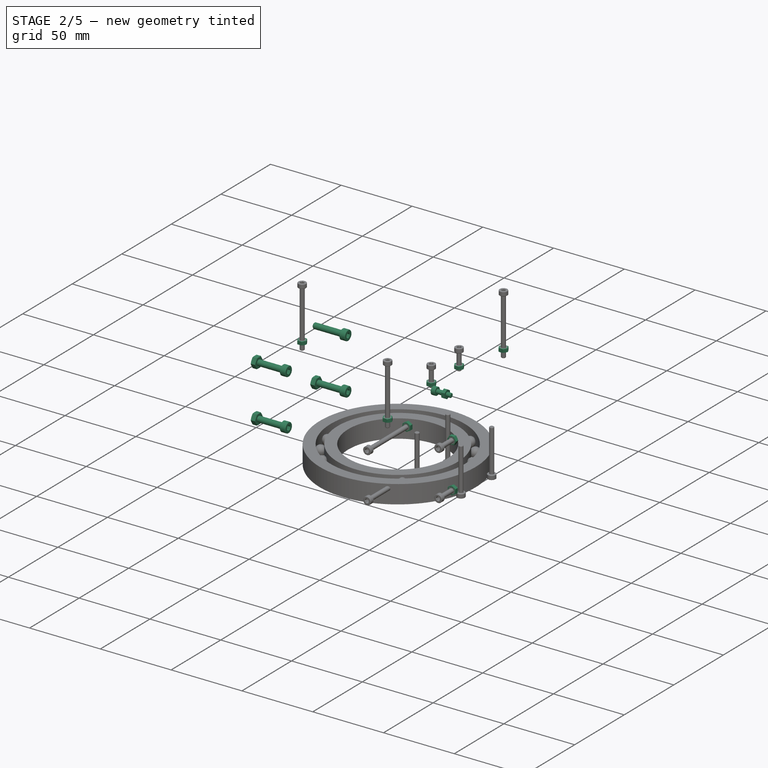
[diagram: stage 2 of 5 — iso view after this stage's code; geometry added in this stage tinted green]
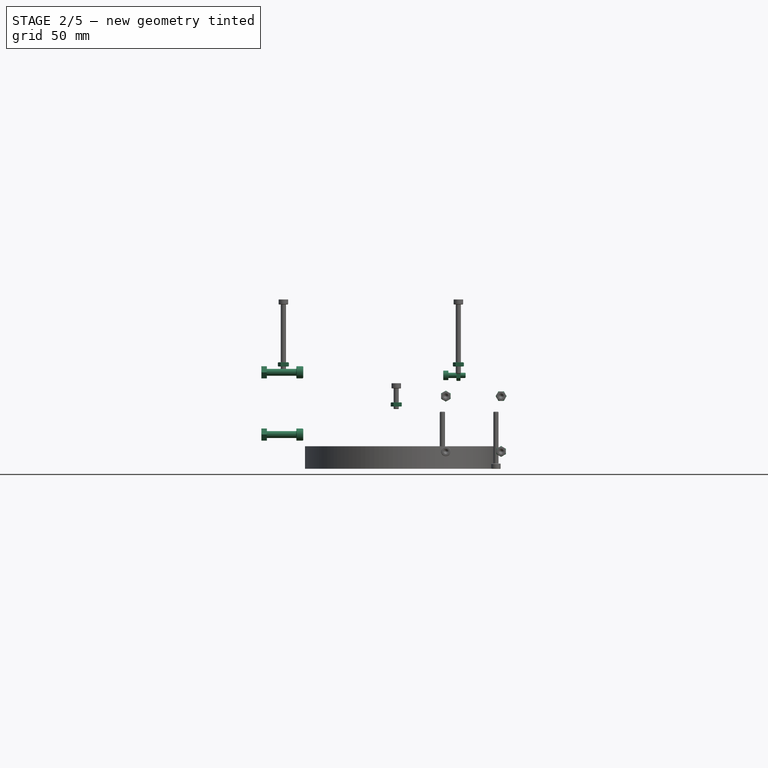
[diagram: stage 2 of 5 — front view after this stage's code; geometry added in this stage tinted green]
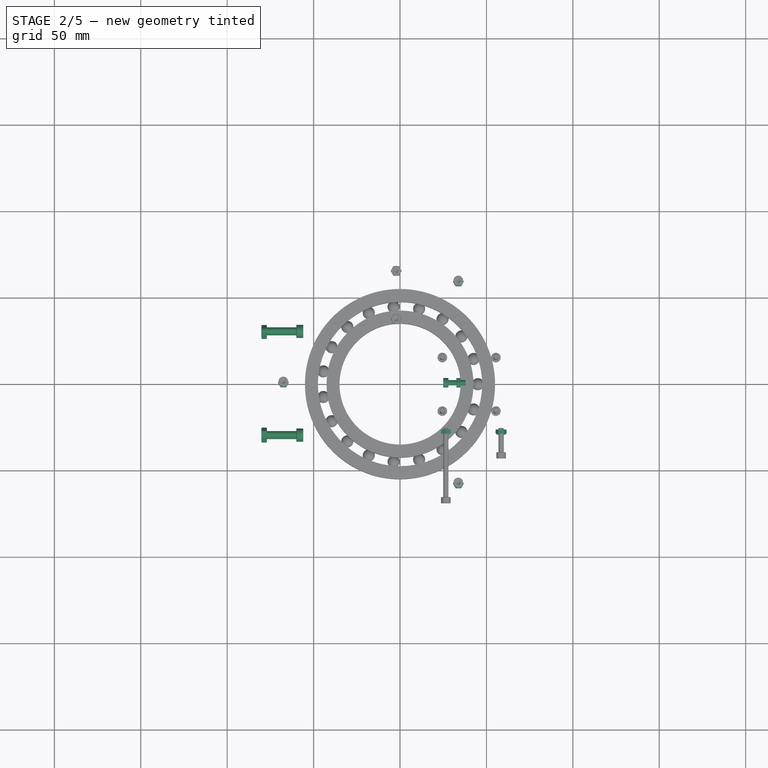
[diagram: stage 2 of 5 — top view after this stage's code; geometry added in this stage tinted green]
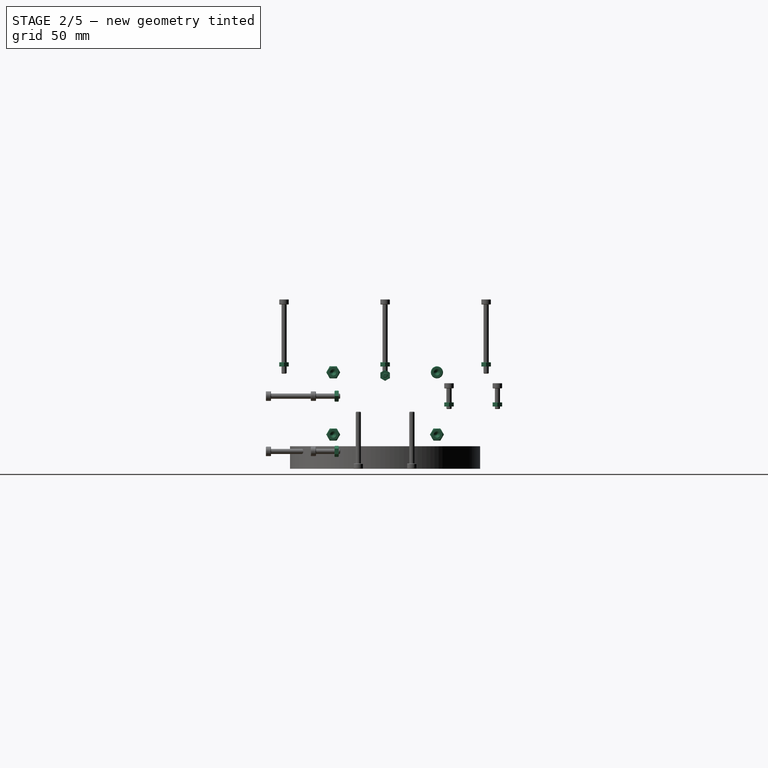
[diagram: stage 2 of 5 — right view after this stage's code; geometry added in this stage tinted green]
FEATURE [Part::FeaturePython] Nut026  label="M4-Nut007"  # Fasteners workbench fastener (typed FeaturePython)
  AssemblyType = Asm4EE
  AttachedBy = Origin
  AttachedTo = BaseBoxBody_BaseBoxBody#HoleAxis_3
  Placement = pos=(-77,30,19.75) rot=(0.57735,-0.57735,-0.57735;2.0944rad)
  diameter = 6
  invert = false
  matchOuter = false
  offset = 0
  thread = false
  type = 7
  expr: Placement = BaseBoxBody_BaseBoxBody.Placement * BaseBoxBody#HoleAxis_3.Placement * AttachmentOffset
FEATURE [Part::FeaturePython] Nut027  label="M4-Nut009"  # Fasteners workbench fastener (typed FeaturePython)
  AssemblyType = Asm4EE
  AttachedBy = Origin
  AttachedTo = BaseBoxBody_BaseBoxBody#HoleAxis_4
  Placement = pos=(-77,-30,55.75) rot=(0.57735,-0.57735,-0.57735;2.0944rad)
  diameter = 6
  invert = false
  matchOuter = false
  offset = 0
  thread = false
  type = 7
  expr: Placement = BaseBoxBody_BaseBoxBody.Placement * BaseBoxBody#HoleAxis_4.Placement * AttachmentOffset
FEATURE [Part::FeaturePython] Nut028  label="M4-Nut008"  # Fasteners workbench fastener (typed FeaturePython)
  AssemblyType = Asm4EE
  AttachedBy = Origin
  AttachedTo = BaseBoxBody_BaseBoxBody#HoleAxis_5
  Placement = pos=(-77,-30,19.75) rot=(0.57735,-0.57735,-0.57735;2.0944rad)
  diameter = 6
  invert = false
  matchOuter = false
  offset = 0
  thread = false
  type = 7
  expr: Placement = BaseBoxBody_BaseBoxBody.Placement * BaseBoxBody#HoleAxis_5.Placement * AttachmentOffset
FEATURE [Part::FeaturePython] Screw027  label="M4x20-Screw"  # Fasteners workbench fastener (typed FeaturePython)
  AssemblyType = Asm4EE
  AttachedBy = Origin
  AttachedTo = BaseBot_BaseBot#HoleAxis_2
  Placement = pos=(-60,30,55.75) rot=(0.57735,0.57735,0.57735;2.0944rad)
  diameter = 5
  invert = false
  length = 11
  lengthCustom = 20
  matchOuter = false
  offset = 0
  thread = false
  type = 33
  expr: Placement = BaseBot_BaseBot.Placement * BaseBot#HoleAxis_2.Placement * AttachmentOffset
FEATURE [Part::FeaturePython] Screw028  label="M4x20-Screw004"  # Fasteners workbench fastener (typed FeaturePython)
  AssemblyType = Asm4EE
  AttachedBy = Origin
  AttachedTo = BaseBot_BaseBot#HoleAxis_3
  Placement = pos=(-60,30,19.75) rot=(0.57735,0.57735,0.57735;2.0944rad)
  diameter = 5
  invert = false
  length = 11
  lengthCustom = 20
  matchOuter = false
  offset = 0
  thread = false
  type = 33
  expr: Placement = BaseBot_BaseBot.Placement * BaseBot#HoleAxis_3.Placement * AttachmentOffset
FEATURE [Part::FeaturePython] Screw029  label="M4x20-Screw006"  # Fasteners workbench fastener (typed FeaturePython)
  AssemblyType = Asm4EE
  AttachedBy = Origin
  AttachedTo = BaseBot_BaseBot#HoleAxis_4
  Placement = pos=(-60,-30,19.75) rot=(0.57735,0.57735,0.57735;2.0944rad)
  diameter = 5
  invert = false
  length = 11
  lengthCustom = 20
  matchOuter = false
  offset = 0
  thread = false
  type = 33
  expr: Placement = BaseBot_BaseBot.Placement * BaseBot#HoleAxis_4.Placement * AttachmentOffset
FEATURE [Part::FeaturePython] Screw030  label="M4x20-Screw005"  # Fasteners workbench fastener (typed FeaturePython)
  AssemblyType = Asm4EE
  AttachedBy = Origin
  AttachedTo = BaseBot_BaseBot#HoleAxis_1
  Placement = pos=(-60,-30,55.75) rot=(0.57735,0.57735,0.57735;2.0944rad)
  diameter = 5
  invert = false
  length = 11
  lengthCustom = 20
  matchOuter = false
  offset = 0
  thread = false
  type = 33
  expr: Placement = BaseBot_BaseBot.Placement * BaseBot#HoleAxis_1.Placement * AttachmentOffset
FEATURE [Part::FeaturePython] Nut029  label="M3-Nut137"  # Fasteners workbench fastener (typed FeaturePython)
  AssemblyType = Asm4EE
  AttachedBy = Origin
  AttachedTo = BaseBot_BaseBot#HoleAxis_13
  Placement = pos=(-67.5,3.3e-14,59.15) rot=(0,0,1;3.14159rad)
  diameter = 4
  invert = false
  matchOuter = false
  offset = 0
  thread = false
  type = 7
  expr: Placement = BaseBot_BaseBot.Placement * BaseBot#HoleAxis_13.Placement * AttachmentOffset
FEATURE [Part::FeaturePython] Nut030  label="M3-Nut142"  # Fasteners workbench fastener (typed FeaturePython)
  AssemblyType = Asm4EE
  AttachedBy = Origin
  AttachedTo = BaseBot_BaseBot#HoleAxis_12
  Placement = pos=(33.75,-58.4567,59.15) rot=(0,0,-1;1.0472rad)
  diameter = 4
  invert = false
  matchOuter = false
  offset = 0
  thread = false
  type = 7
  expr: Placement = BaseBot_BaseBot.Placement * BaseBot#HoleAxis_12.Placement * AttachmentOffset
FEATURE [Part::FeaturePython] Nut031  label="M3-Nut138"  # Fasteners workbench fastener (typed FeaturePython)
  AssemblyType = Asm4EE
  AttachedBy = Origin
  AttachedTo = BaseBot_BaseBot#HoleAxis_11
  Placement = pos=(33.75,58.4567,59.15) rot=(0,0,1;1.0472rad)
  diameter = 4
  invert = false
  matchOuter = false
  offset = 0
  thread = false
  type = 7
  expr: Placement = BaseBot_BaseBot.Placement * BaseBot#HoleAxis_11.Placement * AttachmentOffset
FEATURE [Part::FeaturePython] Nut032  label="M3-Nut148"  # Fasteners workbench fastener (typed FeaturePython)
  AssemblyType = Asm4EE
  AttachedBy = Origin
  AttachedTo = BaseBot_BaseBot#HoleAxis_9
  Placement = pos=(-2.2,37,35.95) rot=(0,0,1;3.14159rad)
  diameter = 4
  invert = false
  matchOuter = false
  offset = 0
  thread = false
  type = 7
  expr: Placement = BaseBot_BaseBot.Placement * BaseBot#HoleAxis_9.Placement * AttachmentOffset
FEATURE [Part::FeaturePython] Nut033  label="M3-Nut122"  # Fasteners workbench fastener (typed FeaturePython)
  AssemblyType = Asm4EE
  AttachedBy = Origin
  AttachedTo = BaseBot_BaseBot#HoleAxis_10
  Placement = pos=(-2.2,65,35.95) rot=(0,0,1;3.14159rad)
  diameter = 4
  invert = false
  matchOuter = false
  offset = 0
  thread = false
  type = 7
  expr: Placement = BaseBot_BaseBot.Placement * BaseBot#HoleAxis_10.Placement * AttachmentOffset
FEATURE [Part::FeaturePython] Nut034  label="M3-Nut173"  # Fasteners workbench fastener (typed FeaturePython)
  AssemblyType = Asm4EE
  AttachedBy = Origin
  AttachedTo = Art1GearMotor_Art1GearMotor#HoleAxis_2
  AttachmentOffset = pos=(0,0,0) rot=(0.707107,0.707107,0;3.14159rad)
  Placement = pos=(35,5.1e-14,54) rot=(0.707107,0,-0.707107;3.14159rad)
  diameter = 4
  invert = false
  matchOuter = false
  offset = 0
  thread = false
  type = 7
  expr: Placement = Art1GearMotor_Art1GearMotor.Placement * Art1GearMotor#HoleAxis_2.Placement * AttachmentOffset
FEATURE [Part::FeaturePython] Screw031  label="M3x10-Screw"  # Fasteners workbench fastener (typed FeaturePython)
  AssemblyType = Asm4EE
  AttachedBy = Origin
  AttachedTo = Art1GearMotor_Art1GearMotor#HoleAxis_1
  AttachmentOffset = pos=(0,0,3) rot=(1,0,0;3.14159rad)
  Placement = pos=(28,5.6e-14,54) rot=(-0.57735,0.57735,0.57735;4.18879rad)
  diameter = 4
  invert = false
  length = 3
  lengthCustom = 10
  matchOuter = false
  offset = 0
  thread = false
  type = 33
  expr: Placement = Art1GearMotor_Art1GearMotor.Placement * Art1GearMotor#HoleAxis_1.Placement * AttachmentOffset
FEATURE [Part::FeaturePython] Nut035  label="M3-Nut183"  # Fasteners workbench fastener (typed FeaturePython)
  AssemblyType = Asm4EE
  AttachedBy = Origin
  AttachedTo = Fan_40x40001#HoleAxis_8
  Placement = pos=(58.4948,-29.24,41.9948) rot=(0,0.707107,0.707107;3.14159rad)
  diameter = 4
  invert = false
  matchOuter = false
  offset = 0
  thread = false
  type = 7
  expr: Placement = Fan_40x40001.Placement * HoleAxis_8.Placement * AttachmentOffset
FEATURE [Part::FeaturePython] Nut036  label="M3-Nut184"  # Fasteners workbench fastener (typed FeaturePython)
  AssemblyType = Asm4EE
  AttachedBy = Origin
  AttachedTo = Fan_40x40001#HoleAxis_5
  Placement = pos=(26.5052,-29.24,41.9948) rot=(0.57735,-0.57735,-0.57735;4.18879rad)
  diameter = 4
  invert = false
  matchOuter = false
  offset = 0
  thread = false
  type = 7
  expr: Placement = Fan_40x40001.Placement * HoleAxis_5.Placement * AttachmentOffset
FEATURE [Part::FeaturePython] Nut037  label="M3-Nut188"  # Fasteners workbench fastener (typed FeaturePython)
  AssemblyType = Asm4EE
  AttachedBy = Origin
  AttachedTo = Fan_40x40001#HoleAxis_7
  Placement = pos=(58.4948,-29.24,10.0052) rot=(-0.57735,-0.57735,-0.57735;2.0944rad)
  diameter = 4
  invert = false
  matchOuter = false
  offset = 0
  thread = false
  type = 7
  expr: Placement = Fan_40x40001.Placement * HoleAxis_7.Placement * AttachmentOffset
FEATURE [Part::FeaturePython] Nut038  label="M3-Nut189"  # Fasteners workbench fastener (typed FeaturePython)
  AssemblyType = Asm4EE
  AttachedBy = Origin
  AttachedTo = Fan_40x40001#HoleAxis_6
  Placement = pos=(26.5052,-29.24,10.0052) rot=(-1,0,0;1.5708rad)
  diameter = 4
  invert = false
  matchOuter = false
  offset = 0
  thread = false
  type = 7
  expr: Placement = Fan_40x40001.Placement * HoleAxis_6.Placement * AttachmentOffset
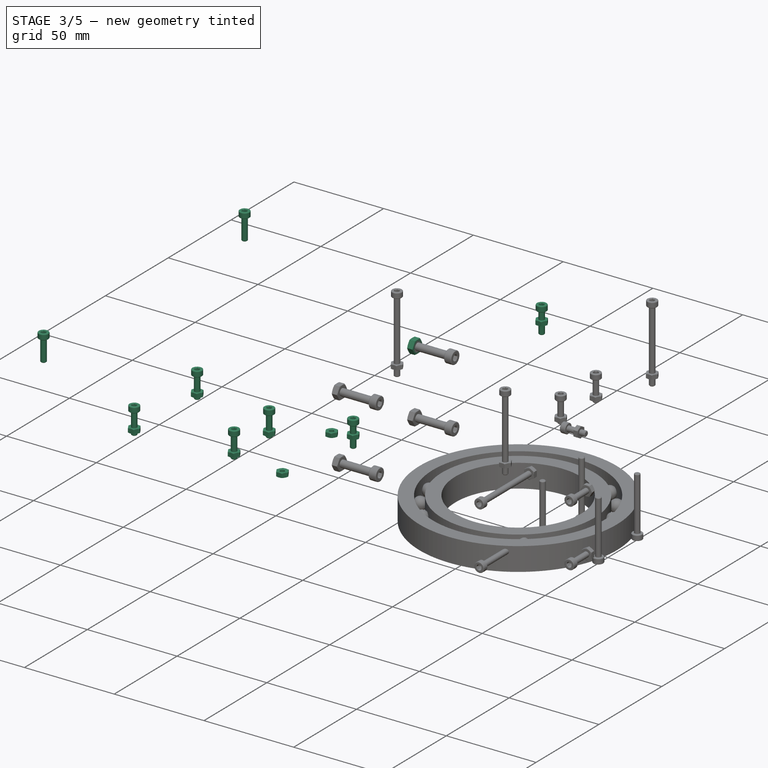
[diagram: stage 3 of 5 — iso view after this stage's code; geometry added in this stage tinted green]
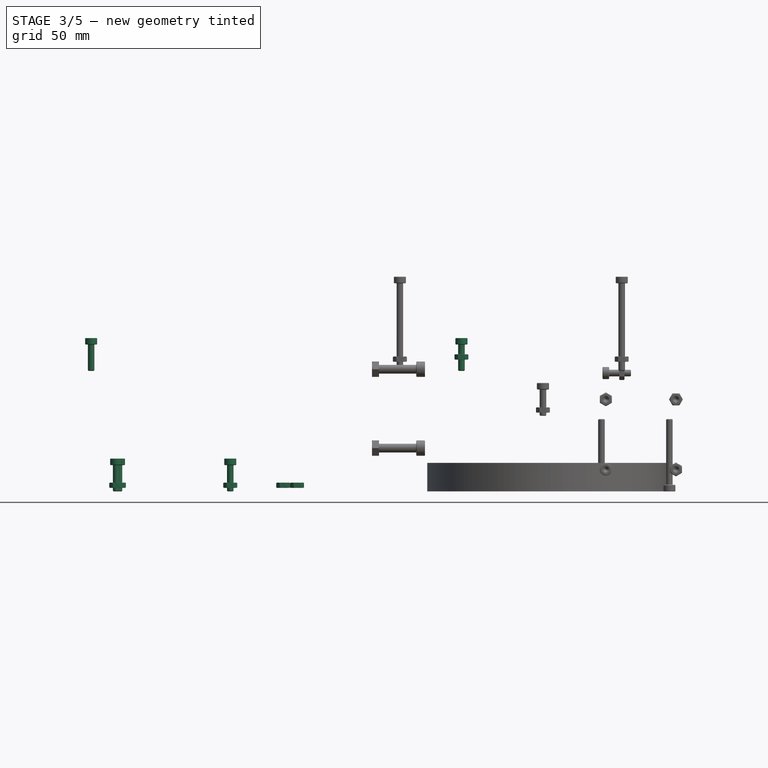
[diagram: stage 3 of 5 — front view after this stage's code; geometry added in this stage tinted green]
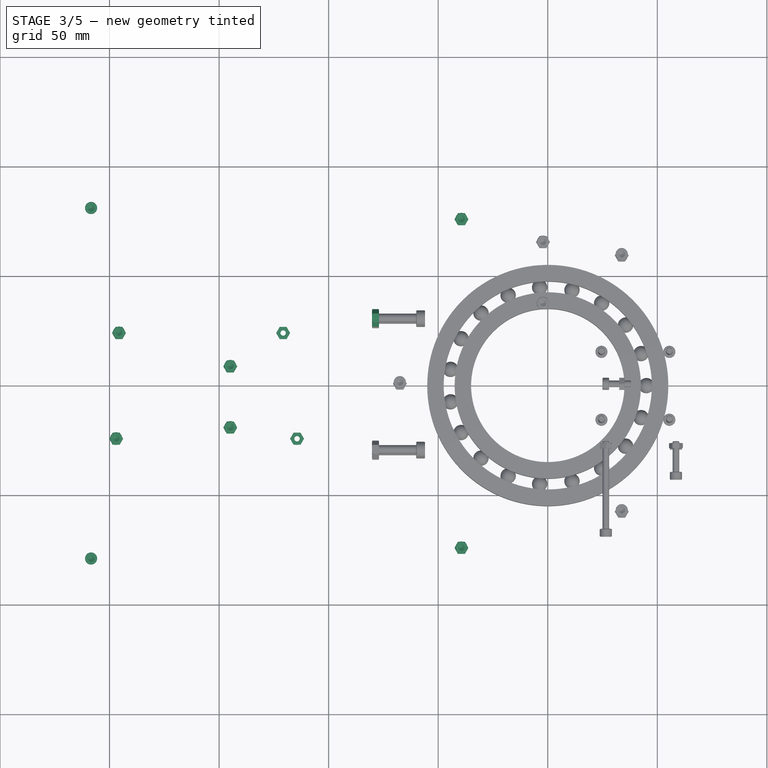
[diagram: stage 3 of 5 — top view after this stage's code; geometry added in this stage tinted green]
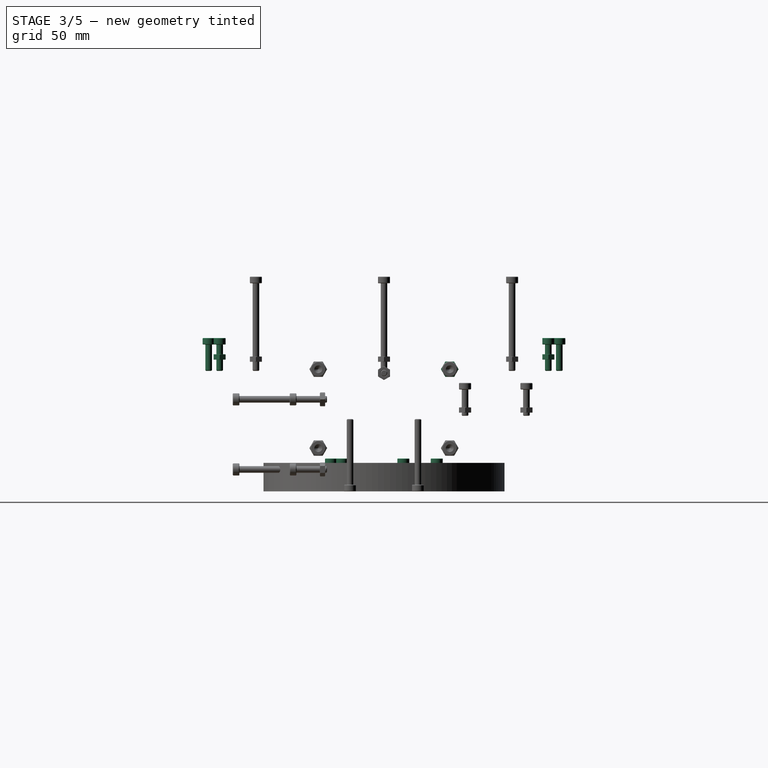
[diagram: stage 3 of 5 — right view after this stage's code; geometry added in this stage tinted green]
FEATURE [Part::FeaturePython] Screw018  label="M3x12-Screw066"  # Fasteners workbench fastener (typed FeaturePython)
  AssemblyType = Asm4EE
  AttachedBy = Origin
  AttachedTo = ArduinoMega001#HoleAxis_10
  Placement = pos=(-144.9,8.84342,12) rot=(0,0,1;3.9e-05rad)
  diameter = 4
  invert = false
  length = 4
  lengthCustom = 12
  matchOuter = false
  offset = 0
  thread = false
  type = 33
  expr: Placement = ArduinoMega001.Placement * HoleAxis_10.Placement * AttachmentOffset
FEATURE [Part::FeaturePython] Screw019  label="M3x12-Screw061"  # Fasteners workbench fastener (typed FeaturePython)
  AssemblyType = Asm4EE
  AttachedBy = Origin
  AttachedTo = ArduinoMega001#HoleAxis_11
  Placement = pos=(-144.899,-19.1006,12) rot=(0,0,1;3.9e-05rad)
  diameter = 4
  invert = false
  length = 4
  lengthCustom = 12
  matchOuter = false
  offset = 0
  thread = false
  type = 33
  expr: Placement = ArduinoMega001.Placement * HoleAxis_11.Placement * AttachmentOffset
FEATURE [Part::FeaturePython] Screw020  label="M3x12-Screw062"  # Fasteners workbench fastener (typed FeaturePython)
  AssemblyType = Asm4EE
  AttachedBy = Origin
  AttachedTo = ArduinoMega001#HoleAxis_12
  Placement = pos=(-195.697,24.0814,12) rot=(0,0,1;3.9e-05rad)
  diameter = 4
  invert = false
  length = 4
  lengthCustom = 12
  matchOuter = false
  offset = 0
  thread = false
  type = 33
  expr: Placement = ArduinoMega001.Placement * HoleAxis_12.Placement * AttachmentOffset
FEATURE [Part::FeaturePython] Screw021  label="M3x12-Screw067"  # Fasteners workbench fastener (typed FeaturePython)
  AssemblyType = Asm4EE
  AttachedBy = Origin
  AttachedTo = ArduinoMega001#HoleAxis_13
  Placement = pos=(-196.965,-24.1786,12) rot=(0,0,1;3.9e-05rad)
  diameter = 4
  invert = false
  length = 4
  lengthCustom = 12
  matchOuter = false
  offset = 0
  thread = false
  type = 33
  expr: Placement = ArduinoMega001.Placement * HoleAxis_13.Placement * AttachmentOffset
FEATURE [PartDesign::Line] HoleAxis_16
  AttacherType = Attacher::AttachEngineLine
  Length = 4.50902
  MapMode = 19
  Placement = pos=(45.58,-24.18,2) rot=(0,0,1;0rad)
  ResizeMode = 1
  Support = -> [Part__Feature]
FEATURE [App::Part] ArduinoMega
  Group = -> [LCS_0005,Part__Feature,LCS_ArduinoMega,HoleAxis_9,HoleAxis_10,HoleAxis_11,HoleAxis_12,HoleAxis_13,HoleAxis_16]
  Origin = -> Origin006
FEATURE [App::DocumentObjectGroup] Group002  label="Electronics"
  Group = -> [OnOffButton,ResetButton,Washer,ArduinoMega,JackDC,OpticSensor,Stepper_Nema17x40]
FEATURE [App::DocumentObjectGroup] Parts
  Group = -> [Group001,Group002,Group]
FEATURE [Part::FeaturePython] Nut016  label="M3-Nut151"  # Fasteners workbench fastener (typed FeaturePython)
  AssemblyType = Asm4EE
  AttachedBy = Origin
  AttachedTo = BaseBoxBody_BaseBoxBody#HoleAxis_28
  AttachmentOffset = pos=(0,0,0) rot=(1,0,0;3.14159rad)
  Placement = pos=(-196.966,-24.1801,4) rot=(0,1,0;3.14159rad)
  diameter = 4
  invert = false
  matchOuter = false
  offset = 0
  thread = false
  type = 7
  expr: Placement = BaseBoxBody_BaseBoxBody.Placement * BaseBoxBody#HoleAxis_28.Placement * AttachmentOffset
FEATURE [Part::FeaturePython] Nut017  label="M3-Nut143"  # Fasteners workbench fastener (typed FeaturePython)
  AssemblyType = Asm4EE
  AttachedBy = Origin
  AttachedTo = BaseBoxBody_BaseBoxBody#HoleAxis_27
  AttachmentOffset = pos=(0,0,0) rot=(1,0,0;3.14159rad)
  Placement = pos=(-195.696,24.084,4) rot=(0,1,0;3.14159rad)
  diameter = 4
  invert = false
  matchOuter = false
  offset = 0
  thread = false
  type = 7
  expr: Placement = BaseBoxBody_BaseBoxBody.Placement * BaseBoxBody#HoleAxis_27.Placement * AttachmentOffset
FEATURE [Part::FeaturePython] Nut018  label="M3-Nut124"  # Fasteners workbench fastener (typed FeaturePython)
  AssemblyType = Asm4EE
  AttachedBy = Origin
  AttachedTo = BaseBoxBody_BaseBoxBody#HoleAxis_26
  AttachmentOffset = pos=(0,0,0) rot=(1,0,0;3.14159rad)
  Placement = pos=(-144.9,8.844,4) rot=(0,1,0;3.14159rad)
  diameter = 4
  invert = false
  matchOuter = false
  offset = 0
  thread = false
  type = 7
  expr: Placement = BaseBoxBody_BaseBoxBody.Placement * BaseBoxBody#HoleAxis_26.Placement * AttachmentOffset
FEATURE [Part::FeaturePython] Nut019  label="M3-Nut145"  # Fasteners workbench fastener (typed FeaturePython)
  AssemblyType = Asm4EE
  AttachedBy = Origin
  AttachedTo = BaseBoxBody_BaseBoxBody#HoleAxis_25
  AttachmentOffset = pos=(0,0,0) rot=(1,0,0;3.14159rad)
  Placement = pos=(-144.9,-19.1,4) rot=(0,1,0;3.14159rad)
  diameter = 4
  invert = false
  matchOuter = false
  offset = 0
  thread = false
  type = 7
  expr: Placement = BaseBoxBody_BaseBoxBody.Placement * BaseBoxBody#HoleAxis_25.Placement * AttachmentOffset
FEATURE [Part::FeaturePython] Nut020  label="M3-Nut146"  # Fasteners workbench fastener (typed FeaturePython)
  AssemblyType = Asm4EE
  AttachedBy = Origin
  AttachedTo = BaseBoxBody_BaseBoxBody#HoleAxis_24
  AttachmentOffset = pos=(0,0,0) rot=(1,0,0;3.14159rad)
  Placement = pos=(-114.42,-24.1801,4) rot=(0,1,0;3.14159rad)
  diameter = 4
  invert = false
  matchOuter = false
  offset = 0
  thread = false
  type = 7
  expr: Placement = BaseBoxBody_BaseBoxBody.Placement * BaseBoxBody#HoleAxis_24.Placement * AttachmentOffset
FEATURE [Part::FeaturePython] Nut021  label="M3-Nut147"  # Fasteners workbench fastener (typed FeaturePython)
  AssemblyType = Asm4EE
  AttachedBy = Origin
  AttachedTo = BaseBoxBody_BaseBoxBody#HoleAxis_23
  AttachmentOffset = pos=(0,0,0) rot=(1,0,0;3.14159rad)
  Placement = pos=(-120.766,24.084,4) rot=(0,1,0;3.14159rad)
  diameter = 4
  invert = false
  matchOuter = false
  offset = 0
  thread = false
  type = 7
  expr: Placement = BaseBoxBody_BaseBoxBody.Placement * BaseBoxBody#HoleAxis_23.Placement * AttachmentOffset
FEATURE [App::Link] NutButton  label="NutButton001"
  AssemblyType = Asm4EE
  AttachedBy = #LCS_Washer
  AttachedTo = BaseBoxCover_BaseBoxCover#LCS_PushButton1
  AttachmentOffset = pos=(0,0,-5) rot=(0,0,1;0rad)
  LinkPlacement = pos=(-74.4,67.5,64) rot=(0,0,1;3.14159rad)
  LinkedObject = -> Washer
  Placement = pos=(-74.4,67.5,64) rot=(0,0,1;3.14159rad)
  expr: Placement = BaseBoxCover_BaseBoxCover.Placement * BaseBoxCover#LCS_PushButton1.Placement * AttachmentOffset * LCS_Washer.Placement ^ -1
FEATURE [App::Link] NutButton001  label="NutButton002"
  AssemblyType = Asm4EE
  AttachedBy = #LCS_Washer
  AttachedTo = BaseBoxCover_BaseBoxCover#LCS_PushButton2
  AttachmentOffset = pos=(0,0,-5) rot=(0,0,1;0rad)
  LinkPlacement = pos=(-74.4,-67.5,64) rot=(0,0,1;3.14159rad)
  LinkedObject = -> Washer
  Placement = pos=(-74.4,-67.5,64) rot=(0,0,1;3.14159rad)
  expr: Placement = BaseBoxCover_BaseBoxCover.Placement * BaseBoxCover#LCS_PushButton2.Placement * AttachmentOffset * LCS_Washer.Placement ^ -1
FEATURE [Part::FeaturePython] Nut023  label="M3-Nut150"  # Fasteners workbench fastener (typed FeaturePython)
  AssemblyType = Asm4EE
  AttachedBy = Origin
  AttachedTo = BaseBoxBody_BaseBoxBody#HoleAxis_1
  Placement = pos=(-39.4,75,60.15) rot=(0,0,1;3.14159rad)
  diameter = 4
  invert = false
  matchOuter = false
  offset = 0
  thread = false
  type = 7
  expr: Placement = BaseBoxBody_BaseBoxBody.Placement * BaseBoxBody#HoleAxis_1.Placement * AttachmentOffset
FEATURE [Part::FeaturePython] Nut024  label="M3-Nut144"  # Fasteners workbench fastener (typed FeaturePython)
  AssemblyType = Asm4EE
  AttachedBy = Origin
  AttachedTo = BaseBoxBody_BaseBoxBody#HoleAxis_6
  Placement = pos=(-39.4,-75,60.15) rot=(0,0,1;3.14159rad)
  diameter = 4
  invert = false
  matchOuter = false
  offset = 0
  thread = false
  type = 7
  expr: Placement = BaseBoxBody_BaseBoxBody.Placement * BaseBoxBody#HoleAxis_6.Placement * AttachmentOffset
FEATURE [Part::FeaturePython] Screw023  label="M3x12-Screw045"  # Fasteners workbench fastener (typed FeaturePython)
  AssemblyType = Asm4EE
  AttachedBy = Origin
  AttachedTo = BaseBoxCover_BaseBoxCover#HoleAxis_2
  Placement = pos=(-208.4,80,67) rot=(0,0,1;3.14159rad)
  diameter = 4
  invert = false
  length = 4
  lengthCustom = 12
  matchOuter = false
  offset = 0
  thread = false
  type = 33
  expr: Placement = BaseBoxCover_BaseBoxCover.Placement * BaseBoxCover#HoleAxis_2.Placement * AttachmentOffset
FEATURE [Part::FeaturePython] Screw024  label="M3x12-Screw049"  # Fasteners workbench fastener (typed FeaturePython)
  AssemblyType = Asm4EE
  AttachedBy = Origin
  AttachedTo = BaseBoxCover_BaseBoxCover#HoleAxis_3
  Placement = pos=(-208.4,-80,67) rot=(0,0,1;3.14159rad)
  diameter = 4
  invert = false
  length = 4
  lengthCustom = 12
  matchOuter = false
  offset = 0
  thread = false
  type = 33
  expr: Placement = BaseBoxCover_BaseBoxCover.Placement * BaseBoxCover#HoleAxis_3.Placement * AttachmentOffset
FEATURE [Part::FeaturePython] Screw025  label="M3x12-Screw053"  # Fasteners workbench fastener (typed FeaturePython)
  AssemblyType = Asm4EE
  AttachedBy = Origin
  AttachedTo = BaseBoxCover_BaseBoxCover#HoleAxis_4
  Placement = pos=(-39.4,-75,67) rot=(0,0,1;3.14159rad)
  diameter = 4
  invert = false
  length = 4
  lengthCustom = 12
  matchOuter = false
  offset = 0
  thread = false
  type = 33
  expr: Placement = BaseBoxCover_BaseBoxCover.Placement * BaseBoxCover#HoleAxis_4.Placement * AttachmentOffset
FEATURE [Part::FeaturePython] Screw026  label="M3x12-Screw052"  # Fasteners workbench fastener (typed FeaturePython)
  AssemblyType = Asm4EE
  AttachedBy = Origin
  AttachedTo = BaseBoxCover_BaseBoxCover#HoleAxis_1
  Placement = pos=(-39.4,75,67) rot=(0,0,1;3.14159rad)
  diameter = 4
  invert = false
  length = 4
  lengthCustom = 12
  matchOuter = false
  offset = 0
  thread = false
  type = 33
  expr: Placement = BaseBoxCover_BaseBoxCover.Placement * BaseBoxCover#HoleAxis_1.Placement * AttachmentOffset
FEATURE [Part::FeaturePython] Nut025  label="M4-Nut"  # Fasteners workbench fastener (typed FeaturePython)
  AssemblyType = Asm4EE
  AttachedBy = Origin
  AttachedTo = BaseBoxBody_BaseBoxBody#HoleAxis_2
  Placement = pos=(-77,30,55.75) rot=(0.57735,-0.57735,-0.57735;2.0944rad)
  diameter = 6
  invert = false
  matchOuter = false
  offset = 0
  thread = false
  type = 7
  expr: Placement = BaseBoxBody_BaseBoxBody.Placement * BaseBoxBody#HoleAxis_2.Placement * AttachmentOffset
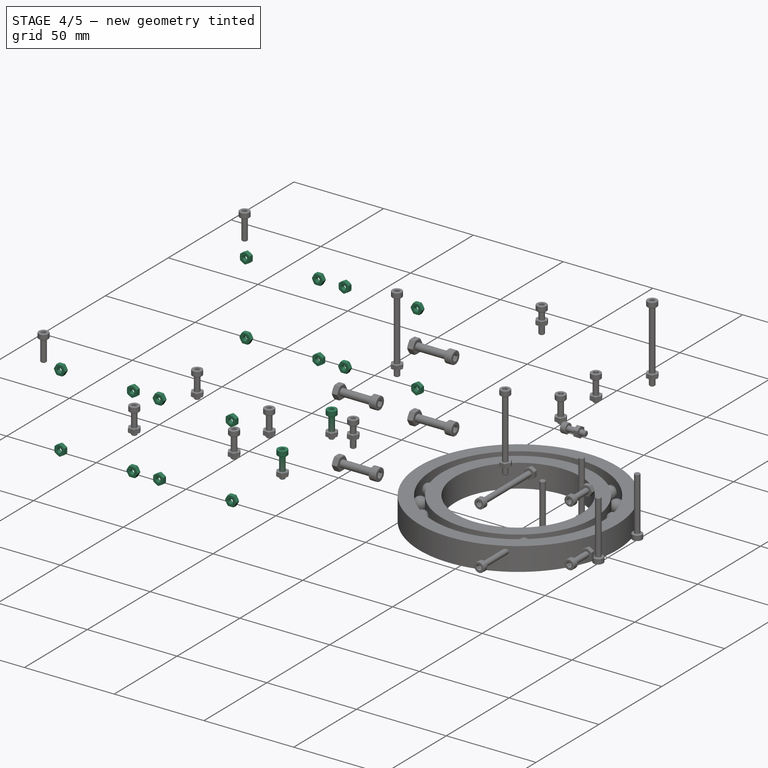
[diagram: stage 4 of 5 — iso view after this stage's code; geometry added in this stage tinted green]
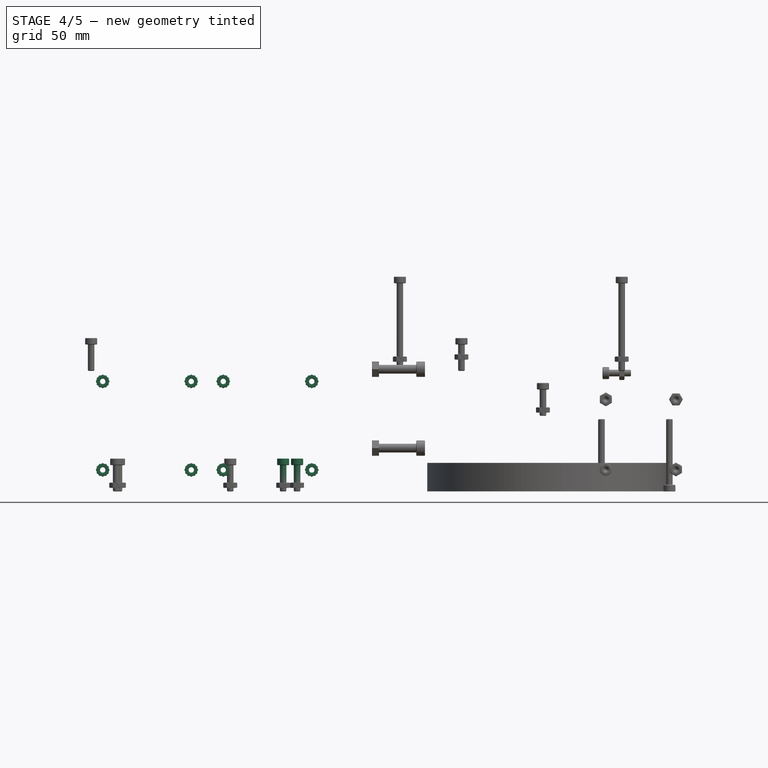
[diagram: stage 4 of 5 — front view after this stage's code; geometry added in this stage tinted green]
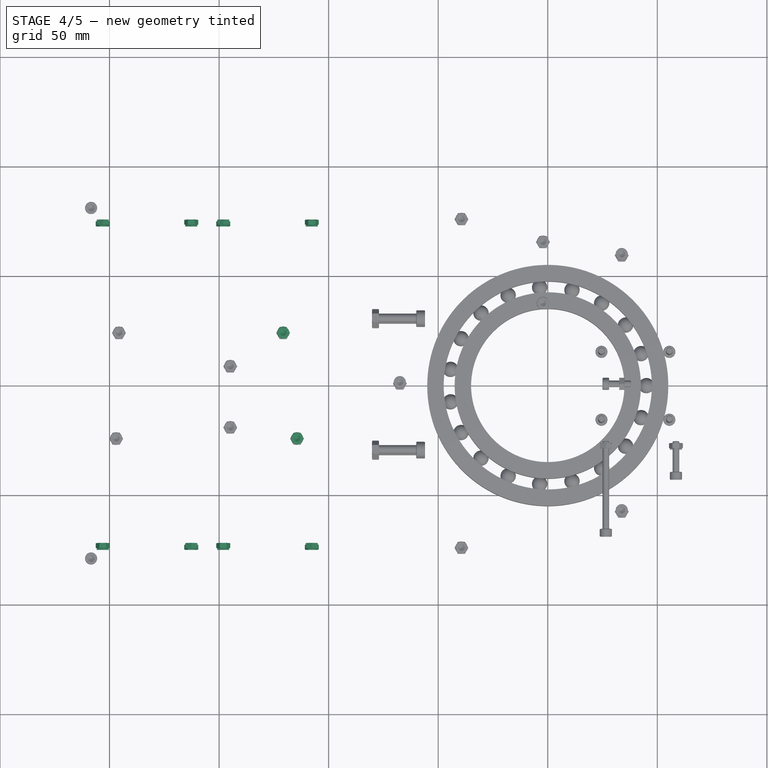
[diagram: stage 4 of 5 — top view after this stage's code; geometry added in this stage tinted green]
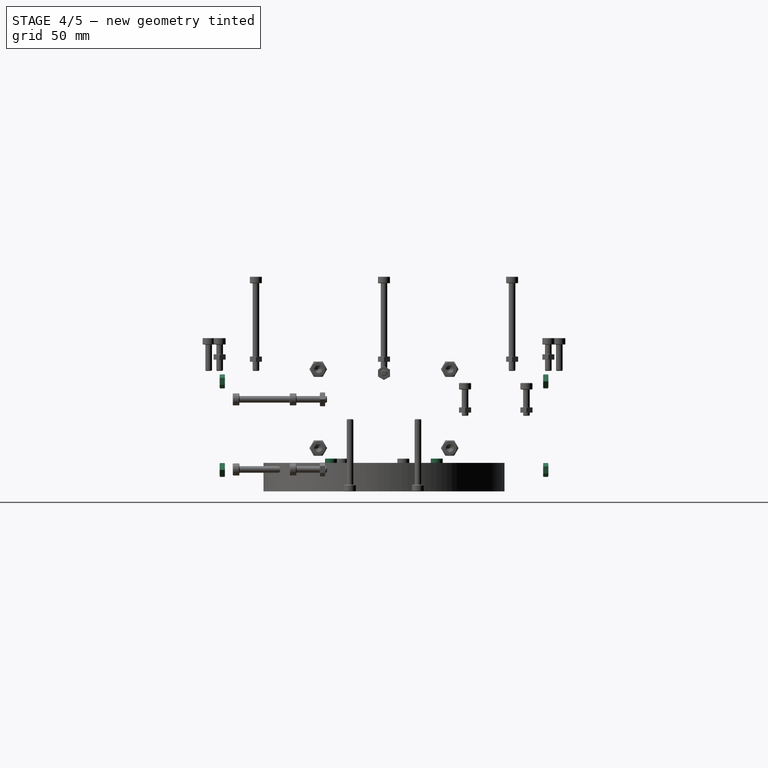
[diagram: stage 4 of 5 — right view after this stage's code; geometry added in this stage tinted green]
FEATURE [Part::FeaturePython] Nut  label="M3-Nut"  # Fasteners workbench fastener (typed FeaturePython)
  AssemblyType = Asm4EE
  AttachedBy = Origin
  AttachedTo = Fan_50x50002#HoleAxis_2
  AttachmentOffset = pos=(0,0,0) rot=(1,0,0;3.14159rad)
  Placement = pos=(-203.1,75,50.2) rot=(-0.57735,-0.57735,0.57735;4.18879rad)
  diameter = 4
  invert = false
  matchOuter = false
  offset = 0
  thread = false
  type = 7
  expr: Placement = Fan_50x50002.Placement * HoleAxis_2.Placement * AttachmentOffset
FEATURE [Part::FeaturePython] Nut001  label="M3-Nut181"  # Fasteners workbench fastener (typed FeaturePython)
  AssemblyType = Asm4EE
  AttachedBy = Origin
  AttachedTo = Fan_50x50002#HoleAxis_1
  AttachmentOffset = pos=(0,0,0) rot=(1,0,0;3.14159rad)
  Placement = pos=(-162.7,75,50.2) rot=(0,-0.707107,0.707107;3.14159rad)
  diameter = 4
  invert = false
  matchOuter = false
  offset = 0
  thread = false
  type = 7
  expr: Placement = Fan_50x50002.Placement * HoleAxis_1.Placement * AttachmentOffset
FEATURE [Part::FeaturePython] Nut002  label="M3-Nut182"  # Fasteners workbench fastener (typed FeaturePython)
  AssemblyType = Asm4EE
  AttachedBy = Origin
  AttachedTo = Fan_50x50002#HoleAxis_3
  AttachmentOffset = pos=(0,0,0) rot=(1,0,0;3.14159rad)
  Placement = pos=(-203.1,75,9.8) rot=(1,0,0;1.5708rad)
  diameter = 4
  invert = false
  matchOuter = false
  offset = 0
  thread = false
  type = 7
  expr: Placement = Fan_50x50002.Placement * HoleAxis_3.Placement * AttachmentOffset
FEATURE [Part::FeaturePython] Nut003  label="M3-Nut177"  # Fasteners workbench fastener (typed FeaturePython)
  AssemblyType = Asm4EE
  AttachedBy = Origin
  AttachedTo = Fan_50x50002#HoleAxis_4
  AttachmentOffset = pos=(0,0,0) rot=(1,0,0;3.14159rad)
  Placement = pos=(-162.7,75,9.8) rot=(0.57735,-0.57735,0.57735;2.0944rad)
  diameter = 4
  invert = false
  matchOuter = false
  offset = 0
  thread = false
  type = 7
  expr: Placement = Fan_50x50002.Placement * HoleAxis_4.Placement * AttachmentOffset
FEATURE [Part::FeaturePython] Nut004  label="M3-Nut180"  # Fasteners workbench fastener (typed FeaturePython)
  AssemblyType = Asm4EE
  AttachedBy = Origin
  AttachedTo = Fan_50x50001#HoleAxis_4
  AttachmentOffset = pos=(0,0,0) rot=(1,0,0;3.14159rad)
  Placement = pos=(-148.1,75,50.2) rot=(0.57735,0.57735,-0.57735;2.0944rad)
  diameter = 4
  invert = false
  matchOuter = false
  offset = 0
  thread = false
  type = 7
  expr: Placement = Fan_50x50001.Placement * HoleAxis_4.Placement * AttachmentOffset
FEATURE [Part::FeaturePython] Nut005  label="M3-Nut178"  # Fasteners workbench fastener (typed FeaturePython)
  AssemblyType = Asm4EE
  AttachedBy = Origin
  AttachedTo = Fan_50x50001#HoleAxis_1
  AttachmentOffset = pos=(0,0,0) rot=(1,0,0;3.14159rad)
  Placement = pos=(-148.1,75,9.8) rot=(1,0,0;1.5708rad)
  diameter = 4
  invert = false
  matchOuter = false
  offset = 0
  thread = false
  type = 7
  expr: Placement = Fan_50x50001.Placement * HoleAxis_1.Placement * AttachmentOffset
FEATURE [Part::FeaturePython] Nut006  label="M3-Nut179"  # Fasteners workbench fastener (typed FeaturePython)
  AssemblyType = Asm4EE
  AttachedBy = Origin
  AttachedTo = Fan_50x50001#HoleAxis_3
  AttachmentOffset = pos=(0,0,0) rot=(1,0,0;3.14159rad)
  Placement = pos=(-107.7,75,50.2) rot=(0,0.707107,-0.707107;3.14159rad)
  diameter = 4
  invert = false
  matchOuter = false
  offset = 0
  thread = false
  type = 7
  expr: Placement = Fan_50x50001.Placement * HoleAxis_3.Placement * AttachmentOffset
FEATURE [Part::FeaturePython] Nut007  label="M3-Nut176"  # Fasteners workbench fastener (typed FeaturePython)
  AssemblyType = Asm4EE
  AttachedBy = Origin
  AttachedTo = Fan_50x50001#HoleAxis_2
  AttachmentOffset = pos=(0,0,0) rot=(1,0,0;3.14159rad)
  Placement = pos=(-107.7,75,9.8) rot=(0.57735,-0.57735,0.57735;2.0944rad)
  diameter = 4
  invert = false
  matchOuter = false
  offset = 0
  thread = false
  type = 7
  expr: Placement = Fan_50x50001.Placement * HoleAxis_2.Placement * AttachmentOffset
FEATURE [Part::FeaturePython] Nut008  label="M3-Nut187"  # Fasteners workbench fastener (typed FeaturePython)
  AssemblyType = Asm4EE
  AttachedBy = Origin
  AttachedTo = Fan_50x50003#HoleAxis_4
  AttachmentOffset = pos=(0,0,0) rot=(1,0,0;3.14159rad)
  Placement = pos=(-107.7,-75,50.2) rot=(0.57735,-0.57735,-0.57735;4.18879rad)
  diameter = 4
  invert = false
  matchOuter = false
  offset = 0
  thread = false
  type = 7
  expr: Placement = Fan_50x50003.Placement * HoleAxis_4.Placement * AttachmentOffset
FEATURE [Part::FeaturePython] Nut009  label="M3-Nut175"  # Fasteners workbench fastener (typed FeaturePython)
  AssemblyType = Asm4EE
  AttachedBy = Origin
  AttachedTo = Fan_50x50003#HoleAxis_3
  AttachmentOffset = pos=(0,0,0) rot=(1,0,0;3.14159rad)
  Placement = pos=(-148.1,-75,50.2) rot=(-1,0,0;1.5708rad)
  diameter = 4
  invert = false
  matchOuter = false
  offset = 0
  thread = false
  type = 7
  expr: Placement = Fan_50x50003.Placement * HoleAxis_3.Placement * AttachmentOffset
FEATURE [Part::FeaturePython] Nut010  label="M3-Nut185"  # Fasteners workbench fastener (typed FeaturePython)
  AssemblyType = Asm4EE
  AttachedBy = Origin
  AttachedTo = Fan_50x50003#HoleAxis_1
  AttachmentOffset = pos=(0,0,0) rot=(1,0,0;3.14159rad)
  Placement = pos=(-107.7,-75,9.8) rot=(0,0.707107,0.707107;3.14159rad)
  diameter = 4
  invert = false
  matchOuter = false
  offset = 0
  thread = false
  type = 7
  expr: Placement = Fan_50x50003.Placement * HoleAxis_1.Placement * AttachmentOffset
FEATURE [Part::FeaturePython] Nut011  label="M3-Nut186"  # Fasteners workbench fastener (typed FeaturePython)
  AssemblyType = Asm4EE
  AttachedBy = Origin
  AttachedTo = Fan_50x50003#HoleAxis_2
  AttachmentOffset = pos=(0,0,0) rot=(1,0,0;3.14159rad)
  Placement = pos=(-148.1,-75,9.8) rot=(-0.57735,-0.57735,-0.57735;2.0944rad)
  diameter = 4
  invert = false
  matchOuter = false
  offset = 0
  thread = false
  type = 7
  expr: Placement = Fan_50x50003.Placement * HoleAxis_2.Placement * AttachmentOffset
FEATURE [Part::FeaturePython] Nut012  label="M3-Nut172"  # Fasteners workbench fastener (typed FeaturePython)
  AssemblyType = Asm4EE
  AttachedBy = Origin
  AttachedTo = Fan_50x50004#HoleAxis_4
  AttachmentOffset = pos=(0,0,0) rot=(1,0,0;3.14159rad)
  Placement = pos=(-162.7,-75,50.2) rot=(-0.57735,0.57735,0.57735;2.0944rad)
  diameter = 4
  invert = false
  matchOuter = false
  offset = 0
  thread = false
  type = 7
  expr: Placement = Fan_50x50004.Placement * HoleAxis_4.Placement * AttachmentOffset
FEATURE [Part::FeaturePython] Nut013  label="M3-Nut190"  # Fasteners workbench fastener (typed FeaturePython)
  AssemblyType = Asm4EE
  AttachedBy = Origin
  AttachedTo = Fan_50x50004#HoleAxis_3
  AttachmentOffset = pos=(0,0,0) rot=(1,0,0;3.14159rad)
  Placement = pos=(-203.1,-75,50.2) rot=(-1,0,0;1.5708rad)
  diameter = 4
  invert = false
  matchOuter = false
  offset = 0
  thread = false
  type = 7
  expr: Placement = Fan_50x50004.Placement * HoleAxis_3.Placement * AttachmentOffset
FEATURE [Part::FeaturePython] Nut014  label="M3-Nut174"  # Fasteners workbench fastener (typed FeaturePython)
  AssemblyType = Asm4EE
  AttachedBy = Origin
  AttachedTo = Fan_50x50004#HoleAxis_1
  AttachmentOffset = pos=(0,0,0) rot=(1,0,0;3.14159rad)
  Placement = pos=(-162.7,-75,9.8) rot=(0,0.707107,0.707107;3.14159rad)
  diameter = 4
  invert = false
  matchOuter = false
  offset = 0
  thread = false
  type = 7
  expr: Placement = Fan_50x50004.Placement * HoleAxis_1.Placement * AttachmentOffset
FEATURE [Part::FeaturePython] Nut015  label="M3-Nut191"  # Fasteners workbench fastener (typed FeaturePython)
  AssemblyType = Asm4EE
  AttachedBy = Origin
  AttachedTo = Fan_50x50004#HoleAxis_2
  AttachmentOffset = pos=(0,0,0) rot=(1,0,0;3.14159rad)
  Placement = pos=(-203.1,-75,9.8) rot=(-0.57735,-0.57735,-0.57735;2.0944rad)
  diameter = 4
  invert = false
  matchOuter = false
  offset = 0
  thread = false
  type = 7
  expr: Placement = Fan_50x50004.Placement * HoleAxis_2.Placement * AttachmentOffset
FEATURE [Part::FeaturePython] Screw016  label="M3x12-Screw"  # Fasteners workbench fastener (typed FeaturePython)
  AssemblyType = Asm4EE
  AttachedBy = Origin
  AttachedTo = ArduinoMega001#HoleAxis_16
  Placement = pos=(-114.419,-24.1794,12) rot=(0,0,1;3.9e-05rad)
  diameter = 4
  invert = false
  length = 4
  lengthCustom = 12
  matchOuter = false
  offset = 0
  thread = false
  type = 33
  expr: Placement = ArduinoMega001.Placement * HoleAxis_16.Placement * AttachmentOffset
FEATURE [Part::FeaturePython] Screw017  label="M3x12-Screw065"  # Fasteners workbench fastener (typed FeaturePython)
  AssemblyType = Asm4EE
  AttachedBy = Origin
  AttachedTo = ArduinoMega001#HoleAxis_9
  Placement = pos=(-120.767,24.0844,12) rot=(0,0,1;3.9e-05rad)
  diameter = 4
  invert = false
  length = 4
  lengthCustom = 12
  matchOuter = false
  offset = 0
  thread = false
  type = 33
  expr: Placement = ArduinoMega001.Placement * HoleAxis_9.Placement * AttachmentOffset
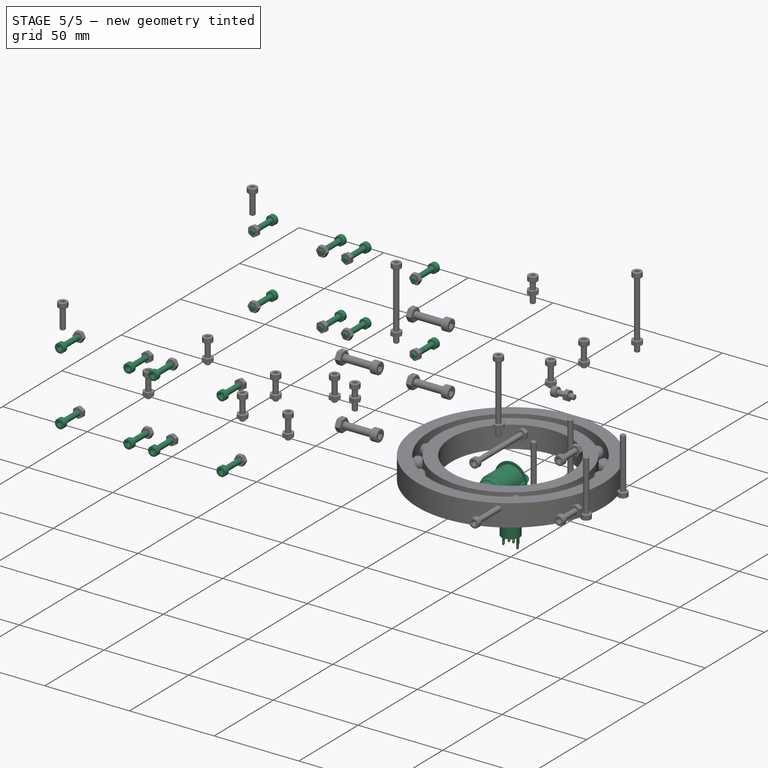
[diagram: stage 5 of 5 — iso view after this stage's code; geometry added in this stage tinted green]
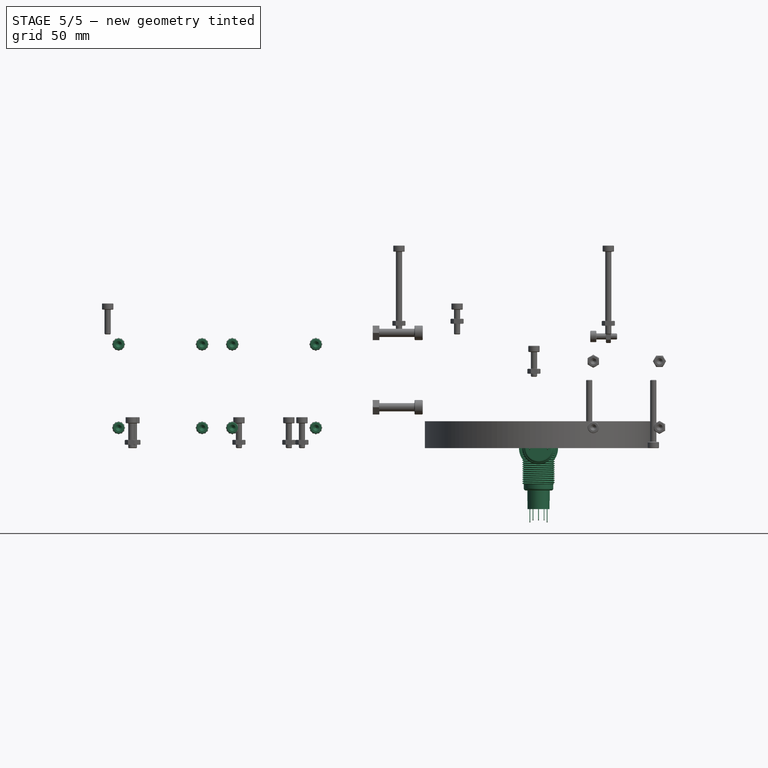
[diagram: stage 5 of 5 — front view after this stage's code; geometry added in this stage tinted green]
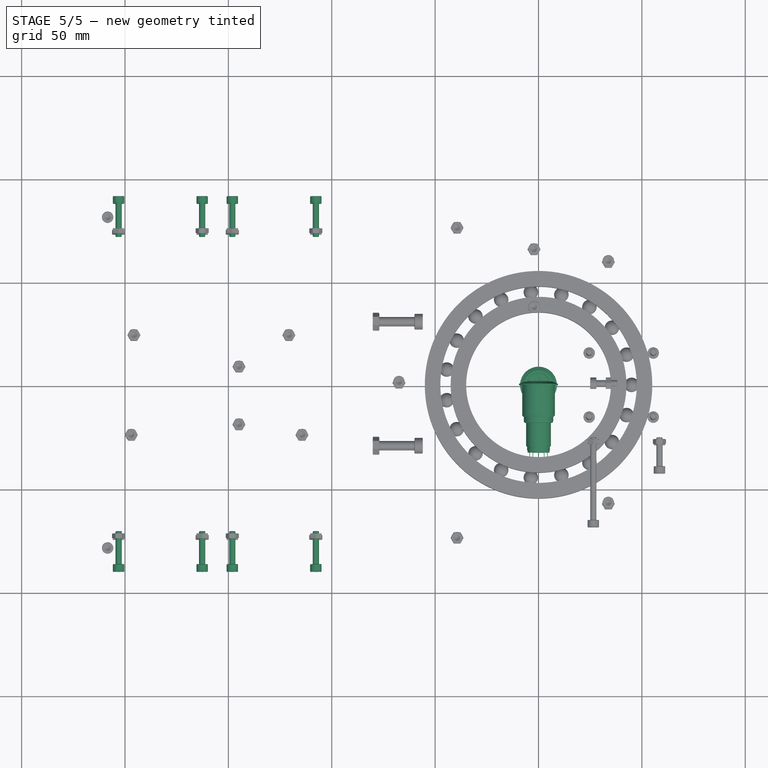
[diagram: stage 5 of 5 — top view after this stage's code; geometry added in this stage tinted green]
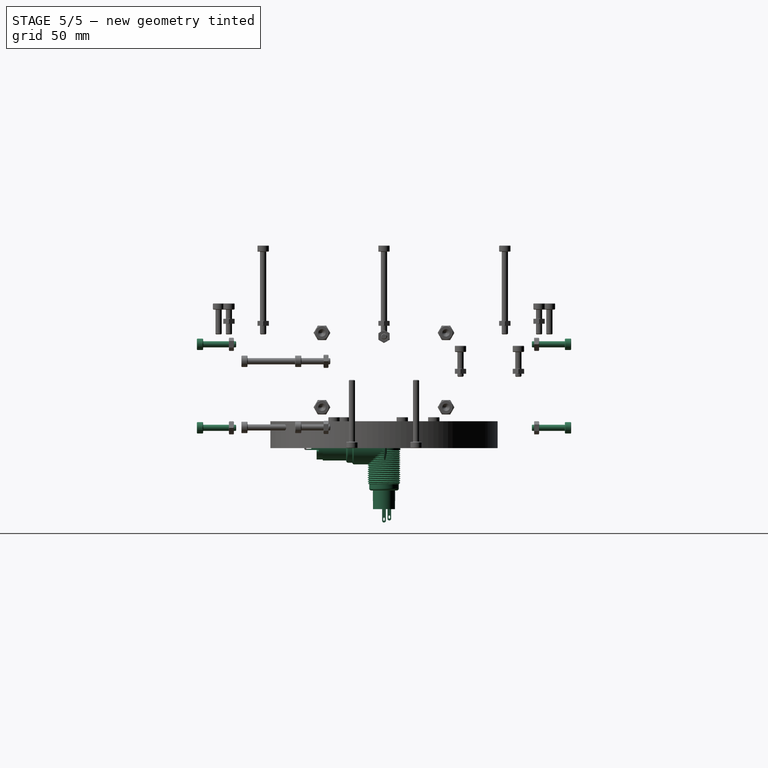
[diagram: stage 5 of 5 — right view after this stage's code; geometry added in this stage tinted green]
FEATURE [Part::Feature] Clone002001  label="fan-50x50mm"
  shape: bbox 50 x 50 x 11 mm, 93 faces, 2 solids (baked)
FEATURE [PartDesign::CoordinateSystem] LCS_0
  AttacherType = Attacher::AttachEngine3D
  MapMode = 2
  Support = -> [X_Axis001]
FEATURE [PartDesign::CoordinateSystem] LCS_Fan
  AttacherType = Attacher::AttachEngine3D
  MapMode = 45
  Placement = pos=(0,0,10) rot=(0,0,1;0rad)
  Support = -> [Clone002001]
FEATURE [PartDesign::CoordinateSystem] LCS_0001
  AttacherType = Attacher::AttachEngine3D
  MapMode = 2
  Support = -> [X_Axis002]
FEATURE [Part::Feature] Part__Feature001  label="fan-40x40mm"
  shape: bbox 40 x 40 x 10 mm, 172 faces (baked)
FEATURE [PartDesign::CoordinateSystem] LCS_Fan001
  AttacherType = Attacher::AttachEngine3D
  AttachmentOffset = pos=(0,0,-2.21) rot=(0,0,1;0rad)
  MapMode = 45
  Placement = pos=(-5e-16,5e-16,-4e-16) rot=(0,0,1;0rad)
  Support = -> [Part__Feature001]
FEATURE [PartDesign::CoordinateSystem] LCS_0002
  AttacherType = Attacher::AttachEngine3D
  MapMode = 2
  Support = -> [X_Axis003]
FEATURE [Part::Feature] Part__Feature020  label="Metal LED Illuminated Latching 16mm Power Push Button ON-OFF Switch 12V002"
  shape: bbox 19.27 x 19.27 x 31 mm, 99 faces (baked)
FEATURE [Part::Feature] Part__Feature024  label="Metal LED Illuminated Latching 16mm Power Push Button ON-OFF Switch 12V006"
  shape: bbox 0.35 x 1.8 x 5.5 mm, 11 faces (baked)
FEATURE [Part::Feature] Part__Feature021  label="Metal LED Illuminated Latching 16mm Power Push Button ON-OFF Switch 12V003"
  shape: bbox 0.35 x 1.8 x 6.5 mm, 11 faces (baked)
FEATURE [Part::Feature] Part__Feature023  label="Metal LED Illuminated Latching 16mm Power Push Button ON-OFF Switch 12V005"
  shape: bbox 0.35 x 1.8 x 5.5 mm, 11 faces (baked)
FEATURE [Part::Feature] Part__Feature025  label="Metal LED Illuminated Latching 16mm Power Push Button ON-OFF Switch 12V007"
  shape: bbox 0.35 x 1.8 x 5.5 mm, 11 faces (baked)
FEATURE [Part::Feature] Part__Feature022  label="Metal LED Illuminated Latching 16mm Power Push Button ON-OFF Switch 12V004"
  shape: bbox 0.35 x 1.8 x 6.5 mm, 11 faces (baked)
FEATURE [Part::Compound] Compound007  label="16mmOnOffButton"
  Links = -> [Part__Feature023,Part__Feature021,Part__Feature024,Part__Feature025,Part__Feature022,Part__Feature020]
FEATURE [App::Part] OnOffButton
  Group = -> [LCS_0002,Part__Feature022,Part__Feature020,Part__Feature023,Part__Feature025,Part__Feature024,Part__Feature021,Compound007]
  Origin = -> Origin003
FEATURE [PartDesign::CoordinateSystem] LCS_0003
  AttacherType = Attacher::AttachEngine3D
  MapMode = 2
  Support = -> [X_Axis004]
FEATURE [Part::Feature] Part__Feature027  label="phobya power switch body"
  shape: bbox 18.9 x 31.6 x 18.9 mm, 23 faces (baked)
FEATURE [Part::Feature] Part__Feature028  label="pin power switch"
  Placement = pos=(0,-32.6,0) rot=(0,0,1;3.14159rad)
  shape: bbox 11 x 9 x 11 mm, 188 faces (baked)
FEATURE [Part::Compound] Compound006  label="16mmPushButton"
  Links = -> [Part__Feature028,Part__Feature027]
FEATURE [App::Part] Bearing_16014zz
  Group = -> [LCS_0009,Pad002,Pad001,Sphere,Array,Sketch012,Sketch011,Compound]
  Origin = -> Origin010
FEATURE [App::DocumentObjectGroup] Group  label="Bearings"
  Group = -> [Bearing_16014zz]
FEATURE [PartDesign::CoordinateSystem] LCS_Gear2  label="LCS_Gear"
  AttacherType = Attacher::AttachEngine3D
  AttachmentOffset = pos=(0,0,1.9) rot=(0,0,1;0rad)
  MapMode = 11
  Placement = pos=(0,0,44) rot=(0,0,1;1.5708rad)
  Support = -> [Part__Feature031]
FEATURE [App::Part] Stepper_Nema17x40
  Group = -> [LCS_0008,Part__Feature031,LCS_Stepper_Nema17x40,LCS_Gear2]
  Origin = -> Origin009
FEATURE [PartDesign::Line] HoleAxis_1
  AttacherType = Attacher::AttachEngineLine
  Length = 5.07264
  MapMode = 19
  Placement = pos=(20.2,-20.2,0) rot=(0,0,1;3.14159rad)
  ResizeMode = 1
  Support = -> [Clone002001]
FEATURE [PartDesign::Line] HoleAxis_2
  AttacherType = Attacher::AttachEngineLine
  Length = 5.07264
  MapMode = 19
  Placement = pos=(-20.2,-20.2,0) rot=(0,0,1;1.5708rad)
  ResizeMode = 1
  Support = -> [Clone002001]
FEATURE [PartDesign::Line] HoleAxis_3
  AttacherType = Attacher::AttachEngineLine
  Length = 5.07264
  MapMode = 19
  Placement = pos=(-20.2,20.2,0) rot=(0,0,1;0rad)
  ResizeMode = 1
  Support = -> [Clone002001]
FEATURE [PartDesign::Line] HoleAxis_4
  AttacherType = Attacher::AttachEngineLine
  Length = 5.07264
  MapMode = 19
  Placement = pos=(20.2,20.2,0) rot=(0,0,1;4.71239rad)
  ResizeMode = 1
  Support = -> [Clone002001]
FEATURE [App::Part] Fan_50x50
  Group = -> [LCS_0,Clone002001,LCS_Fan,HoleAxis_1,HoleAxis_2,HoleAxis_3,HoleAxis_4]
  Origin = -> Origin001
FEATURE [PartDesign::Line] HoleAxis_5
  AttacherType = Attacher::AttachEngineLine
  Length = 6.05899
  MapMode = 19
  Placement = pos=(15.9948,15.9948,6.76) rot=(0,0,1;4.71239rad)
  ResizeMode = 1
  Support = -> [Part__Feature001]
FEATURE [PartDesign::Line] HoleAxis_6
  AttacherType = Attacher::AttachEngineLine
  Length = 6.05899
  MapMode = 19
  Placement = pos=(15.9948,-15.9948,6.76) rot=(0,0,1;3.14159rad)
  ResizeMode = 1
  Support = -> [Part__Feature001]
FEATURE [PartDesign::Line] HoleAxis_7
  AttacherType = Attacher::AttachEngineLine
  Length = 6.05899
  MapMode = 19
  Placement = pos=(-15.9948,-15.9948,6.76) rot=(0,0,1;1.5708rad)
  ResizeMode = 1
  Support = -> [Part__Feature001]
FEATURE [PartDesign::Line] HoleAxis_8
  AttacherType = Attacher::AttachEngineLine
  Length = 6.05899
  MapMode = 19
  Placement = pos=(-15.9948,15.9948,6.76) rot=(0,0,1;0rad)
  ResizeMode = 1
  Support = -> [Part__Feature001]
FEATURE [App::Part] Fan_40x40
  Group = -> [LCS_0001,Part__Feature001,LCS_Fan001,HoleAxis_5,HoleAxis_6,HoleAxis_7,HoleAxis_8]
  Origin = -> Origin002
FEATURE [App::DocumentObjectGroup] Group001  label="Fans"
  Group = -> [Fan_50x50,Fan_40x40]
FEATURE [PartDesign::Line] HoleAxis_9
  AttacherType = Attacher::AttachEngineLine
  Length = 4.50902
  MapMode = 19
  Placement = pos=(39.234,24.084,2) rot=(0,0,1;0rad)
  ResizeMode = 1
  Support = -> [Part__Feature]
FEATURE [PartDesign::Line] HoleAxis_10
  AttacherType = Attacher::AttachEngineLine
  Length = 4.50902
  MapMode = 19
  Placement = pos=(15.1,8.844,2) rot=(0,0,1;0rad)
  ResizeMode = 1
  Support = -> [Part__Feature]
FEATURE [PartDesign::Line] HoleAxis_11
  AttacherType = Attacher::AttachEngineLine
  Length = 4.50902
  MapMode = 19
  Placement = pos=(15.1,-19.1,2) rot=(0,0,1;0rad)
  ResizeMode = 1
  Support = -> [Part__Feature]
FEATURE [PartDesign::Line] HoleAxis_12
  AttacherType = Attacher::AttachEngineLine
  Length = 4.50902
  MapMode = 19
  Placement = pos=(-35.6964,24.084,2) rot=(0,0,1;0rad)
  ResizeMode = 1
  Support = -> [Part__Feature]
FEATURE [PartDesign::Line] HoleAxis_13
  AttacherType = Attacher::AttachEngineLine
  Length = 4.50902
  MapMode = 19
  Placement = pos=(-36.966,-24.176,2) rot=(0,0,1;0rad)
  ResizeMode = 1
  Support = -> [Part__Feature]
FEATURE [PartDesign::Line] HoleAxis_14
  AttacherType = Attacher::AttachEngineLine
  Length = 4.2272
  MapMode = 19
  Placement = pos=(-14,0,1.5) rot=(0,0,1;0rad)
  ResizeMode = 1
  Support = -> [Fusion155]
FEATURE [PartDesign::Line] HoleAxis_15
  AttacherType = Attacher::AttachEngineLine
  Length = 4.2272
  MapMode = 19
  Placement = pos=(14,0,1.5) rot=(0,0,1;0rad)
  ResizeMode = 1
  Support = -> [Fusion155]
FEATURE [App::Part] OpticSensor
  Group = -> [LCS_0007,Fusion155,LCS_OpticSensor,HoleAxis_14,HoleAxis_15]
  Origin = -> Origin008
FEATURE [PartDesign::CoordinateSystem] LCS_Origin
  AttacherType = Attacher::AttachEngine3D
  MapMode = 2
  Support = -> [X_Axis]
FEATURE [App::DocumentObjectGroup] Constraints
FEATURE [App::FeaturePython] Variables  # WARN: FeaturePython — macro-defined, semantics opaque (R4)
FEATURE [App::Link] BaseBot_BaseBot
  AssemblyType = Asm4EE
  AttachedBy = #LCS_Bot
  AttachedTo = Parent Assembly#LCS_Origin
  LinkedObject = -> <external BaseBot.FCStd>#Body002
  expr: Placement = LCS_Origin.Placement * AttachmentOffset * BaseBot#LCS_Bot.Placement ^ -1
FEATURE [App::Link] BaseTop_BaseTop
  AssemblyType = Asm4EE
  AttachedBy = #LCS_Bot
  AttachedTo = BaseBot_BaseBot#LCS_Top001
  AttachmentOffset = pos=(0,0,0) rot=(0,0,1;-1.0472rad)
  LinkPlacement = pos=(0,1.45e-14,65.5) rot=(0,0,-1;5.23599rad)
  LinkedObject = -> <external BaseTop.FCStd>#Body
  Placement = pos=(0,1.45e-14,65.5) rot=(0,0,-1;5.23599rad)
  expr: Placement = BaseBot_BaseBot.Placement * BaseBot#LCS_Top001.Placement * AttachmentOffset * BaseTop#LCS_Bot.Placement ^ -1
FEATURE [App::Link] BaseBearingFix_BaseBearingFix
  AssemblyType = Asm4EE
  AttachedBy = #LCS_Bot
  AttachedTo = BaseTop_BaseTop#LCS_Top
  AttachmentOffset = pos=(0,0,0) rot=(-0.707107,-0.707107,0;3.14159rad)
  LinkPlacement = pos=(6e-16,1.8e-14,93) rot=(0,0,1;4.18879rad)
  LinkedObject = -> <external BaseBearingFix.FCStd>#Body
  Placement = pos=(6e-16,1.8e-14,93) rot=(0,0,1;4.18879rad)
  expr: Placement = BaseTop_BaseTop.Placement * BaseTop#LCS_Top.Placement * AttachmentOffset * BaseBearingFix#LCS_Bot.Placement ^ -1
FEATURE [App::Link] BaseBoxBody_BaseBoxBody
  AssemblyType = Asm4EE
  AttachedBy = #LCS_Bot
  AttachedTo = BaseBot_BaseBot#LCS_Bot
  AttachmentOffset = pos=(0,0,0) rot=(0,0,1;3.14159rad)
  LinkPlacement = pos=(0,0,0) rot=(0,0,1;3.14159rad)
  LinkedObject = -> <external BaseBoxBody.FCStd>#Body002
  Placement = pos=(0,0,0) rot=(0,0,1;3.14159rad)
  expr: Placement = BaseBot_BaseBot.Placement * BaseBot#LCS_Bot.Placement * AttachmentOffset * BaseBoxBody#LCS_Bot.Placement ^ -1
FEATURE [App::Link] BaseBoxCover_BaseBoxCover
  AssemblyType = Asm4EE
  AttachedBy = #LCS_Bot
  AttachedTo = BaseBoxBody_BaseBoxBody#LCS_Top
  LinkPlacement = pos=(2.84e-14,5.78e-14,65.5) rot=(0,0,1;3.14159rad)
  LinkedObject = -> <external BaseBoxCover.FCStd>#Body
  Placement = pos=(2.84e-14,5.78e-14,65.5) rot=(0,0,1;3.14159rad)
  expr: Placement = BaseBoxBody_BaseBoxBody.Placement * BaseBoxBody#LCS_Top.Placement * AttachmentOffset * BaseBoxCover#LCS_Bot.Placement ^ -1
FEATURE [App::Link] Stepper_Nema17x40001
  AssemblyType = Asm4EE
  AttachedBy = #LCS_Stepper_Nema17x40
  AttachedTo = BaseBot_BaseBot#LCS_Stepper
  LinkPlacement = pos=(40,4e-15,5) rot=(0,0,1;0rad)
  LinkedObject = -> Stepper_Nema17x40
  Placement = pos=(40,4e-15,5) rot=(0,0,1;0rad)
  expr: Placement = BaseBot_BaseBot.Placement * BaseBot#LCS_Stepper.Placement * AttachmentOffset * LCS_Stepper_Nema17x40.Placement ^ -1
FEATURE [App::Link] Art1GearMotor_Art1GearMotor
  AssemblyType = Asm4EE
  AttachedBy = #LCS_Art1GearMotor
  AttachedTo = Stepper_Nema17x40001#LCS_Gear2
  AttachmentOffset = pos=(0,0,0) rot=(1,0,0;3.14159rad)
  LinkPlacement = pos=(40,5.17e-14,59) rot=(0,0,1;3.14159rad)
  LinkedObject = -> <external Art1GearMotor.FCStd>#Body
  Placement = pos=(40,5.17e-14,59) rot=(0,0,1;3.14159rad)
  expr: Placement = Stepper_Nema17x40001.Placement * LCS_Gear2.Placement * AttachmentOffset * Art1GearMotor#LCS_Art1GearMotor.Placement ^ -1
FEATURE [App::Link] OpticSensor001
  AssemblyType = Asm4EE
  AttachedBy = #LCS_OpticSensor
  AttachedTo = BaseBot_BaseBot#LCS_OpticSensor
  AttachmentOffset = pos=(0,0,0) rot=(0,0,1;3.14159rad)
  LinkPlacement = pos=(-2.2,51,45) rot=(0,0,1;1.5708rad)
  LinkedObject = -> OpticSensor
  Placement = pos=(-2.2,51,45) rot=(0,0,1;1.5708rad)
  expr: Placement = BaseBot_BaseBot.Placement * BaseBot#LCS_OpticSensor.Placement * AttachmentOffset * LCS_OpticSensor.Placement ^ -1
FEATURE [App::Link] Fan_40x40001
  AssemblyType = Asm4EE
  AttachedBy = #LCS_Fan001
  AttachedTo = BaseBot_BaseBot#LCS_Fan001
  LinkPlacement = pos=(42.5,-36,26) rot=(0,0.707107,0.707107;3.14159rad)
  LinkedObject = -> Fan_40x40
  Placement = pos=(42.5,-36,26) rot=(0,0.707107,0.707107;3.14159rad)
  expr: Placement = BaseBot_BaseBot.Placement * BaseBot#LCS_Fan001.Placement * AttachmentOffset * LCS_Fan001.Placement ^ -1
FEATURE [App::Link] OnOffButton001
  AssemblyType = Asm4EE
  AttachedBy = #LCS_0002
  AttachedTo = BaseBoxCover_BaseBoxCover#LCS_PushButton1
  LinkPlacement = pos=(-74.4,67.5,70.5) rot=(0,0,1;4.71239rad)
  LinkedObject = -> OnOffButton
  Placement = pos=(-74.4,67.5,70.5) rot=(0,0,1;4.71239rad)
  expr: Placement = BaseBoxCover_BaseBoxCover.Placement * BaseBoxCover#LCS_PushButton1.Placement * AttachmentOffset * LCS_0002.Placement ^ -1
FEATURE [App::Link] ResetButton001
  AssemblyType = Asm4EE
  AttachedBy = #LCS_0003
  AttachedTo = BaseBoxCover_BaseBoxCover#LCS_PushButton2
  AttachmentOffset = pos=(0,0,0) rot=(1,0,0;1.5708rad)
  LinkPlacement = pos=(-74.4,-67.5,70.5) rot=(-0.57735,0.57735,0.57735;4.18879rad)
  LinkedObject = -> ResetButton
  Placement = pos=(-74.4,-67.5,70.5) rot=(-0.57735,0.57735,0.57735;4.18879rad)
  expr: Placement = BaseBoxCover_BaseBoxCover.Placement * BaseBoxCover#LCS_PushButton2.Placement * AttachmentOffset * LCS_0003.Placement ^ -1
FEATURE [App::Link] Fan_50x50001
  AssemblyType = Asm4EE
  AttachedBy = #LCS_Fan
  AttachedTo = BaseBoxBody_BaseBoxBody#LCS_Fan1
  AttachmentOffset = pos=(0,0,0) rot=(0,1,0;3.14159rad)
  LinkPlacement = pos=(-127.9,75,30) rot=(0,-0.707107,-0.707107;3.14159rad)
  LinkedObject = -> Fan_50x50
  Placement = pos=(-127.9,75,30) rot=(0,-0.707107,-0.707107;3.14159rad)
  expr: Placement = BaseBoxBody_BaseBoxBody.Placement * BaseBoxBody#LCS_Fan1.Placement * AttachmentOffset * LCS_Fan.Placement ^ -1
FEATURE [App::Link] Fan_50x50002
  AssemblyType = Asm4EE
  AttachedBy = #LCS_Fan
  AttachedTo = BaseBoxBody_BaseBoxBody#LCS_Fan2
  AttachmentOffset = pos=(0,0,0) rot=(1,0,0;3.14159rad)
  LinkPlacement = pos=(-182.9,75,30) rot=(-1,0,0;1.5708rad)
  LinkedObject = -> Fan_50x50
  Placement = pos=(-182.9,75,30) rot=(-1,0,0;1.5708rad)
  expr: Placement = BaseBoxBody_BaseBoxBody.Placement * BaseBoxBody#LCS_Fan2.Placement * AttachmentOffset * LCS_Fan.Placement ^ -1
FEATURE [App::Link] Fan_50x50003
  AssemblyType = Asm4EE
  AttachedBy = #LCS_Fan
  AttachedTo = BaseBoxBody_BaseBoxBody#LCS_Fan3
  LinkPlacement = pos=(-127.9,-75,30) rot=(-1,0,0;4.71239rad)
  LinkedObject = -> Fan_50x50
  Placement = pos=(-127.9,-75,30) rot=(-1,0,0;4.71239rad)
  expr: Placement = BaseBoxBody_BaseBoxBody.Placement * BaseBoxBody#LCS_Fan3.Placement * AttachmentOffset * LCS_Fan.Placement ^ -1
FEATURE [App::Link] Fan_50x50004
  AssemblyType = Asm4EE
  AttachedBy = #LCS_Fan
  AttachedTo = BaseBoxBody_BaseBoxBody#LCS_Fan4
  LinkPlacement = pos=(-182.9,-75,30) rot=(-1,0,0;4.71239rad)
  LinkedObject = -> Fan_50x50
  Placement = pos=(-182.9,-75,30) rot=(-1,0,0;4.71239rad)
  expr: Placement = BaseBoxBody_BaseBoxBody.Placement * BaseBoxBody#LCS_Fan4.Placement * AttachmentOffset * LCS_Fan.Placement ^ -1
FEATURE [App::Link] ArduinoMega001
  AssemblyType = Asm4EE
  AttachedBy = #LCS_ArduinoMega
  AttachedTo = BaseBoxBody_BaseBoxBody#LCS_Arduino
  AttachmentOffset = pos=(0,0,2) rot=(0,0,1;3.14159rad)
  LinkPlacement = pos=(-160,-0.00116927,10) rot=(0,0,-1;6.28315rad)
  LinkedObject = -> ArduinoMega
  Placement = pos=(-160,-0.00116927,10) rot=(0,0,-1;6.28315rad)
  expr: Placement = BaseBoxBody_BaseBoxBody.Placement * BaseBoxBody#LCS_Arduino.Placement * AttachmentOffset * LCS_ArduinoMega.Placement ^ -1
FEATURE [App::Link] JackDC001
  AssemblyType = Asm4EE
  AttachedBy = #LCS_0006
  AttachedTo = BaseBoxBody_BaseBoxBody#LCS_DCJAck
  AttachmentOffset = pos=(0,0,0) rot=(1,0,0;1.5708rad)
  LinkPlacement = pos=(-219.4,-46.5,17) rot=(-0.57735,0.57735,-0.57735;4.18879rad)
  LinkedObject = -> JackDC
  Placement = pos=(-219.4,-46.5,17) rot=(-0.57735,0.57735,-0.57735;4.18879rad)
  expr: Placement = BaseBoxBody_BaseBoxBody.Placement * BaseBoxBody#LCS_DCJAck.Placement * AttachmentOffset * LCS_0006.Placement ^ -1
FEATURE [Part::FeaturePython] Screw  label="M3x16-Screw"  # Fasteners workbench fastener (typed FeaturePython)
  AssemblyType = Asm4EE
  AttachedBy = Origin
  AttachedTo = BaseBoxBody_BaseBoxBody#HoleAxis_15
  Placement = pos=(-203.1,-87.5,50.2) rot=(1,0,0;1.5708rad)
  diameter = 4
  invert = false
  length = 6
  lengthCustom = 16
  matchOuter = false
  offset = 0
  thread = false
  type = 33
  expr: Placement = BaseBoxBody_BaseBoxBody.Placement * BaseBoxBody#HoleAxis_15.Placement * AttachmentOffset
FEATURE [Part::FeaturePython] Screw001  label="M3x16-Screw123"  # Fasteners workbench fastener (typed FeaturePython)
  AssemblyType = Asm4EE
  AttachedBy = Origin
  AttachedTo = BaseBoxBody_BaseBoxBody#HoleAxis_18
  Placement = pos=(-162.7,-87.5,50.2) rot=(1,0,0;1.5708rad)
  diameter = 4
  invert = false
  length = 6
  lengthCustom = 16
  matchOuter = false
  offset = 0
  thread = false
  type = 33
  expr: Placement = BaseBoxBody_BaseBoxBody.Placement * BaseBoxBody#HoleAxis_18.Placement * AttachmentOffset
FEATURE [Part::FeaturePython] Screw002  label="M3x16-Screw127"  # Fasteners workbench fastener (typed FeaturePython)
  AssemblyType = Asm4EE
  AttachedBy = Origin
  AttachedTo = BaseBoxBody_BaseBoxBody#HoleAxis_16
  Placement = pos=(-203.1,-87.5,9.8) rot=(1,0,0;1.5708rad)
  diameter = 4
  invert = false
  length = 6
  lengthCustom = 16
  matchOuter = false
  offset = 0
  thread = false
  type = 33
  expr: Placement = BaseBoxBody_BaseBoxBody.Placement * BaseBoxBody#HoleAxis_16.Placement * AttachmentOffset
FEATURE [Part::FeaturePython] Screw003  label="M3x16-Screw126"  # Fasteners workbench fastener (typed FeaturePython)
  AssemblyType = Asm4EE
  AttachedBy = Origin
  AttachedTo = BaseBoxBody_BaseBoxBody#HoleAxis_17
  Placement = pos=(-162.7,-87.5,9.8) rot=(1,0,0;1.5708rad)
  diameter = 4
  invert = false
  length = 6
  lengthCustom = 16
  matchOuter = false
  offset = 0
  thread = false
  type = 33
  expr: Placement = BaseBoxBody_BaseBoxBody.Placement * BaseBoxBody#HoleAxis_17.Placement * AttachmentOffset
FEATURE [Part::FeaturePython] Screw004  label="M3x16-Screw115"  # Fasteners workbench fastener (typed FeaturePython)
  AssemblyType = Asm4EE
  AttachedBy = Origin
  AttachedTo = BaseBoxBody_BaseBoxBody#HoleAxis_19
  Placement = pos=(-148.1,-87.5,50.2) rot=(1,0,0;1.5708rad)
  diameter = 4
  invert = false
  length = 6
  lengthCustom = 16
  matchOuter = false
  offset = 0
  thread = false
  type = 33
  expr: Placement = BaseBoxBody_BaseBoxBody.Placement * BaseBoxBody#HoleAxis_19.Placement * AttachmentOffset
FEATURE [Part::FeaturePython] Screw005  label="M3x16-Screw117"  # Fasteners workbench fastener (typed FeaturePython)
  AssemblyType = Asm4EE
  AttachedBy = Origin
  AttachedTo = BaseBoxBody_BaseBoxBody#HoleAxis_20
  Placement = pos=(-148.1,-87.5,9.8) rot=(1,0,0;1.5708rad)
  diameter = 4
  invert = false
  length = 6
  lengthCustom = 16
  matchOuter = false
  offset = 0
  thread = false
  type = 33
  expr: Placement = BaseBoxBody_BaseBoxBody.Placement * BaseBoxBody#HoleAxis_20.Placement * AttachmentOffset
FEATURE [Part::FeaturePython] Screw006  label="M3x16-Screw118"  # Fasteners workbench fastener (typed FeaturePython)
  AssemblyType = Asm4EE
  AttachedBy = Origin
  AttachedTo = BaseBoxBody_BaseBoxBody#HoleAxis_22
  Placement = pos=(-107.7,-87.5,9.8) rot=(1,0,0;1.5708rad)
  diameter = 4
  invert = false
  length = 6
  lengthCustom = 16
  matchOuter = false
  offset = 0
  thread = false
  type = 33
  expr: Placement = BaseBoxBody_BaseBoxBody.Placement * BaseBoxBody#HoleAxis_22.Placement * AttachmentOffset
FEATURE [Part::FeaturePython] Screw007  label="M3x16-Screw114"  # Fasteners workbench fastener (typed FeaturePython)
  AssemblyType = Asm4EE
  AttachedBy = Origin
  AttachedTo = BaseBoxBody_BaseBoxBody#HoleAxis_21
  Placement = pos=(-107.7,-87.5,50.2) rot=(1,0,0;1.5708rad)
  diameter = 4
  invert = false
  length = 6
  lengthCustom = 16
  matchOuter = false
  offset = 0
  thread = false
  type = 33
  expr: Placement = BaseBoxBody_BaseBoxBody.Placement * BaseBoxBody#HoleAxis_21.Placement * AttachmentOffset
FEATURE [Part::FeaturePython] Screw008  label="M3x16-Screw124"  # Fasteners workbench fastener (typed FeaturePython)
  AssemblyType = Asm4EE
  AttachedBy = Origin
  AttachedTo = BaseBoxBody_BaseBoxBody#HoleAxis_14
  AttachmentOffset = pos=(0,0,0) rot=(-1,0,0;3.14159rad)
  Placement = pos=(-107.7,87.5,9.8) rot=(-1,0,0;1.5708rad)
  diameter = 4
  invert = false
  length = 6
  lengthCustom = 16
  matchOuter = false
  offset = 0
  thread = false
  type = 33
  expr: Placement = BaseBoxBody_BaseBoxBody.Placement * BaseBoxBody#HoleAxis_14.Placement * AttachmentOffset
FEATURE [Part::FeaturePython] Screw009  label="M3x16-Screw120"  # Fasteners workbench fastener (typed FeaturePython)
  AssemblyType = Asm4EE
  AttachedBy = Origin
  AttachedTo = BaseBoxBody_BaseBoxBody#HoleAxis_13
  AttachmentOffset = pos=(0,0,0) rot=(1,0,0;3.14159rad)
  Placement = pos=(-148.1,87.5,9.8) rot=(-1,0,0;1.5708rad)
  diameter = 4
  invert = false
  length = 6
  lengthCustom = 16
  matchOuter = false
  offset = 0
  thread = false
  type = 33
  expr: Placement = BaseBoxBody_BaseBoxBody.Placement * BaseBoxBody#HoleAxis_13.Placement * AttachmentOffset
FEATURE [Part::FeaturePython] Screw010  label="M3x16-Screw122"  # Fasteners workbench fastener (typed FeaturePython)
  AssemblyType = Asm4EE
  AttachedBy = Origin
  AttachedTo = BaseBoxBody_BaseBoxBody#HoleAxis_8
  AttachmentOffset = pos=(0,0,0) rot=(1,0,0;3.14159rad)
  Placement = pos=(-148.1,87.5,50.2) rot=(-1,0,0;1.5708rad)
  diameter = 4
  invert = false
  length = 6
  lengthCustom = 16
  matchOuter = false
  offset = 0
  thread = false
  type = 33
  expr: Placement = BaseBoxBody_BaseBoxBody.Placement * BaseBoxBody#HoleAxis_8.Placement * AttachmentOffset
FEATURE [Part::FeaturePython] Screw011  label="M3x16-Screw116"  # Fasteners workbench fastener (typed FeaturePython)
  AssemblyType = Asm4EE
  AttachedBy = Origin
  AttachedTo = BaseBoxBody_BaseBoxBody#HoleAxis_7
  AttachmentOffset = pos=(0,0,0) rot=(1,0,0;3.14159rad)
  Placement = pos=(-107.7,87.5,50.2) rot=(-1,0,0;1.5708rad)
  diameter = 4
  invert = false
  length = 6
  lengthCustom = 16
  matchOuter = false
  offset = 0
  thread = false
  type = 33
  expr: Placement = BaseBoxBody_BaseBoxBody.Placement * BaseBoxBody#HoleAxis_7.Placement * AttachmentOffset
FEATURE [Part::FeaturePython] Screw012  label="M3x16-Screw121"  # Fasteners workbench fastener (typed FeaturePython)
  AssemblyType = Asm4EE
  AttachedBy = Origin
  AttachedTo = BaseBoxBody_BaseBoxBody#HoleAxis_9
  AttachmentOffset = pos=(0,0,0) rot=(1,0,0;3.14159rad)
  Placement = pos=(-162.7,87.5,50.2) rot=(-1,0,0;1.5708rad)
  diameter = 4
  invert = false
  length = 6
  lengthCustom = 16
  matchOuter = false
  offset = 0
  thread = false
  type = 33
  expr: Placement = BaseBoxBody_BaseBoxBody.Placement * BaseBoxBody#HoleAxis_9.Placement * AttachmentOffset
FEATURE [Part::FeaturePython] Screw013  label="M3x16-Screw119"  # Fasteners workbench fastener (typed FeaturePython)
  AssemblyType = Asm4EE
  AttachedBy = Origin
  AttachedTo = BaseBoxBody_BaseBoxBody#HoleAxis_10
  AttachmentOffset = pos=(0,0,0) rot=(1,0,0;3.14159rad)
  Placement = pos=(-203.1,87.5,50.2) rot=(-1,0,0;1.5708rad)
  diameter = 4
  invert = false
  length = 6
  lengthCustom = 16
  matchOuter = false
  offset = 0
  thread = false
  type = 33
  expr: Placement = BaseBoxBody_BaseBoxBody.Placement * BaseBoxBody#HoleAxis_10.Placement * AttachmentOffset
FEATURE [Part::FeaturePython] Screw014  label="M3x16-Screw125"  # Fasteners workbench fastener (typed FeaturePython)
  AssemblyType = Asm4EE
  AttachedBy = Origin
  AttachedTo = BaseBoxBody_BaseBoxBody#HoleAxis_12
  AttachmentOffset = pos=(0,0,0) rot=(1,0,0;3.14159rad)
  Placement = pos=(-162.7,87.5,9.8) rot=(-1,0,0;1.5708rad)
  diameter = 4
  invert = false
  length = 6
  lengthCustom = 16
  matchOuter = false
  offset = 0
  thread = false
  type = 33
  expr: Placement = BaseBoxBody_BaseBoxBody.Placement * BaseBoxBody#HoleAxis_12.Placement * AttachmentOffset
FEATURE [Part::FeaturePython] Screw015  label="M3x16-Screw128"  # Fasteners workbench fastener (typed FeaturePython)
  AssemblyType = Asm4EE
  AttachedBy = Origin
  AttachedTo = BaseBoxBody_BaseBoxBody#HoleAxis_11
  AttachmentOffset = pos=(0,0,0) rot=(1,0,0;3.14159rad)
  Placement = pos=(-203.1,87.5,9.8) rot=(-1,0,0;1.5708rad)
  diameter = 4
  invert = false
  length = 6
  lengthCustom = 16
  matchOuter = false
  offset = 0
  thread = false
  type = 33
  expr: Placement = BaseBoxBody_BaseBoxBody.Placement * BaseBoxBody#HoleAxis_11.Placement * AttachmentOffset
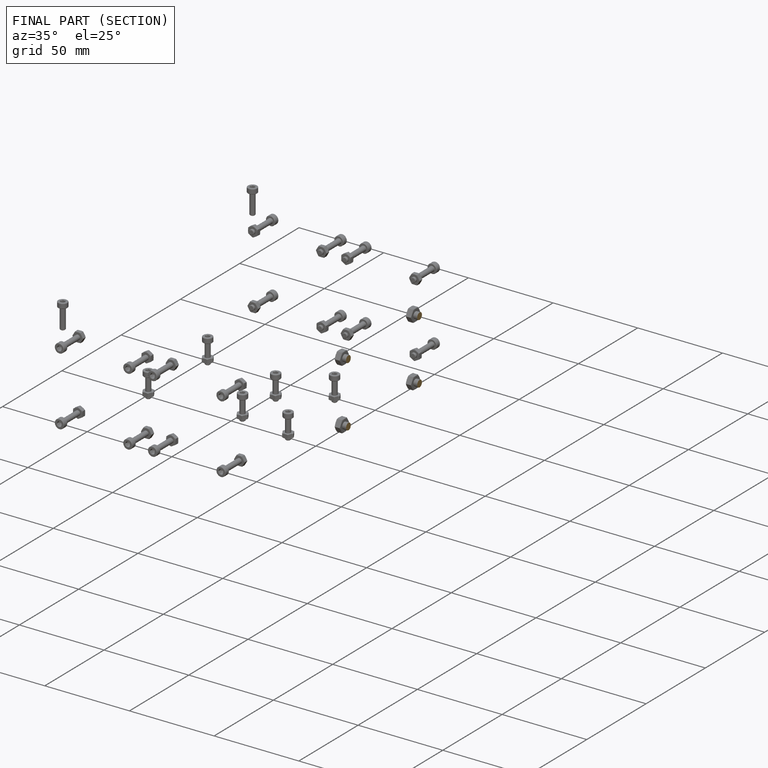
[diagram: finished part — half-section view (interior)]
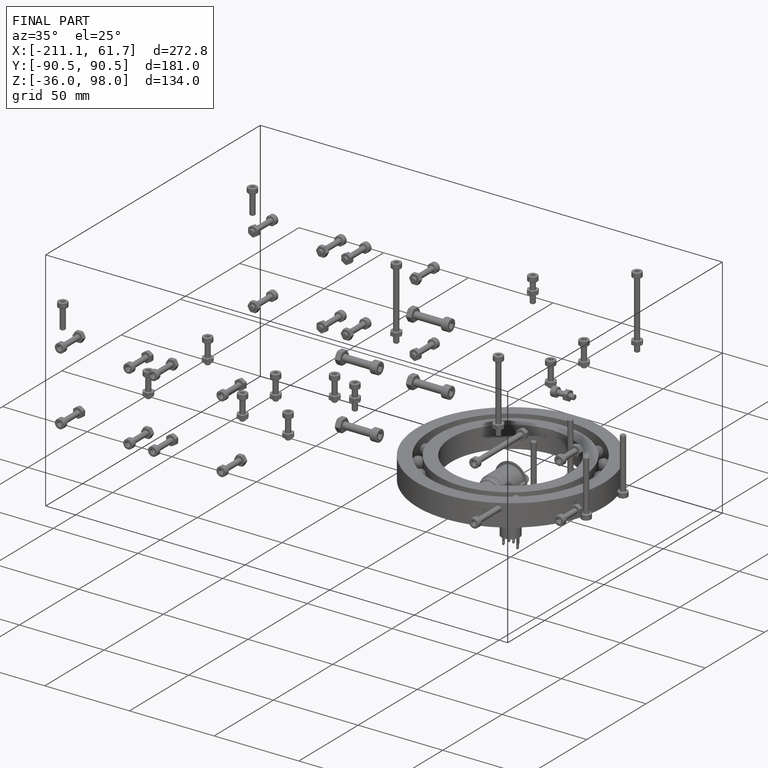
[diagram: finished part — iso view with bounding-box wireframe]
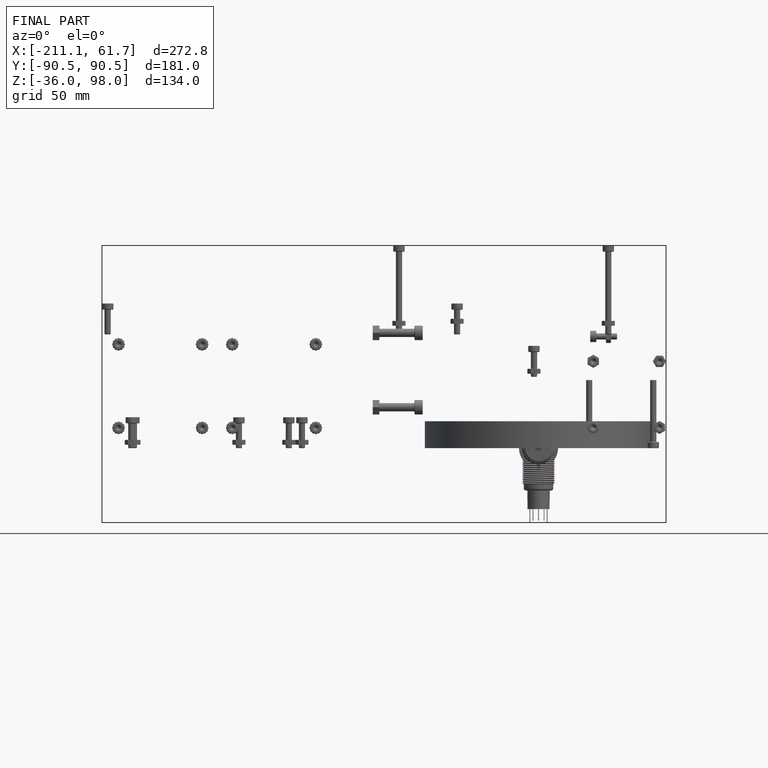
[diagram: finished part — front view with bounding-box wireframe]
